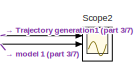
[diagram: root canvas - part 1/7, top right region]
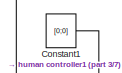
[diagram: root canvas - part 2/7, top right region]
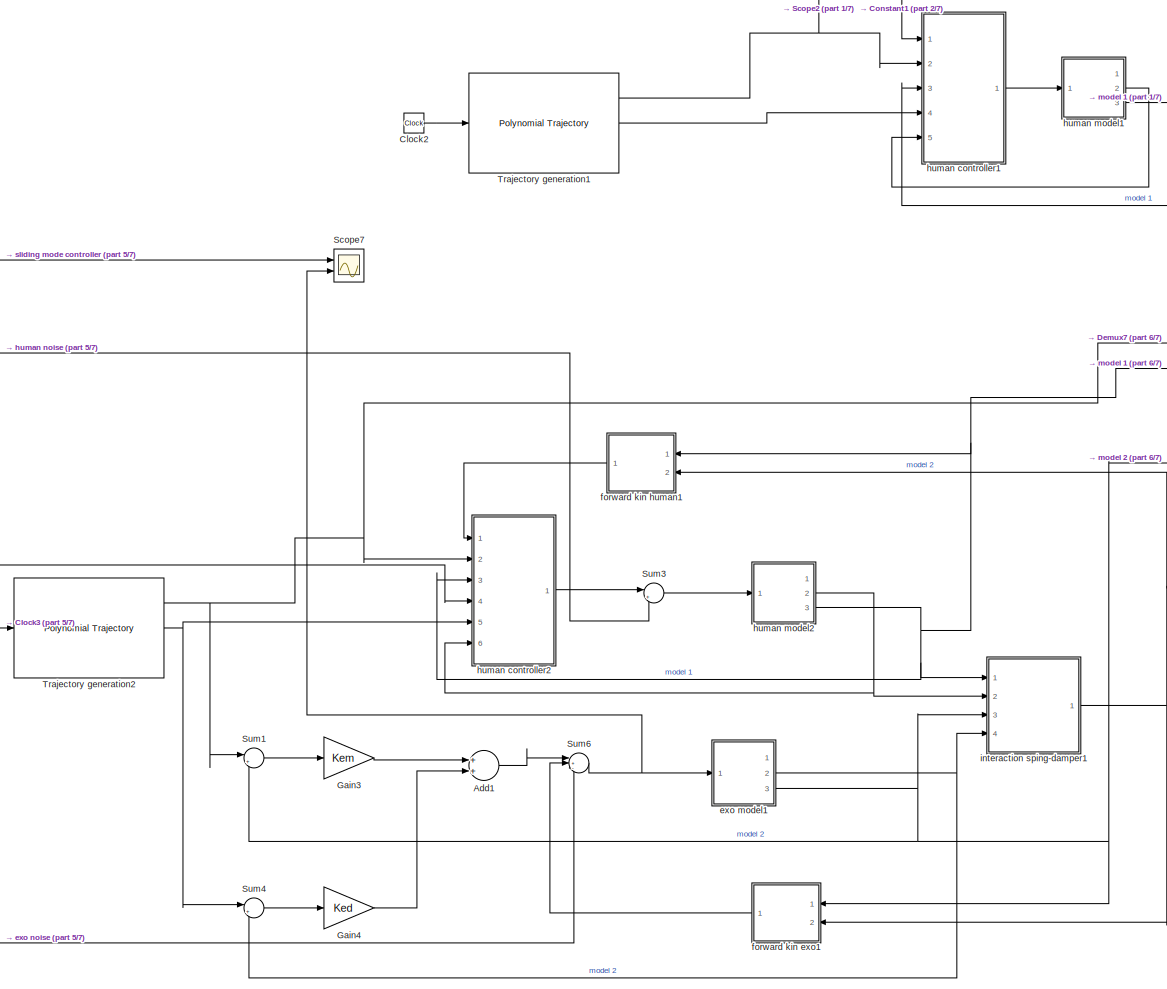
[diagram: root canvas - part 3/7, right side, full height]
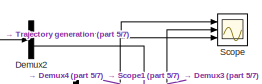
[diagram: root canvas - part 4/7, top center region]
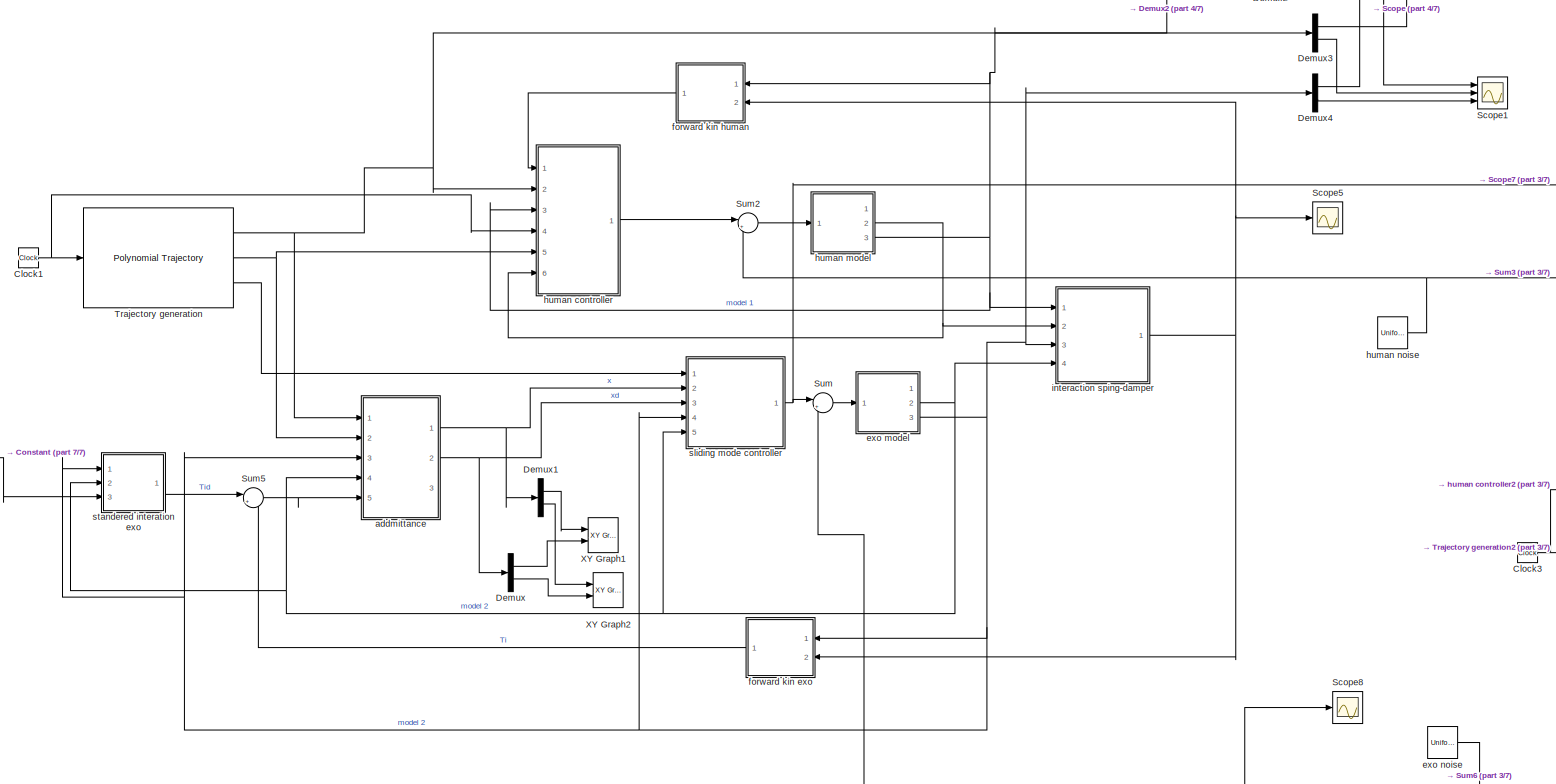
[diagram: root canvas - part 5/7, middle left region]
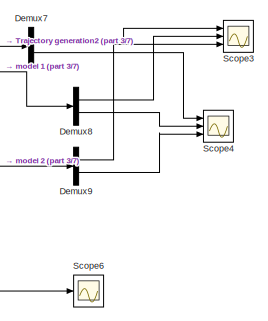
[diagram: root canvas - part 6/7, middle right region]
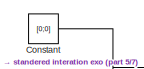
[diagram: root canvas - part 7/7, middle left region]
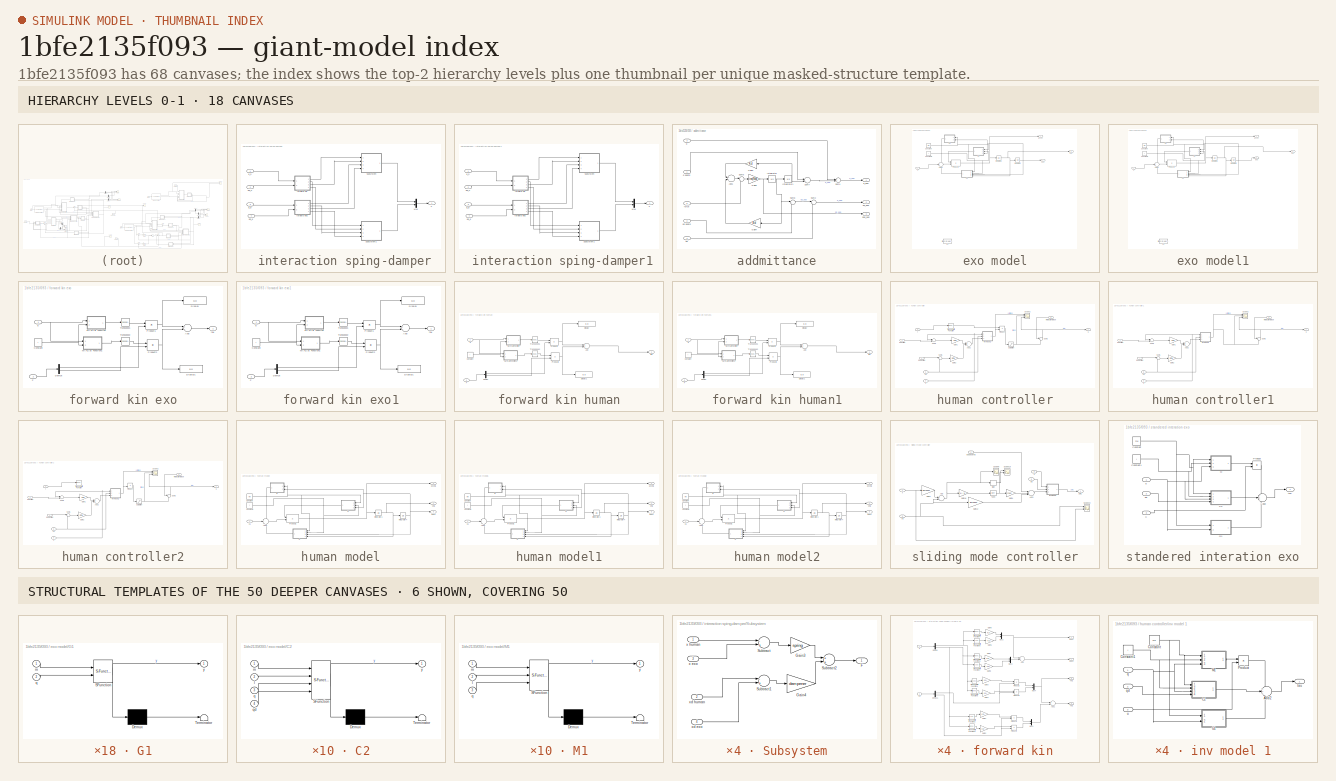
[diagram: thumbnail index - top-2 hierarchy levels (18 canvases) + 6 structural-template representatives of the remaining 50 canvases]
MODEL slx_1bfe2135f093
KIND model
CONFIG AbsTol = auto
CONFIG EnableMultiTasking = off
CONFIG FixedStep = auto
CONFIG MaxStep = auto
CONFIG MinStep = auto
CONFIG RelTol = 1e-3
CONFIG SampleTimeConstraint = Unconstrained
CONFIG Solver = VariableStepAuto
CONFIG SolverName = VariableStepAuto
CONFIG StartTime = 0.0
CONFIG StopTime = 10.0
BLOCK [SubSystem]  interaction sping-damper
  Ports = [4, 1]
  RequestExecContextInheritance = off
BLOCK [Outport]  interaction sping-damper/F
  IconDisplay = Port number
BLOCK [Mux]  interaction sping-damper/Mux
  DisplayOption = bar
  Inputs = 2
  Ports = [2, 1]
BLOCK [SubSystem]  interaction sping-damper/Subsystem
  Ports = [4, 1]
  RequestExecContextInheritance = off
BLOCK [Outport]  interaction sping-damper/Subsystem/F
  IconDisplay = Port number
BLOCK [Gain]  interaction sping-damper/Subsystem/Gain3
  Gain = spring
  Multiplication = Matrix(K*u)
  OutDataTypeStr = Inherit: Inherit via internal rule
  ParamDataTypeStr = Inherit: Inherit via internal rule
  SaturateOnIntegerOverflow = off
BLOCK [Gain]  interaction sping-damper/Subsystem/Gain4
  Gain = dampener
  Multiplication = Matrix(K*u)
  OutDataTypeStr = Inherit: Inherit via internal rule
  ParamDataTypeStr = Inherit: Inherit via internal rule
  SaturateOnIntegerOverflow = off
BLOCK [Sum]  interaction sping-damper/Subsystem/Subtract
  InputSameDT = off
  Inputs = -+
  OutDataTypeStr = Inherit: Inherit via internal rule
  Ports = [2, 1]
  SaturateOnIntegerOverflow = off
BLOCK [Sum]  interaction sping-damper/Subsystem/Subtract1
  InputSameDT = off
  Inputs = -+
  OutDataTypeStr = Inherit: Inherit via internal rule
  Ports = [2, 1]
  SaturateOnIntegerOverflow = off
BLOCK [Sum]  interaction sping-damper/Subsystem/Subtract2
  InputSameDT = off
  OutDataTypeStr = Inherit: Inherit via internal rule
  Ports = [2, 1]
  SaturateOnIntegerOverflow = off
BLOCK [Inport]  interaction sping-damper/Subsystem/x exo
  IconDisplay = Port number
  Port = 3
BLOCK [Inport]  interaction sping-damper/Subsystem/x human
  IconDisplay = Port number
BLOCK [Inport]  interaction sping-damper/Subsystem/xd exo
  IconDisplay = Port number
  Port = 4
BLOCK [Inport]  interaction sping-damper/Subsystem/xd human 
  IconDisplay = Port number
  Port = 2
BLOCK [SubSystem]  interaction sping-damper/Subsystem1
  Ports = [4, 1]
  RequestExecContextInheritance = off
BLOCK [Outport]  interaction sping-damper/Subsystem1/F
  IconDisplay = Port number
BLOCK [Gain]  interaction sping-damper/Subsystem1/Gain3
  Gain = spring
  Multiplication = Matrix(K*u)
  OutDataTypeStr = Inherit: Inherit via internal rule
  ParamDataTypeStr = Inherit: Inherit via internal rule
  SaturateOnIntegerOverflow = off
BLOCK [Gain]  interaction sping-damper/Subsystem1/Gain4
  Gain = dampener
  Multiplication = Matrix(K*u)
  OutDataTypeStr = Inherit: Inherit via internal rule
  ParamDataTypeStr = Inherit: Inherit via internal rule
  SaturateOnIntegerOverflow = off
BLOCK [Sum]  interaction sping-damper/Subsystem1/Subtract
  InputSameDT = off
  Inputs = -+
  OutDataTypeStr = Inherit: Inherit via internal rule
  Ports = [2, 1]
  SaturateOnIntegerOverflow = off
BLOCK [Sum]  interaction sping-damper/Subsystem1/Subtract1
  InputSameDT = off
  Inputs = -+
  OutDataTypeStr = Inherit: Inherit via internal rule
  Ports = [2, 1]
  SaturateOnIntegerOverflow = off
BLOCK [Sum]  interaction sping-damper/Subsystem1/Subtract2
  InputSameDT = off
  OutDataTypeStr = Inherit: Inherit via internal rule
  Ports = [2, 1]
  SaturateOnIntegerOverflow = off
BLOCK [Inport]  interaction sping-damper/Subsystem1/x exo
  IconDisplay = Port number
  Port = 3
BLOCK [Inport]  interaction sping-damper/Subsystem1/x human
  IconDisplay = Port number
BLOCK [Inport]  interaction sping-damper/Subsystem1/xd exo
  IconDisplay = Port number
  Port = 4
BLOCK [Inport]  interaction sping-damper/Subsystem1/xd human 
  IconDisplay = Port number
  Port = 2
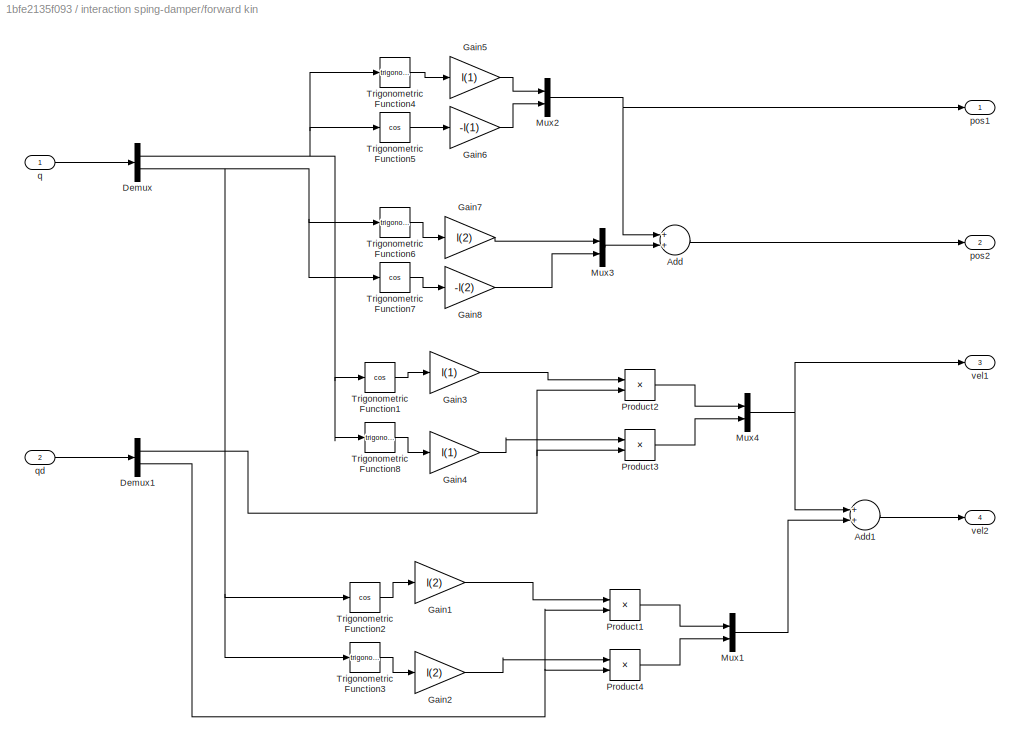
BLOCK [SubSystem]  interaction sping-damper/forward kin
  Ports = [2, 4]
  RequestExecContextInheritance = off
BLOCK [Sum]  interaction sping-damper/forward kin/Add
  InputSameDT = off
  OutDataTypeStr = Inherit: Inherit via internal rule
  Ports = [2, 1]
  SaturateOnIntegerOverflow = off
BLOCK [Sum]  interaction sping-damper/forward kin/Add1
  InputSameDT = off
  OutDataTypeStr = Inherit: Inherit via internal rule
  Ports = [2, 1]
  SaturateOnIntegerOverflow = off
BLOCK [Demux]  interaction sping-damper/forward kin/Demux
  DisplayOption = bar
  Outputs = 2
  Ports = [1, 2]
BLOCK [Demux]  interaction sping-damper/forward kin/Demux1
  DisplayOption = bar
  Outputs = 2
  Ports = [1, 2]
BLOCK [Gain]  interaction sping-damper/forward kin/Gain1
  Gain = l(2)
  OutDataTypeStr = Inherit: Inherit via internal rule
  ParamDataTypeStr = Inherit: Inherit via internal rule
  SaturateOnIntegerOverflow = off
BLOCK [Gain]  interaction sping-damper/forward kin/Gain2
  Gain = l(2)
  OutDataTypeStr = Inherit: Inherit via internal rule
  ParamDataTypeStr = Inherit: Inherit via internal rule
  SaturateOnIntegerOverflow = off
BLOCK [Gain]  interaction sping-damper/forward kin/Gain3
  Gain = l(1)
  OutDataTypeStr = Inherit: Inherit via internal rule
  ParamDataTypeStr = Inherit: Inherit via internal rule
  SaturateOnIntegerOverflow = off
BLOCK [Gain]  interaction sping-damper/forward kin/Gain4
  Gain = l(1)
  OutDataTypeStr = Inherit: Inherit via internal rule
  ParamDataTypeStr = Inherit: Inherit via internal rule
  SaturateOnIntegerOverflow = off
BLOCK [Gain]  interaction sping-damper/forward kin/Gain5
  Gain = l(1)
  OutDataTypeStr = Inherit: Inherit via internal rule
  ParamDataTypeStr = Inherit: Inherit via internal rule
  SaturateOnIntegerOverflow = off
BLOCK [Gain]  interaction sping-damper/forward kin/Gain6
  Gain = -l(1)
  OutDataTypeStr = Inherit: Inherit via internal rule
  ParamDataTypeStr = Inherit: Inherit via internal rule
  SaturateOnIntegerOverflow = off
BLOCK [Gain]  interaction sping-damper/forward kin/Gain7
  Gain = l(2)
  OutDataTypeStr = Inherit: Inherit via internal rule
  ParamDataTypeStr = Inherit: Inherit via internal rule
  SaturateOnIntegerOverflow = off
BLOCK [Gain]  interaction sping-damper/forward kin/Gain8
  Gain = -l(2)
  OutDataTypeStr = Inherit: Inherit via internal rule
  ParamDataTypeStr = Inherit: Inherit via internal rule
  SaturateOnIntegerOverflow = off
BLOCK [Mux]  interaction sping-damper/forward kin/Mux1
  DisplayOption = bar
  Inputs = 2
  Ports = [2, 1]
BLOCK [Mux]  interaction sping-damper/forward kin/Mux2
  DisplayOption = bar
  Inputs = 2
  Ports = [2, 1]
BLOCK [Mux]  interaction sping-damper/forward kin/Mux3
  DisplayOption = bar
  Inputs = 2
  Ports = [2, 1]
BLOCK [Mux]  interaction sping-damper/forward kin/Mux4
  DisplayOption = bar
  Inputs = 2
  Ports = [2, 1]
BLOCK [Product]  interaction sping-damper/forward kin/Product1
  InputSameDT = off
  OutDataTypeStr = Inherit: Inherit via internal rule
  Ports = [2, 1]
  RndMeth = Floor
  SaturateOnIntegerOverflow = off
BLOCK [Product]  interaction sping-damper/forward kin/Product2
  InputSameDT = off
  OutDataTypeStr = Inherit: Inherit via internal rule
  Ports = [2, 1]
  RndMeth = Floor
  SaturateOnIntegerOverflow = off
BLOCK [Product]  interaction sping-damper/forward kin/Product3
  InputSameDT = off
  OutDataTypeStr = Inherit: Inherit via internal rule
  Ports = [2, 1]
  RndMeth = Floor
  SaturateOnIntegerOverflow = off
BLOCK [Product]  interaction sping-damper/forward kin/Product4
  InputSameDT = off
  OutDataTypeStr = Inherit: Inherit via internal rule
  Ports = [2, 1]
  RndMeth = Floor
  SaturateOnIntegerOverflow = off
BLOCK [Trigonometry]  interaction sping-damper/forward kin/Trigonometric Function1
  Operator = cos
  Ports = [1, 1]
BLOCK [Trigonometry]  interaction sping-damper/forward kin/Trigonometric Function2
  Operator = cos
  Ports = [1, 1]
BLOCK [Trigonometry]  interaction sping-damper/forward kin/Trigonometric Function3
  Ports = [1, 1]
BLOCK [Trigonometry]  interaction sping-damper/forward kin/Trigonometric Function4
  Ports = [1, 1]
BLOCK [Trigonometry]  interaction sping-damper/forward kin/Trigonometric Function5
  Operator = cos
  Ports = [1, 1]
BLOCK [Trigonometry]  interaction sping-damper/forward kin/Trigonometric Function6
  Ports = [1, 1]
BLOCK [Trigonometry]  interaction sping-damper/forward kin/Trigonometric Function7
  Operator = cos
  Ports = [1, 1]
BLOCK [Trigonometry]  interaction sping-damper/forward kin/Trigonometric Function8
  Ports = [1, 1]
BLOCK [Outport]  interaction sping-damper/forward kin/pos1
  IconDisplay = Port number
BLOCK [Outport]  interaction sping-damper/forward kin/pos2
  IconDisplay = Port number
  Port = 2
BLOCK [Inport]  interaction sping-damper/forward kin/q 
  IconDisplay = Port number
BLOCK [Inport]  interaction sping-damper/forward kin/qd
  IconDisplay = Port number
  Port = 2
BLOCK [Outport]  interaction sping-damper/forward kin/vel1
  IconDisplay = Port number
  Port = 3
BLOCK [Outport]  interaction sping-damper/forward kin/vel2
  IconDisplay = Port number
  Port = 4
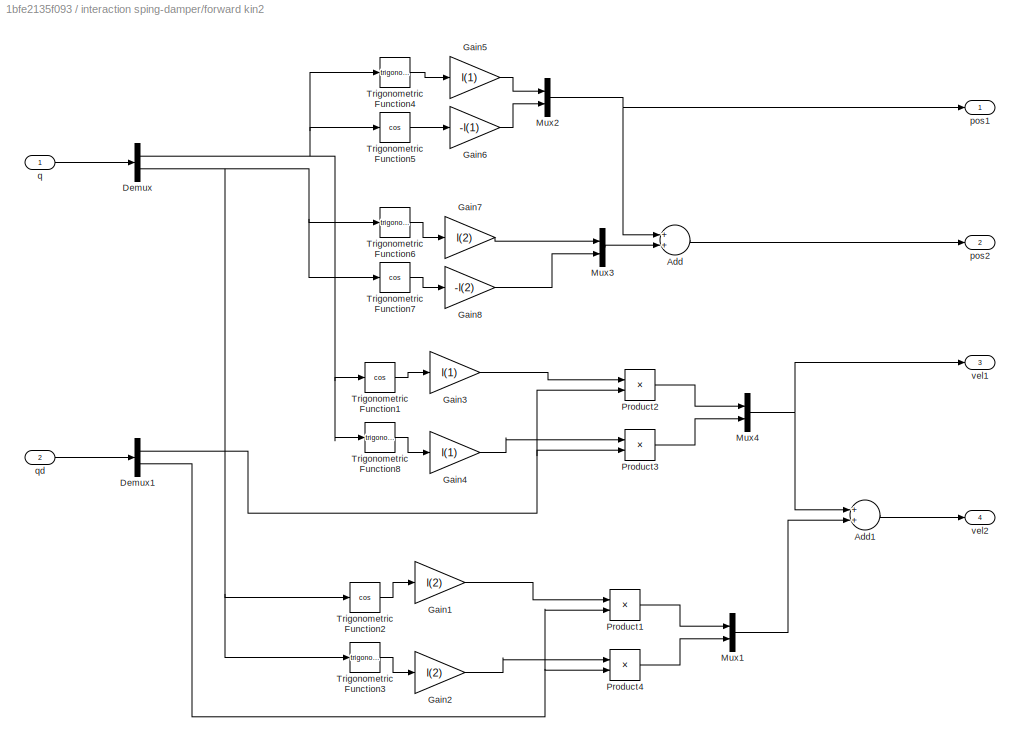
BLOCK [SubSystem]  interaction sping-damper/forward kin2
  Ports = [2, 4]
  RequestExecContextInheritance = off
BLOCK [Sum]  interaction sping-damper/forward kin2/Add
  InputSameDT = off
  OutDataTypeStr = Inherit: Inherit via internal rule
  Ports = [2, 1]
  SaturateOnIntegerOverflow = off
BLOCK [Sum]  interaction sping-damper/forward kin2/Add1
  InputSameDT = off
  OutDataTypeStr = Inherit: Inherit via internal rule
  Ports = [2, 1]
  SaturateOnIntegerOverflow = off
BLOCK [Demux]  interaction sping-damper/forward kin2/Demux
  DisplayOption = bar
  Outputs = 2
  Ports = [1, 2]
BLOCK [Demux]  interaction sping-damper/forward kin2/Demux1
  DisplayOption = bar
  Outputs = 2
  Ports = [1, 2]
BLOCK [Gain]  interaction sping-damper/forward kin2/Gain1
  Gain = l(2)
  OutDataTypeStr = Inherit: Inherit via internal rule
  ParamDataTypeStr = Inherit: Inherit via internal rule
  SaturateOnIntegerOverflow = off
BLOCK [Gain]  interaction sping-damper/forward kin2/Gain2
  Gain = l(2)
  OutDataTypeStr = Inherit: Inherit via internal rule
  ParamDataTypeStr = Inherit: Inherit via internal rule
  SaturateOnIntegerOverflow = off
BLOCK [Gain]  interaction sping-damper/forward kin2/Gain3
  Gain = l(1)
  OutDataTypeStr = Inherit: Inherit via internal rule
  ParamDataTypeStr = Inherit: Inherit via internal rule
  SaturateOnIntegerOverflow = off
BLOCK [Gain]  interaction sping-damper/forward kin2/Gain4
  Gain = l(1)
  OutDataTypeStr = Inherit: Inherit via internal rule
  ParamDataTypeStr = Inherit: Inherit via internal rule
  SaturateOnIntegerOverflow = off
BLOCK [Gain]  interaction sping-damper/forward kin2/Gain5
  Gain = l(1)
  OutDataTypeStr = Inherit: Inherit via internal rule
  ParamDataTypeStr = Inherit: Inherit via internal rule
  SaturateOnIntegerOverflow = off
BLOCK [Gain]  interaction sping-damper/forward kin2/Gain6
  Gain = -l(1)
  OutDataTypeStr = Inherit: Inherit via internal rule
  ParamDataTypeStr = Inherit: Inherit via internal rule
  SaturateOnIntegerOverflow = off
BLOCK [Gain]  interaction sping-damper/forward kin2/Gain7
  Gain = l(2)
  OutDataTypeStr = Inherit: Inherit via internal rule
  ParamDataTypeStr = Inherit: Inherit via internal rule
  SaturateOnIntegerOverflow = off
BLOCK [Gain]  interaction sping-damper/forward kin2/Gain8
  Gain = -l(2)
  OutDataTypeStr = Inherit: Inherit via internal rule
  ParamDataTypeStr = Inherit: Inherit via internal rule
  SaturateOnIntegerOverflow = off
BLOCK [Mux]  interaction sping-damper/forward kin2/Mux1
  DisplayOption = bar
  Inputs = 2
  Ports = [2, 1]
BLOCK [Mux]  interaction sping-damper/forward kin2/Mux2
  DisplayOption = bar
  Inputs = 2
  Ports = [2, 1]
BLOCK [Mux]  interaction sping-damper/forward kin2/Mux3
  DisplayOption = bar
  Inputs = 2
  Ports = [2, 1]
BLOCK [Mux]  interaction sping-damper/forward kin2/Mux4
  DisplayOption = bar
  Inputs = 2
  Ports = [2, 1]
BLOCK [Product]  interaction sping-damper/forward kin2/Product1
  InputSameDT = off
  OutDataTypeStr = Inherit: Inherit via internal rule
  Ports = [2, 1]
  RndMeth = Floor
  SaturateOnIntegerOverflow = off
BLOCK [Product]  interaction sping-damper/forward kin2/Product2
  InputSameDT = off
  OutDataTypeStr = Inherit: Inherit via internal rule
  Ports = [2, 1]
  RndMeth = Floor
  SaturateOnIntegerOverflow = off
BLOCK [Product]  interaction sping-damper/forward kin2/Product3
  InputSameDT = off
  OutDataTypeStr = Inherit: Inherit via internal rule
  Ports = [2, 1]
  RndMeth = Floor
  SaturateOnIntegerOverflow = off
BLOCK [Product]  interaction sping-damper/forward kin2/Product4
  InputSameDT = off
  OutDataTypeStr = Inherit: Inherit via internal rule
  Ports = [2, 1]
  RndMeth = Floor
  SaturateOnIntegerOverflow = off
BLOCK [Trigonometry]  interaction sping-damper/forward kin2/Trigonometric Function1
  Operator = cos
  Ports = [1, 1]
BLOCK [Trigonometry]  interaction sping-damper/forward kin2/Trigonometric Function2
  Operator = cos
  Ports = [1, 1]
BLOCK [Trigonometry]  interaction sping-damper/forward kin2/Trigonometric Function3
  Ports = [1, 1]
BLOCK [Trigonometry]  interaction sping-damper/forward kin2/Trigonometric Function4
  Ports = [1, 1]
BLOCK [Trigonometry]  interaction sping-damper/forward kin2/Trigonometric Function5
  Operator = cos
  Ports = [1, 1]
BLOCK [Trigonometry]  interaction sping-damper/forward kin2/Trigonometric Function6
  Ports = [1, 1]
BLOCK [Trigonometry]  interaction sping-damper/forward kin2/Trigonometric Function7
  Operator = cos
  Ports = [1, 1]
BLOCK [Trigonometry]  interaction sping-damper/forward kin2/Trigonometric Function8
  Ports = [1, 1]
BLOCK [Outport]  interaction sping-damper/forward kin2/pos1
  IconDisplay = Port number
BLOCK [Outport]  interaction sping-damper/forward kin2/pos2
  IconDisplay = Port number
  Port = 2
BLOCK [Inport]  interaction sping-damper/forward kin2/q 
  IconDisplay = Port number
BLOCK [Inport]  interaction sping-damper/forward kin2/qd
  IconDisplay = Port number
  Port = 2
BLOCK [Outport]  interaction sping-damper/forward kin2/vel1
  IconDisplay = Port number
  Port = 3
BLOCK [Outport]  interaction sping-damper/forward kin2/vel2
  IconDisplay = Port number
  Port = 4
BLOCK [Inport]  interaction sping-damper/q_e
  IconDisplay = Port number
  Port = 3
BLOCK [Inport]  interaction sping-damper/q_h
  IconDisplay = Port number
BLOCK [Inport]  interaction sping-damper/qd_e 
  IconDisplay = Port number
  Port = 4
BLOCK [Inport]  interaction sping-damper/qd_h
  IconDisplay = Port number
  Port = 2
BLOCK [SubSystem]  interaction sping-damper1
  Ports = [4, 1]
  RequestExecContextInheritance = off
BLOCK [Outport]  interaction sping-damper1/F
  IconDisplay = Port number
BLOCK [Mux]  interaction sping-damper1/Mux
  DisplayOption = bar
  Inputs = 2
  Ports = [2, 1]
BLOCK [SubSystem]  interaction sping-damper1/Subsystem
  Ports = [4, 1]
  RequestExecContextInheritance = off
BLOCK [Outport]  interaction sping-damper1/Subsystem/F
  IconDisplay = Port number
BLOCK [Gain]  interaction sping-damper1/Subsystem/Gain3
  Gain = spring
  Multiplication = Matrix(K*u)
  OutDataTypeStr = Inherit: Inherit via internal rule
  ParamDataTypeStr = Inherit: Inherit via internal rule
  SaturateOnIntegerOverflow = off
BLOCK [Gain]  interaction sping-damper1/Subsystem/Gain4
  Gain = dampener
  Multiplication = Matrix(K*u)
  OutDataTypeStr = Inherit: Inherit via internal rule
  ParamDataTypeStr = Inherit: Inherit via internal rule
  SaturateOnIntegerOverflow = off
BLOCK [Sum]  interaction sping-damper1/Subsystem/Subtract
  InputSameDT = off
  Inputs = -+
  OutDataTypeStr = Inherit: Inherit via internal rule
  Ports = [2, 1]
  SaturateOnIntegerOverflow = off
BLOCK [Sum]  interaction sping-damper1/Subsystem/Subtract1
  InputSameDT = off
  Inputs = -+
  OutDataTypeStr = Inherit: Inherit via internal rule
  Ports = [2, 1]
  SaturateOnIntegerOverflow = off
BLOCK [Sum]  interaction sping-damper1/Subsystem/Subtract2
  InputSameDT = off
  OutDataTypeStr = Inherit: Inherit via internal rule
  Ports = [2, 1]
  SaturateOnIntegerOverflow = off
BLOCK [Inport]  interaction sping-damper1/Subsystem/x exo
  IconDisplay = Port number
  Port = 3
BLOCK [Inport]  interaction sping-damper1/Subsystem/x human
  IconDisplay = Port number
BLOCK [Inport]  interaction sping-damper1/Subsystem/xd exo
  IconDisplay = Port number
  Port = 4
BLOCK [Inport]  interaction sping-damper1/Subsystem/xd human 
  IconDisplay = Port number
  Port = 2
BLOCK [SubSystem]  interaction sping-damper1/Subsystem1
  Ports = [4, 1]
  RequestExecContextInheritance = off
BLOCK [Outport]  interaction sping-damper1/Subsystem1/F
  IconDisplay = Port number
BLOCK [Gain]  interaction sping-damper1/Subsystem1/Gain3
  Gain = spring
  Multiplication = Matrix(K*u)
  OutDataTypeStr = Inherit: Inherit via internal rule
  ParamDataTypeStr = Inherit: Inherit via internal rule
  SaturateOnIntegerOverflow = off
BLOCK [Gain]  interaction sping-damper1/Subsystem1/Gain4
  Gain = dampener
  Multiplication = Matrix(K*u)
  OutDataTypeStr = Inherit: Inherit via internal rule
  ParamDataTypeStr = Inherit: Inherit via internal rule
  SaturateOnIntegerOverflow = off
BLOCK [Sum]  interaction sping-damper1/Subsystem1/Subtract
  InputSameDT = off
  Inputs = -+
  OutDataTypeStr = Inherit: Inherit via internal rule
  Ports = [2, 1]
  SaturateOnIntegerOverflow = off
BLOCK [Sum]  interaction sping-damper1/Subsystem1/Subtract1
  InputSameDT = off
  Inputs = -+
  OutDataTypeStr = Inherit: Inherit via internal rule
  Ports = [2, 1]
  SaturateOnIntegerOverflow = off
BLOCK [Sum]  interaction sping-damper1/Subsystem1/Subtract2
  InputSameDT = off
  OutDataTypeStr = Inherit: Inherit via internal rule
  Ports = [2, 1]
  SaturateOnIntegerOverflow = off
BLOCK [Inport]  interaction sping-damper1/Subsystem1/x exo
  IconDisplay = Port number
  Port = 3
BLOCK [Inport]  interaction sping-damper1/Subsystem1/x human
  IconDisplay = Port number
BLOCK [Inport]  interaction sping-damper1/Subsystem1/xd exo
  IconDisplay = Port number
  Port = 4
BLOCK [Inport]  interaction sping-damper1/Subsystem1/xd human 
  IconDisplay = Port number
  Port = 2
BLOCK [SubSystem]  interaction sping-damper1/forward kin
  Ports = [2, 4]
  RequestExecContextInheritance = off
BLOCK [Sum]  interaction sping-damper1/forward kin/Add
  InputSameDT = off
  OutDataTypeStr = Inherit: Inherit via internal rule
  Ports = [2, 1]
  SaturateOnIntegerOverflow = off
BLOCK [Sum]  interaction sping-damper1/forward kin/Add1
  InputSameDT = off
  OutDataTypeStr = Inherit: Inherit via internal rule
  Ports = [2, 1]
  SaturateOnIntegerOverflow = off
BLOCK [Demux]  interaction sping-damper1/forward kin/Demux
  DisplayOption = bar
  Outputs = 2
  Ports = [1, 2]
BLOCK [Demux]  interaction sping-damper1/forward kin/Demux1
  DisplayOption = bar
  Outputs = 2
  Ports = [1, 2]
BLOCK [Gain]  interaction sping-damper1/forward kin/Gain1
  Gain = l(2)
  OutDataTypeStr = Inherit: Inherit via internal rule
  ParamDataTypeStr = Inherit: Inherit via internal rule
  SaturateOnIntegerOverflow = off
BLOCK [Gain]  interaction sping-damper1/forward kin/Gain2
  Gain = l(2)
  OutDataTypeStr = Inherit: Inherit via internal rule
  ParamDataTypeStr = Inherit: Inherit via internal rule
  SaturateOnIntegerOverflow = off
BLOCK [Gain]  interaction sping-damper1/forward kin/Gain3
  Gain = l(1)
  OutDataTypeStr = Inherit: Inherit via internal rule
  ParamDataTypeStr = Inherit: Inherit via internal rule
  SaturateOnIntegerOverflow = off
BLOCK [Gain]  interaction sping-damper1/forward kin/Gain4
  Gain = l(1)
  OutDataTypeStr = Inherit: Inherit via internal rule
  ParamDataTypeStr = Inherit: Inherit via internal rule
  SaturateOnIntegerOverflow = off
BLOCK [Gain]  interaction sping-damper1/forward kin/Gain5
  Gain = l(1)
  OutDataTypeStr = Inherit: Inherit via internal rule
  ParamDataTypeStr = Inherit: Inherit via internal rule
  SaturateOnIntegerOverflow = off
BLOCK [Gain]  interaction sping-damper1/forward kin/Gain6
  Gain = -l(1)
  OutDataTypeStr = Inherit: Inherit via internal rule
  ParamDataTypeStr = Inherit: Inherit via internal rule
  SaturateOnIntegerOverflow = off
BLOCK [Gain]  interaction sping-damper1/forward kin/Gain7
  Gain = l(2)
  OutDataTypeStr = Inherit: Inherit via internal rule
  ParamDataTypeStr = Inherit: Inherit via internal rule
  SaturateOnIntegerOverflow = off
BLOCK [Gain]  interaction sping-damper1/forward kin/Gain8
  Gain = -l(2)
  OutDataTypeStr = Inherit: Inherit via internal rule
  ParamDataTypeStr = Inherit: Inherit via internal rule
  SaturateOnIntegerOverflow = off
BLOCK [Mux]  interaction sping-damper1/forward kin/Mux1
  DisplayOption = bar
  Inputs = 2
  Ports = [2, 1]
BLOCK [Mux]  interaction sping-damper1/forward kin/Mux2
  DisplayOption = bar
  Inputs = 2
  Ports = [2, 1]
BLOCK [Mux]  interaction sping-damper1/forward kin/Mux3
  DisplayOption = bar
  Inputs = 2
  Ports = [2, 1]
BLOCK [Mux]  interaction sping-damper1/forward kin/Mux4
  DisplayOption = bar
  Inputs = 2
  Ports = [2, 1]
BLOCK [Product]  interaction sping-damper1/forward kin/Product1
  InputSameDT = off
  OutDataTypeStr = Inherit: Inherit via internal rule
  Ports = [2, 1]
  RndMeth = Floor
  SaturateOnIntegerOverflow = off
BLOCK [Product]  interaction sping-damper1/forward kin/Product2
  InputSameDT = off
  OutDataTypeStr = Inherit: Inherit via internal rule
  Ports = [2, 1]
  RndMeth = Floor
  SaturateOnIntegerOverflow = off
BLOCK [Product]  interaction sping-damper1/forward kin/Product3
  InputSameDT = off
  OutDataTypeStr = Inherit: Inherit via internal rule
  Ports = [2, 1]
  RndMeth = Floor
  SaturateOnIntegerOverflow = off
BLOCK [Product]  interaction sping-damper1/forward kin/Product4
  InputSameDT = off
  OutDataTypeStr = Inherit: Inherit via internal rule
  Ports = [2, 1]
  RndMeth = Floor
  SaturateOnIntegerOverflow = off
BLOCK [Trigonometry]  interaction sping-damper1/forward kin/Trigonometric Function1
  Operator = cos
  Ports = [1, 1]
BLOCK [Trigonometry]  interaction sping-damper1/forward kin/Trigonometric Function2
  Operator = cos
  Ports = [1, 1]
BLOCK [Trigonometry]  interaction sping-damper1/forward kin/Trigonometric Function3
  Ports = [1, 1]
BLOCK [Trigonometry]  interaction sping-damper1/forward kin/Trigonometric Function4
  Ports = [1, 1]
BLOCK [Trigonometry]  interaction sping-damper1/forward kin/Trigonometric Function5
  Operator = cos
  Ports = [1, 1]
BLOCK [Trigonometry]  interaction sping-damper1/forward kin/Trigonometric Function6
  Ports = [1, 1]
BLOCK [Trigonometry]  interaction sping-damper1/forward kin/Trigonometric Function7
  Operator = cos
  Ports = [1, 1]
BLOCK [Trigonometry]  interaction sping-damper1/forward kin/Trigonometric Function8
  Ports = [1, 1]
BLOCK [Outport]  interaction sping-damper1/forward kin/pos1
  IconDisplay = Port number
BLOCK [Outport]  interaction sping-damper1/forward kin/pos2
  IconDisplay = Port number
  Port = 2
BLOCK [Inport]  interaction sping-damper1/forward kin/q 
  IconDisplay = Port number
BLOCK [Inport]  interaction sping-damper1/forward kin/qd
  IconDisplay = Port number
  Port = 2
BLOCK [Outport]  interaction sping-damper1/forward kin/vel1
  IconDisplay = Port number
  Port = 3
BLOCK [Outport]  interaction sping-damper1/forward kin/vel2
  IconDisplay = Port number
  Port = 4
BLOCK [SubSystem]  interaction sping-damper1/forward kin2
  Ports = [2, 4]
  RequestExecContextInheritance = off
BLOCK [Sum]  interaction sping-damper1/forward kin2/Add
  InputSameDT = off
  OutDataTypeStr = Inherit: Inherit via internal rule
  Ports = [2, 1]
  SaturateOnIntegerOverflow = off
BLOCK [Sum]  interaction sping-damper1/forward kin2/Add1
  InputSameDT = off
  OutDataTypeStr = Inherit: Inherit via internal rule
  Ports = [2, 1]
  SaturateOnIntegerOverflow = off
BLOCK [Demux]  interaction sping-damper1/forward kin2/Demux
  DisplayOption = bar
  Outputs = 2
  Ports = [1, 2]
BLOCK [Demux]  interaction sping-damper1/forward kin2/Demux1
  DisplayOption = bar
  Outputs = 2
  Ports = [1, 2]
BLOCK [Gain]  interaction sping-damper1/forward kin2/Gain1
  Gain = l(2)
  OutDataTypeStr = Inherit: Inherit via internal rule
  ParamDataTypeStr = Inherit: Inherit via internal rule
  SaturateOnIntegerOverflow = off
BLOCK [Gain]  interaction sping-damper1/forward kin2/Gain2
  Gain = l(2)
  OutDataTypeStr = Inherit: Inherit via internal rule
  ParamDataTypeStr = Inherit: Inherit via internal rule
  SaturateOnIntegerOverflow = off
BLOCK [Gain]  interaction sping-damper1/forward kin2/Gain3
  Gain = l(1)
  OutDataTypeStr = Inherit: Inherit via internal rule
  ParamDataTypeStr = Inherit: Inherit via internal rule
  SaturateOnIntegerOverflow = off
BLOCK [Gain]  interaction sping-damper1/forward kin2/Gain4
  Gain = l(1)
  OutDataTypeStr = Inherit: Inherit via internal rule
  ParamDataTypeStr = Inherit: Inherit via internal rule
  SaturateOnIntegerOverflow = off
BLOCK [Gain]  interaction sping-damper1/forward kin2/Gain5
  Gain = l(1)
  OutDataTypeStr = Inherit: Inherit via internal rule
  ParamDataTypeStr = Inherit: Inherit via internal rule
  SaturateOnIntegerOverflow = off
BLOCK [Gain]  interaction sping-damper1/forward kin2/Gain6
  Gain = -l(1)
  OutDataTypeStr = Inherit: Inherit via internal rule
  ParamDataTypeStr = Inherit: Inherit via internal rule
  SaturateOnIntegerOverflow = off
BLOCK [Gain]  interaction sping-damper1/forward kin2/Gain7
  Gain = l(2)
  OutDataTypeStr = Inherit: Inherit via internal rule
  ParamDataTypeStr = Inherit: Inherit via internal rule
  SaturateOnIntegerOverflow = off
BLOCK [Gain]  interaction sping-damper1/forward kin2/Gain8
  Gain = -l(2)
  OutDataTypeStr = Inherit: Inherit via internal rule
  ParamDataTypeStr = Inherit: Inherit via internal rule
  SaturateOnIntegerOverflow = off
BLOCK [Mux]  interaction sping-damper1/forward kin2/Mux1
  DisplayOption = bar
  Inputs = 2
  Ports = [2, 1]
BLOCK [Mux]  interaction sping-damper1/forward kin2/Mux2
  DisplayOption = bar
  Inputs = 2
  Ports = [2, 1]
BLOCK [Mux]  interaction sping-damper1/forward kin2/Mux3
  DisplayOption = bar
  Inputs = 2
  Ports = [2, 1]
BLOCK [Mux]  interaction sping-damper1/forward kin2/Mux4
  DisplayOption = bar
  Inputs = 2
  Ports = [2, 1]
BLOCK [Product]  interaction sping-damper1/forward kin2/Product1
  InputSameDT = off
  OutDataTypeStr = Inherit: Inherit via internal rule
  Ports = [2, 1]
  RndMeth = Floor
  SaturateOnIntegerOverflow = off
BLOCK [Product]  interaction sping-damper1/forward kin2/Product2
  InputSameDT = off
  OutDataTypeStr = Inherit: Inherit via internal rule
  Ports = [2, 1]
  RndMeth = Floor
  SaturateOnIntegerOverflow = off
BLOCK [Product]  interaction sping-damper1/forward kin2/Product3
  InputSameDT = off
  OutDataTypeStr = Inherit: Inherit via internal rule
  Ports = [2, 1]
  RndMeth = Floor
  SaturateOnIntegerOverflow = off
BLOCK [Product]  interaction sping-damper1/forward kin2/Product4
  InputSameDT = off
  OutDataTypeStr = Inherit: Inherit via internal rule
  Ports = [2, 1]
  RndMeth = Floor
  SaturateOnIntegerOverflow = off
BLOCK [Trigonometry]  interaction sping-damper1/forward kin2/Trigonometric Function1
  Operator = cos
  Ports = [1, 1]
BLOCK [Trigonometry]  interaction sping-damper1/forward kin2/Trigonometric Function2
  Operator = cos
  Ports = [1, 1]
BLOCK [Trigonometry]  interaction sping-damper1/forward kin2/Trigonometric Function3
  Ports = [1, 1]
BLOCK [Trigonometry]  interaction sping-damper1/forward kin2/Trigonometric Function4
  Ports = [1, 1]
BLOCK [Trigonometry]  interaction sping-damper1/forward kin2/Trigonometric Function5
  Operator = cos
  Ports = [1, 1]
BLOCK [Trigonometry]  interaction sping-damper1/forward kin2/Trigonometric Function6
  Ports = [1, 1]
BLOCK [Trigonometry]  interaction sping-damper1/forward kin2/Trigonometric Function7
  Operator = cos
  Ports = [1, 1]
BLOCK [Trigonometry]  interaction sping-damper1/forward kin2/Trigonometric Function8
  Ports = [1, 1]
BLOCK [Outport]  interaction sping-damper1/forward kin2/pos1
  IconDisplay = Port number
BLOCK [Outport]  interaction sping-damper1/forward kin2/pos2
  IconDisplay = Port number
  Port = 2
BLOCK [Inport]  interaction sping-damper1/forward kin2/q 
  IconDisplay = Port number
BLOCK [Inport]  interaction sping-damper1/forward kin2/qd
  IconDisplay = Port number
  Port = 2
BLOCK [Outport]  interaction sping-damper1/forward kin2/vel1
  IconDisplay = Port number
  Port = 3
BLOCK [Outport]  interaction sping-damper1/forward kin2/vel2
  IconDisplay = Port number
  Port = 4
BLOCK [Inport]  interaction sping-damper1/q_e
  IconDisplay = Port number
  Port = 3
BLOCK [Inport]  interaction sping-damper1/q_h
  IconDisplay = Port number
BLOCK [Inport]  interaction sping-damper1/qd_e 
  IconDisplay = Port number
  Port = 4
BLOCK [Inport]  interaction sping-damper1/qd_h
  IconDisplay = Port number
  Port = 2
BLOCK [Sum] Add1
  InputSameDT = off
  OutDataTypeStr = Inherit: Inherit via internal rule
  Ports = [2, 1]
  SaturateOnIntegerOverflow = off
BLOCK [Clock] Clock1
BLOCK [Clock] Clock2
  Commented = on
BLOCK [Clock] Clock3
BLOCK [Constant] Constant
  Value = [0;0]
BLOCK [Constant] Constant1
  Commented = on
  Value = [0;0]
  VectorParams1D = off
BLOCK [Demux] Demux
  DisplayOption = bar
  Outputs = 2
  Ports = [1, 2]
BLOCK [Demux] Demux1
  DisplayOption = bar
  Outputs = 2
  Ports = [1, 2]
BLOCK [Demux] Demux2
  DisplayOption = bar
  Outputs = 2
  Ports = [1, 2]
BLOCK [Demux] Demux3
  DisplayOption = bar
  Outputs = 2
  Ports = [1, 2]
BLOCK [Demux] Demux4
  DisplayOption = bar
  Outputs = 2
  Ports = [1, 2]
BLOCK [Demux] Demux7
  DisplayOption = bar
  Outputs = 2
  Ports = [1, 2]
BLOCK [Demux] Demux8
  DisplayOption = bar
  Outputs = 2
  Ports = [1, 2]
BLOCK [Demux] Demux9
  DisplayOption = bar
  Outputs = 2
  Ports = [1, 2]
BLOCK [Gain] Gain3
  Gain = Kem
  Multiplication = Matrix(K*u)
  OutDataTypeStr = Inherit: Inherit via internal rule
  ParamDataTypeStr = Inherit: Inherit via internal rule
  SaturateOnIntegerOverflow = off
BLOCK [Gain] Gain4
  Gain = Ked
  Multiplication = Matrix(K*u)
  OutDataTypeStr = Inherit: Inherit via internal rule
  ParamDataTypeStr = Inherit: Inherit via internal rule
  SaturateOnIntegerOverflow = off
BLOCK [Scope] Scope
  Floating = off
  NumInputPorts = 3
  Ports = [3]
  ScopeSpecificationString = Simulink.scopes.TimeScopeBlockCfg('CurrentConfiguration', extmgr.ConfigurationSet(extmgr.Configuration('Core','General UI',true),extmgr.Configuration('Core','Source UI',true),extmgr.Configuration('Sources','WiredSimulink',true,'DataLoggingVariableName','ScopeData1'),extmgr.Configuration('Visuals','Time Domain',true,'SerializedDisplays',{struct('MinYLimReal','-3.5716','MaxYLimReal','0.7248','YLabel...<+1453ch>
BLOCK [Scope] Scope1
  Floating = off
  NumInputPorts = 3
  Ports = [3]
  ScopeSpecificationString = Simulink.scopes.TimeScopeBlockCfg('CurrentConfiguration', extmgr.ConfigurationSet(extmgr.Configuration('Core','General UI',true),extmgr.Configuration('Core','Source UI',true),extmgr.Configuration('Sources','WiredSimulink',true,'DataLoggingVariableName','ScopeData2'),extmgr.Configuration('Visuals','Time Domain',true,'SerializedDisplays',{struct('MinYLimReal','-1.83924','MaxYLimReal','0.44105','YLab...<+1462ch>
BLOCK [Scope] Scope2
  Commented = on
  Floating = off
  NumInputPorts = 3
  Ports = [3]
  ScopeSpecificationString = Simulink.scopes.TimeScopeBlockCfg('CurrentConfiguration', extmgr.ConfigurationSet(extmgr.Configuration('Core','General UI',true),extmgr.Configuration('Core','Source UI',true),extmgr.Configuration('Sources','WiredSimulink',true,'DataLoggingVariableName','ScopeData2'),extmgr.Configuration('Visuals','Time Domain',true,'SerializedDisplays',{struct('MinYLimReal','-3.76113','MaxYLimReal','0.4179','YLabe...<+1630ch>
BLOCK [Scope] Scope3
  Floating = off
  NumInputPorts = 3
  Ports = [3]
  ScopeSpecificationString = Simulink.scopes.TimeScopeBlockCfg('CurrentConfiguration', extmgr.ConfigurationSet(extmgr.Configuration('Core','General UI',true),extmgr.Configuration('Core','Source UI',true),extmgr.Configuration('Sources','WiredSimulink',true,'DataLoggingVariableName','ScopeData3'),extmgr.Configuration('Visuals','Time Domain',true,'SerializedDisplays',{struct('MinYLimReal','-3.5386','MaxYLimReal','0.41695','YLabe...<+1484ch>
BLOCK [Scope] Scope4
  Floating = off
  NumInputPorts = 3
  Ports = [3]
  ScopeSpecificationString = Simulink.scopes.TimeScopeBlockCfg('CurrentConfiguration', extmgr.ConfigurationSet(extmgr.Configuration('Core','General UI',true),extmgr.Configuration('Core','Source UI',true),extmgr.Configuration('Sources','WiredSimulink',true,'DataLoggingVariableName','ScopeData4'),extmgr.Configuration('Visuals','Time Domain',true,'SerializedDisplays',{struct('MinYLimReal','-1.83924','MaxYLimReal','0.44105','YLab...<+1459ch>
BLOCK [Scope] Scope5
  Floating = off
  NumInputPorts = 1
  Ports = [1]
  ScopeSpecificationString = Simulink.scopes.TimeScopeBlockCfg('CurrentConfiguration', extmgr.ConfigurationSet(extmgr.Configuration('Core','General UI',true),extmgr.Configuration('Core','Source UI',true),extmgr.Configuration('Sources','WiredSimulink',true,'DataLoggingVariableName','ScopeData1'),extmgr.Configuration('Visuals','Time Domain',true,'SerializedDisplays',{struct('MinYLimReal','-10.56553','MaxYLimReal','20.32207','YL...<+1422ch>
BLOCK [Scope] Scope6
  Floating = off
  NumInputPorts = 1
  Ports = [1]
  ScopeSpecificationString = Simulink.scopes.TimeScopeBlockCfg('CurrentConfiguration', extmgr.ConfigurationSet(extmgr.Configuration('Core','General UI',true),extmgr.Configuration('Core','Source UI',true),extmgr.Configuration('Sources','WiredSimulink',true,'DataLoggingVariableName','ScopeData5'),extmgr.Configuration('Visuals','Time Domain',true,'SerializedDisplays',{struct('MinYLimReal','-10.56553','MaxYLimReal','20.32207','YL...<+1422ch>
BLOCK [Scope] Scope7
  Floating = off
  NumInputPorts = 2
  Ports = [2]
  ScopeSpecificationString = Simulink.scopes.TimeScopeBlockCfg('CurrentConfiguration', extmgr.ConfigurationSet(extmgr.Configuration('Core','General UI',true),extmgr.Configuration('Core','Source UI',true),extmgr.Configuration('Sources','WiredSimulink',true,'DataLoggingVariableName','ScopeData1'),extmgr.Configuration('Visuals','Time Domain',true,'SerializedDisplays',{struct('MinYLimReal','-62.70626','MaxYLimReal','91.89201','YL...<+1553ch>
BLOCK [Scope] Scope8
  Floating = off
  NumInputPorts = 1
  Ports = [1]
  ScopeSpecificationString = Simulink.scopes.TimeScopeBlockCfg('CurrentConfiguration', extmgr.ConfigurationSet(extmgr.Configuration('Core','General UI',true),extmgr.Configuration('Core','Source UI',true),extmgr.Configuration('Sources','WiredSimulink',true,'DataLoggingVariableName','ScopeData7'),extmgr.Configuration('Visuals','Time Domain',true,'SerializedDisplays',{struct('MinYLimReal','-24.65087','MaxYLimReal','24.93711','YL...<+1401ch>
BLOCK [Sum] Sum
  IconShape = round
  InputSameDT = off
  Inputs = |++
  OutDataTypeStr = Inherit: Inherit via internal rule
  Ports = [2, 1]
  SaturateOnIntegerOverflow = off
BLOCK [Sum] Sum1
  IconShape = round
  InputSameDT = off
  Inputs = |+-
  OutDataTypeStr = Inherit: Inherit via internal rule
  Ports = [2, 1]
  SaturateOnIntegerOverflow = off
BLOCK [Sum] Sum2
  IconShape = round
  InputSameDT = off
  Inputs = |++
  OutDataTypeStr = Inherit: Inherit via internal rule
  Ports = [2, 1]
  SaturateOnIntegerOverflow = off
BLOCK [Sum] Sum3
  IconShape = round
  InputSameDT = off
  Inputs = |++
  OutDataTypeStr = Inherit: Inherit via internal rule
  Ports = [2, 1]
  SaturateOnIntegerOverflow = off
BLOCK [Sum] Sum4
  IconShape = round
  InputSameDT = off
  Inputs = |+-
  OutDataTypeStr = Inherit: Inherit via internal rule
  Ports = [2, 1]
  SaturateOnIntegerOverflow = off
BLOCK [Sum] Sum5
  IconShape = round
  InputSameDT = off
  Inputs = |+-
  OutDataTypeStr = Inherit: Inherit via internal rule
  Ports = [2, 1]
  SaturateOnIntegerOverflow = off
BLOCK [Sum] Sum6
  IconShape = round
  InputSameDT = off
  Inputs = |+-+
  OutDataTypeStr = Inherit: Inherit via internal rule
  Ports = [3, 1]
  SaturateOnIntegerOverflow = off
BLOCK [Reference] Trajectory generation  REF=robotcorelib/Polynomial Trajectory
  Ports = [1, 3]
  SourceBlock = robotcorelib/Polynomial Trajectory
  SourceProductBaseCode = RO
  SourceProductName = Robotics System Toolbox
  SourceType = robotics.slcore.internal.block.PolyTrajSys
BLOCK [Reference] Trajectory generation1  REF=robotcorelib/Polynomial Trajectory
  Commented = on
  Ports = [1, 3]
  SourceBlock = robotcorelib/Polynomial Trajectory
  SourceProductBaseCode = RO
  SourceProductName = Robotics System Toolbox
  SourceType = robotics.slcore.internal.block.PolyTrajSys
BLOCK [Reference] Trajectory generation2  REF=robotcorelib/Polynomial Trajectory
  Ports = [1, 3]
  SourceBlock = robotcorelib/Polynomial Trajectory
  SourceProductBaseCode = RO
  SourceProductName = Robotics System Toolbox
  SourceType = robotics.slcore.internal.block.PolyTrajSys
BLOCK [Reference] XY Graph1  REF=simulink/Sinks/XY Graph
  Ports = [2]
  SourceBlock = simulink/Sinks/XY Graph
  SourceProductBaseCode = SL
  SourceProductName = Simulink
  SourceType = XY scope.
BLOCK [Reference] XY Graph2  REF=simulink/Sinks/XY Graph
  Ports = [2]
  SourceBlock = simulink/Sinks/XY Graph
  SourceProductBaseCode = SL
  SourceProductName = Simulink
  SourceType = XY scope.
BLOCK [SubSystem] addmittance
  Ports = [5, 3]
  RequestExecContextInheritance = off
BLOCK [Sum] addmittance/Add1
  InputSameDT = off
  OutDataTypeStr = Inherit: Inherit via internal rule
  Ports = [2, 1]
  SaturateOnIntegerOverflow = off
BLOCK [Gain] addmittance/Gain3
  Gain = Kd
  Multiplication = Matrix(K*u)
  OutDataTypeStr = Inherit: Inherit via internal rule
  ParamDataTypeStr = Inherit: Inherit via internal rule
  SaturateOnIntegerOverflow = off
BLOCK [Gain] addmittance/Gain4
  Gain = Bd
  Multiplication = Matrix(K*u)
  OutDataTypeStr = Inherit: Inherit via internal rule
  ParamDataTypeStr = Inherit: Inherit via internal rule
  SaturateOnIntegerOverflow = off
BLOCK [Gain] addmittance/Gain5
  Gain = inv(Md)
  Multiplication = Matrix(K*u)
  OutDataTypeStr = Inherit: Inherit via internal rule
  ParamDataTypeStr = Inherit: Inherit via internal rule
  SaturateOnIntegerOverflow = off
BLOCK [Integrator] addmittance/Integrator
  Ports = [1, 1]
BLOCK [Integrator] addmittance/Integrator1
  InitialCondition = pi
  Ports = [1, 1]
BLOCK [Sum] addmittance/Sum1
  InputSameDT = off
  Inputs = |++
  OutDataTypeStr = Inherit: Inherit via internal rule
  Ports = [2, 1]
  SaturateOnIntegerOverflow = off
BLOCK [Sum] addmittance/Sum2
  IconShape = round
  InputSameDT = off
  Inputs = |-+
  OutDataTypeStr = Inherit: Inherit via internal rule
  Ports = [2, 1]
  SaturateOnIntegerOverflow = off
BLOCK [Sum] addmittance/Sum6
  IconShape = round
  InputSameDT = off
  Inputs = |-+
  OutDataTypeStr = Inherit: Inherit via internal rule
  Ports = [2, 1]
  SaturateOnIntegerOverflow = off
BLOCK [Sum] addmittance/Sum7
  InputSameDT = off
  Inputs = |++
  OutDataTypeStr = Inherit: Inherit via internal rule
  Ports = [2, 1]
  SaturateOnIntegerOverflow = off
BLOCK [Sum] addmittance/Sum8
  IconShape = round
  InputSameDT = off
  Inputs = |++
  OutDataTypeStr = Inherit: Inherit via internal rule
  Ports = [2, 1]
  SaturateOnIntegerOverflow = off
BLOCK [Inport] addmittance/force
  IconDisplay = Port number
  Port = 5
BLOCK [Inport] addmittance/q
  IconDisplay = Port number
  Port = 3
BLOCK [Inport] addmittance/q desird
  IconDisplay = Port number
BLOCK [Outport] addmittance/q_add
  IconDisplay = Port number
BLOCK [Inport] addmittance/qd
  IconDisplay = Port number
  Port = 4
BLOCK [Inport] addmittance/qd desird
  IconDisplay = Port number
  Port = 2
BLOCK [Outport] addmittance/qd_add
  IconDisplay = Port number
  Port = 2
BLOCK [Outport] addmittance/qdd_add
  IconDisplay = Port number
  Port = 3
BLOCK [SubSystem] exo model
  Ports = [1, 3]
  RequestExecContextInheritance = off
BLOCK [Sum] exo model/Add2
  IconShape = round
  InputSameDT = off
  Inputs = -+-
  OutDataTypeStr = Inherit: Inherit via internal rule
  Ports = [3, 1]
  SaturateOnIntegerOverflow = off
BLOCK [Fcn] exo model/C1
  Commented = on
  Expr = [me2*l2*u(4)*u(4)*sin(u(1)-u(2)); -me2*l1*u(3)*u(3)*sin(u(1)-u(2))]
BLOCK [SubSystem] exo model/C2
  ErrorFcn = Stateflow.Translate.translate
  PermitHierarchicalResolution = ExplicitOnly
  Ports = [4, 1]
  RequestExecContextInheritance = off
  SFBlockType = MATLAB Function
  TreatAsAtomicUnit = on
BLOCK [Demux] exo model/C2/ Demux 
  Outputs = 1
  Ports = [1, 1]
BLOCK [S-Function] exo model/C2/ SFunction 
  EnableBusSupport = on
  FunctionName = sf_sfun
  PortCounts = [4 2]
  Ports = [4, 2]
  SFcnIsStateOwnerBlock = off
  SFunctionDeploymentMode = off
  Tag = Stateflow S-Function 17
BLOCK [Terminator] exo model/C2/ Terminator 
BLOCK [Inport] exo model/C2/l
  IconDisplay = Port number
  Port = 2
BLOCK [Inport] exo model/C2/m
  IconDisplay = Port number
BLOCK [Inport] exo model/C2/q
  IconDisplay = Port number
  Port = 3
BLOCK [Inport] exo model/C2/qd
  IconDisplay = Port number
  Port = 4
BLOCK [Outport] exo model/C2/y
  IconDisplay = Port number
BLOCK [Constant] exo model/Constant
  Value = me
BLOCK [Constant] exo model/Constant1
  Value = l
BLOCK [SubSystem] exo model/G1
  ErrorFcn = Stateflow.Translate.translate
  PermitHierarchicalResolution = ExplicitOnly
  Ports = [2, 1]
  RequestExecContextInheritance = off
  SFBlockType = MATLAB Function
  TreatAsAtomicUnit = on
BLOCK [Demux] exo model/G1/ Demux 
  Outputs = 1
  Ports = [1, 1]
BLOCK [S-Function] exo model/G1/ SFunction 
  EnableBusSupport = on
  FunctionName = sf_sfun
  PortCounts = [2 2]
  Ports = [2, 2]
  SFcnIsStateOwnerBlock = off
  SFunctionDeploymentMode = off
  Tag = Stateflow S-Function 18
BLOCK [Terminator] exo model/G1/ Terminator 
BLOCK [Inport] exo model/G1/m
  IconDisplay = Port number
BLOCK [Inport] exo model/G1/q
  IconDisplay = Port number
  Port = 2
BLOCK [Outport] exo model/G1/y
  IconDisplay = Port number
BLOCK [Integrator] exo model/Integrator1
  InitialCondition = [0;0]
  Ports = [1, 1]
BLOCK [Integrator] exo model/Integrator4
  InitialCondition = [-pi;-0.5*pi]
  Ports = [1, 1]
BLOCK [SubSystem] exo model/M1
  ErrorFcn = Stateflow.Translate.translate
  PermitHierarchicalResolution = ExplicitOnly
  Ports = [3, 1]
  RequestExecContextInheritance = off
  SFBlockType = MATLAB Function
  TreatAsAtomicUnit = on
BLOCK [Demux] exo model/M1/ Demux 
  Outputs = 1
  Ports = [1, 1]
BLOCK [S-Function] exo model/M1/ SFunction 
  EnableBusSupport = on
  FunctionName = sf_sfun
  PortCounts = [3 2]
  Ports = [3, 2]
  SFcnIsStateOwnerBlock = off
  SFunctionDeploymentMode = off
  Tag = Stateflow S-Function 19
BLOCK [Terminator] exo model/M1/ Terminator 
BLOCK [Inport] exo model/M1/l
  IconDisplay = Port number
  Port = 2
BLOCK [Inport] exo model/M1/m
  IconDisplay = Port number
BLOCK [Inport] exo model/M1/q
  IconDisplay = Port number
  Port = 3
BLOCK [Outport] exo model/M1/y
  IconDisplay = Port number
BLOCK [Product] exo model/Product1
  InputSameDT = off
  Multiplication = Matrix(*)
  OutDataTypeStr = Inherit: Inherit via internal rule
  Ports = [2, 1]
  RndMeth = Floor
  SaturateOnIntegerOverflow = off
BLOCK [Outport] exo model/accel
  IconDisplay = Port number
BLOCK [Outport] exo model/pos
  IconDisplay = Port number
  Port = 3
BLOCK [Inport] exo model/u
  IconDisplay = Port number
BLOCK [Outport] exo model/vel
  IconDisplay = Port number
  Port = 2
BLOCK [SubSystem] exo model1
  Ports = [1, 3]
  RequestExecContextInheritance = off
BLOCK [Sum] exo model1/Add2
  IconShape = round
  InputSameDT = off
  Inputs = -+-
  OutDataTypeStr = Inherit: Inherit via internal rule
  Ports = [3, 1]
  SaturateOnIntegerOverflow = off
BLOCK [Fcn] exo model1/C1
  Commented = on
  Expr = [me2*l2*u(4)*u(4)*sin(u(1)-u(2)); -me2*l1*u(3)*u(3)*sin(u(1)-u(2))]
BLOCK [SubSystem] exo model1/C2
  ErrorFcn = Stateflow.Translate.translate
  PermitHierarchicalResolution = ExplicitOnly
  Ports = [4, 1]
  RequestExecContextInheritance = off
  SFBlockType = MATLAB Function
  TreatAsAtomicUnit = on
BLOCK [Demux] exo model1/C2/ Demux 
  Outputs = 1
  Ports = [1, 1]
BLOCK [S-Function] exo model1/C2/ SFunction 
  EnableBusSupport = on
  FunctionName = sf_sfun
  PortCounts = [4 2]
  Ports = [4, 2]
  SFcnIsStateOwnerBlock = off
  SFunctionDeploymentMode = off
  Tag = Stateflow S-Function 20
BLOCK [Terminator] exo model1/C2/ Terminator 
BLOCK [Inport] exo model1/C2/l
  IconDisplay = Port number
  Port = 2
BLOCK [Inport] exo model1/C2/m
  IconDisplay = Port number
BLOCK [Inport] exo model1/C2/q
  IconDisplay = Port number
  Port = 3
BLOCK [Inport] exo model1/C2/qd
  IconDisplay = Port number
  Port = 4
BLOCK [Outport] exo model1/C2/y
  IconDisplay = Port number
BLOCK [Constant] exo model1/Constant
  Value = me
BLOCK [Constant] exo model1/Constant1
  Value = l
BLOCK [SubSystem] exo model1/G1
  ErrorFcn = Stateflow.Translate.translate
  PermitHierarchicalResolution = ExplicitOnly
  Ports = [2, 1]
  RequestExecContextInheritance = off
  SFBlockType = MATLAB Function
  TreatAsAtomicUnit = on
BLOCK [Demux] exo model1/G1/ Demux 
  Outputs = 1
  Ports = [1, 1]
BLOCK [S-Function] exo model1/G1/ SFunction 
  EnableBusSupport = on
  FunctionName = sf_sfun
  PortCounts = [2 2]
  Ports = [2, 2]
  SFcnIsStateOwnerBlock = off
  SFunctionDeploymentMode = off
  Tag = Stateflow S-Function 21
BLOCK [Terminator] exo model1/G1/ Terminator 
BLOCK [Inport] exo model1/G1/m
  IconDisplay = Port number
BLOCK [Inport] exo model1/G1/q
  IconDisplay = Port number
  Port = 2
BLOCK [Outport] exo model1/G1/y
  IconDisplay = Port number
BLOCK [Integrator] exo model1/Integrator1
  InitialCondition = [0;0]
  Ports = [1, 1]
BLOCK [Integrator] exo model1/Integrator4
  InitialCondition = [-pi;-0.5*pi]
  Ports = [1, 1]
BLOCK [SubSystem] exo model1/M1
  ErrorFcn = Stateflow.Translate.translate
  PermitHierarchicalResolution = ExplicitOnly
  Ports = [3, 1]
  RequestExecContextInheritance = off
  SFBlockType = MATLAB Function
  TreatAsAtomicUnit = on
BLOCK [Demux] exo model1/M1/ Demux 
  Outputs = 1
  Ports = [1, 1]
BLOCK [S-Function] exo model1/M1/ SFunction 
  EnableBusSupport = on
  FunctionName = sf_sfun
  PortCounts = [3 2]
  Ports = [3, 2]
  SFcnIsStateOwnerBlock = off
  SFunctionDeploymentMode = off
  Tag = Stateflow S-Function 22
BLOCK [Terminator] exo model1/M1/ Terminator 
BLOCK [Inport] exo model1/M1/l
  IconDisplay = Port number
  Port = 2
BLOCK [Inport] exo model1/M1/m
  IconDisplay = Port number
BLOCK [Inport] exo model1/M1/q
  IconDisplay = Port number
  Port = 3
BLOCK [Outport] exo model1/M1/y
  IconDisplay = Port number
BLOCK [Product] exo model1/Product1
  InputSameDT = off
  Multiplication = Matrix(*)
  OutDataTypeStr = Inherit: Inherit via internal rule
  Ports = [2, 1]
  RndMeth = Floor
  SaturateOnIntegerOverflow = off
BLOCK [Outport] exo model1/accel
  IconDisplay = Port number
BLOCK [Outport] exo model1/pos
  IconDisplay = Port number
  Port = 3
BLOCK [Inport] exo model1/u
  IconDisplay = Port number
BLOCK [Outport] exo model1/vel
  IconDisplay = Port number
  Port = 2
BLOCK [UniformRandomNumber] exo noise 
  Maximum = 20
  Minimum = -20
  SampleTime = 0.1
BLOCK [SubSystem] forward kin exo
  Ports = [2, 1]
  RequestExecContextInheritance = off
BLOCK [Sum] forward kin exo/Add
  InputSameDT = off
  OutDataTypeStr = Inherit: Inherit via internal rule
  Ports = [2, 1]
  SaturateOnIntegerOverflow = off
BLOCK [Constant] forward kin exo/Constant
  Value = l
BLOCK [Demux] forward kin exo/Demux
  DisplayOption = bar
  Outputs = 2
  Ports = [1, 2]
BLOCK [Display] forward kin exo/Display
  Decimation = 1
  Ports = [1]
BLOCK [Display] forward kin exo/Display1
  Decimation = 1
  Ports = [1]
BLOCK [Inport] forward kin exo/F
  IconDisplay = Port number
  Port = 2
BLOCK [SubSystem] forward kin exo/MATLAB Function
  ErrorFcn = Stateflow.Translate.translate
  PermitHierarchicalResolution = ExplicitOnly
  Ports = [2, 1]
  RequestExecContextInheritance = off
  SFBlockType = MATLAB Function
  TreatAsAtomicUnit = on
BLOCK [Demux] forward kin exo/MATLAB Function/ Demux 
  Outputs = 1
  Ports = [1, 1]
BLOCK [S-Function] forward kin exo/MATLAB Function/ SFunction 
  EnableBusSupport = on
  FunctionName = sf_sfun
  PortCounts = [2 2]
  Ports = [2, 2]
  SFcnIsStateOwnerBlock = off
  SFunctionDeploymentMode = off
  Tag = Stateflow S-Function 7
BLOCK [Terminator] forward kin exo/MATLAB Function/ Terminator 
BLOCK [Inport] forward kin exo/MATLAB Function/l
  IconDisplay = Port number
  Port = 2
BLOCK [Inport] forward kin exo/MATLAB Function/q
  IconDisplay = Port number
BLOCK [Outport] forward kin exo/MATLAB Function/y
  IconDisplay = Port number
BLOCK [SubSystem] forward kin exo/MATLAB Function1
  ErrorFcn = Stateflow.Translate.translate
  PermitHierarchicalResolution = ExplicitOnly
  Ports = [2, 1]
  RequestExecContextInheritance = off
  SFBlockType = MATLAB Function
  TreatAsAtomicUnit = on
BLOCK [Demux] forward kin exo/MATLAB Function1/ Demux 
  Outputs = 1
  Ports = [1, 1]
BLOCK [S-Function] forward kin exo/MATLAB Function1/ SFunction 
  EnableBusSupport = on
  FunctionName = sf_sfun
  PortCounts = [2 2]
  Ports = [2, 2]
  SFcnIsStateOwnerBlock = off
  SFunctionDeploymentMode = off
  Tag = Stateflow S-Function 11
BLOCK [Terminator] forward kin exo/MATLAB Function1/ Terminator 
BLOCK [Inport] forward kin exo/MATLAB Function1/l
  IconDisplay = Port number
  Port = 2
BLOCK [Inport] forward kin exo/MATLAB Function1/q
  IconDisplay = Port number
BLOCK [Outport] forward kin exo/MATLAB Function1/y
  IconDisplay = Port number
BLOCK [Product] forward kin exo/Product1
  InputSameDT = off
  Multiplication = Matrix(*)
  OutDataTypeStr = Inherit: Inherit via internal rule
  Ports = [2, 1]
  RndMeth = Floor
  SaturateOnIntegerOverflow = off
BLOCK [Product] forward kin exo/Product2
  InputSameDT = off
  Multiplication = Matrix(*)
  OutDataTypeStr = Inherit: Inherit via internal rule
  Ports = [2, 1]
  RndMeth = Floor
  SaturateOnIntegerOverflow = off
BLOCK [Math] forward kin exo/Transpose1
  Operator = transpose
  Ports = [1, 1]
  SignedPower = off
BLOCK [Math] forward kin exo/Transpose2
  Operator = transpose
  Ports = [1, 1]
  SignedPower = off
BLOCK [Inport] forward kin exo/q
  IconDisplay = Port number
BLOCK [Outport] forward kin exo/tau
  IconDisplay = Port number
BLOCK [SubSystem] forward kin exo1
  Ports = [2, 1]
  RequestExecContextInheritance = off
BLOCK [Sum] forward kin exo1/Add
  InputSameDT = off
  OutDataTypeStr = Inherit: Inherit via internal rule
  Ports = [2, 1]
  SaturateOnIntegerOverflow = off
BLOCK [Constant] forward kin exo1/Constant
  Value = l
BLOCK [Demux] forward kin exo1/Demux
  DisplayOption = bar
  Outputs = 2
  Ports = [1, 2]
BLOCK [Display] forward kin exo1/Display
  Decimation = 1
  Ports = [1]
BLOCK [Display] forward kin exo1/Display1
  Decimation = 1
  Ports = [1]
BLOCK [Inport] forward kin exo1/F
  IconDisplay = Port number
  Port = 2
BLOCK [SubSystem] forward kin exo1/MATLAB Function
  ErrorFcn = Stateflow.Translate.translate
  PermitHierarchicalResolution = ExplicitOnly
  Ports = [2, 1]
  RequestExecContextInheritance = off
  SFBlockType = MATLAB Function
  TreatAsAtomicUnit = on
BLOCK [Demux] forward kin exo1/MATLAB Function/ Demux 
  Outputs = 1
  Ports = [1, 1]
BLOCK [S-Function] forward kin exo1/MATLAB Function/ SFunction 
  EnableBusSupport = on
  FunctionName = sf_sfun
  PortCounts = [2 2]
  Ports = [2, 2]
  SFcnIsStateOwnerBlock = off
  SFunctionDeploymentMode = off
  Tag = Stateflow S-Function 23
BLOCK [Terminator] forward kin exo1/MATLAB Function/ Terminator 
BLOCK [Inport] forward kin exo1/MATLAB Function/l
  IconDisplay = Port number
  Port = 2
BLOCK [Inport] forward kin exo1/MATLAB Function/q
  IconDisplay = Port number
BLOCK [Outport] forward kin exo1/MATLAB Function/y
  IconDisplay = Port number
BLOCK [SubSystem] forward kin exo1/MATLAB Function1
  ErrorFcn = Stateflow.Translate.translate
  PermitHierarchicalResolution = ExplicitOnly
  Ports = [2, 1]
  RequestExecContextInheritance = off
  SFBlockType = MATLAB Function
  TreatAsAtomicUnit = on
BLOCK [Demux] forward kin exo1/MATLAB Function1/ Demux 
  Outputs = 1
  Ports = [1, 1]
BLOCK [S-Function] forward kin exo1/MATLAB Function1/ SFunction 
  EnableBusSupport = on
  FunctionName = sf_sfun
  PortCounts = [2 2]
  Ports = [2, 2]
  SFcnIsStateOwnerBlock = off
  SFunctionDeploymentMode = off
  Tag = Stateflow S-Function 30
BLOCK [Terminator] forward kin exo1/MATLAB Function1/ Terminator 
BLOCK [Inport] forward kin exo1/MATLAB Function1/l
  IconDisplay = Port number
  Port = 2
BLOCK [Inport] forward kin exo1/MATLAB Function1/q
  IconDisplay = Port number
BLOCK [Outport] forward kin exo1/MATLAB Function1/y
  IconDisplay = Port number
BLOCK [Product] forward kin exo1/Product1
  InputSameDT = off
  Multiplication = Matrix(*)
  OutDataTypeStr = Inherit: Inherit via internal rule
  Ports = [2, 1]
  RndMeth = Floor
  SaturateOnIntegerOverflow = off
BLOCK [Product] forward kin exo1/Product2
  InputSameDT = off
  Multiplication = Matrix(*)
  OutDataTypeStr = Inherit: Inherit via internal rule
  Ports = [2, 1]
  RndMeth = Floor
  SaturateOnIntegerOverflow = off
BLOCK [Math] forward kin exo1/Transpose1
  Operator = transpose
  Ports = [1, 1]
  SignedPower = off
BLOCK [Math] forward kin exo1/Transpose2
  Operator = transpose
  Ports = [1, 1]
  SignedPower = off
BLOCK [Inport] forward kin exo1/q
  IconDisplay = Port number
BLOCK [Outport] forward kin exo1/tau
  IconDisplay = Port number
BLOCK [SubSystem] forward kin human
  Ports = [2, 1]
  RequestExecContextInheritance = off
BLOCK [Sum] forward kin human/Add
  InputSameDT = off
  OutDataTypeStr = Inherit: Inherit via internal rule
  Ports = [2, 1]
  SaturateOnIntegerOverflow = off
BLOCK [Constant] forward kin human/Constant
  Value = l
BLOCK [Demux] forward kin human/Demux
  DisplayOption = bar
  Outputs = 2
  Ports = [1, 2]
BLOCK [Display] forward kin human/Display
  Decimation = 1
  Ports = [1]
BLOCK [Display] forward kin human/Display1
  Decimation = 1
  Ports = [1]
BLOCK [Inport] forward kin human/F
  IconDisplay = Port number
  Port = 2
BLOCK [SubSystem] forward kin human/MATLAB Function
  ErrorFcn = Stateflow.Translate.translate
  PermitHierarchicalResolution = ExplicitOnly
  Ports = [2, 1]
  RequestExecContextInheritance = off
  SFBlockType = MATLAB Function
  TreatAsAtomicUnit = on
BLOCK [Demux] forward kin human/MATLAB Function/ Demux 
  Outputs = 1
  Ports = [1, 1]
BLOCK [S-Function] forward kin human/MATLAB Function/ SFunction 
  EnableBusSupport = on
  FunctionName = sf_sfun
  PortCounts = [2 2]
  Ports = [2, 2]
  SFcnIsStateOwnerBlock = off
  SFunctionDeploymentMode = off
  Tag = Stateflow S-Function 12
BLOCK [Terminator] forward kin human/MATLAB Function/ Terminator 
BLOCK [Inport] forward kin human/MATLAB Function/l
  IconDisplay = Port number
  Port = 2
BLOCK [Inport] forward kin human/MATLAB Function/q
  IconDisplay = Port number
BLOCK [Outport] forward kin human/MATLAB Function/y
  IconDisplay = Port number
BLOCK [SubSystem] forward kin human/MATLAB Function1
  ErrorFcn = Stateflow.Translate.translate
  PermitHierarchicalResolution = ExplicitOnly
  Ports = [2, 1]
  RequestExecContextInheritance = off
  SFBlockType = MATLAB Function
  TreatAsAtomicUnit = on
BLOCK [Demux] forward kin human/MATLAB Function1/ Demux 
  Outputs = 1
  Ports = [1, 1]
BLOCK [S-Function] forward kin human/MATLAB Function1/ SFunction 
  EnableBusSupport = on
  FunctionName = sf_sfun
  PortCounts = [2 2]
  Ports = [2, 2]
  SFcnIsStateOwnerBlock = off
  SFunctionDeploymentMode = off
  Tag = Stateflow S-Function 13
BLOCK [Terminator] forward kin human/MATLAB Function1/ Terminator 
BLOCK [Inport] forward kin human/MATLAB Function1/l
  IconDisplay = Port number
  Port = 2
BLOCK [Inport] forward kin human/MATLAB Function1/q
  IconDisplay = Port number
BLOCK [Outport] forward kin human/MATLAB Function1/y
  IconDisplay = Port number
BLOCK [Product] forward kin human/Product1
  InputSameDT = off
  Multiplication = Matrix(*)
  OutDataTypeStr = Inherit: Inherit via internal rule
  Ports = [2, 1]
  RndMeth = Floor
  SaturateOnIntegerOverflow = off
BLOCK [Product] forward kin human/Product2
  InputSameDT = off
  Multiplication = Matrix(*)
  OutDataTypeStr = Inherit: Inherit via internal rule
  Ports = [2, 1]
  RndMeth = Floor
  SaturateOnIntegerOverflow = off
BLOCK [Math] forward kin human/Transpose1
  Operator = transpose
  Ports = [1, 1]
  SignedPower = off
BLOCK [Math] forward kin human/Transpose2
  Operator = transpose
  Ports = [1, 1]
  SignedPower = off
BLOCK [Inport] forward kin human/q
  IconDisplay = Port number
BLOCK [Outport] forward kin human/tau
  IconDisplay = Port number
BLOCK [SubSystem] forward kin human1
  Ports = [2, 1]
  RequestExecContextInheritance = off
BLOCK [Sum] forward kin human1/Add
  InputSameDT = off
  OutDataTypeStr = Inherit: Inherit via internal rule
  Ports = [2, 1]
  SaturateOnIntegerOverflow = off
BLOCK [Constant] forward kin human1/Constant
  Value = l
BLOCK [Demux] forward kin human1/Demux
  DisplayOption = bar
  Outputs = 2
  Ports = [1, 2]
BLOCK [Display] forward kin human1/Display
  Decimation = 1
  Ports = [1]
BLOCK [Display] forward kin human1/Display1
  Decimation = 1
  Ports = [1]
BLOCK [Inport] forward kin human1/F
  IconDisplay = Port number
  Port = 2
BLOCK [SubSystem] forward kin human1/MATLAB Function
  ErrorFcn = Stateflow.Translate.translate
  PermitHierarchicalResolution = ExplicitOnly
  Ports = [2, 1]
  RequestExecContextInheritance = off
  SFBlockType = MATLAB Function
  TreatAsAtomicUnit = on
BLOCK [Demux] forward kin human1/MATLAB Function/ Demux 
  Outputs = 1
  Ports = [1, 1]
BLOCK [S-Function] forward kin human1/MATLAB Function/ SFunction 
  EnableBusSupport = on
  FunctionName = sf_sfun
  PortCounts = [2 2]
  Ports = [2, 2]
  SFcnIsStateOwnerBlock = off
  SFunctionDeploymentMode = off
  Tag = Stateflow S-Function 31
BLOCK [Terminator] forward kin human1/MATLAB Function/ Terminator 
BLOCK [Inport] forward kin human1/MATLAB Function/l
  IconDisplay = Port number
  Port = 2
BLOCK [Inport] forward kin human1/MATLAB Function/q
  IconDisplay = Port number
BLOCK [Outport] forward kin human1/MATLAB Function/y
  IconDisplay = Port number
BLOCK [SubSystem] forward kin human1/MATLAB Function1
  ErrorFcn = Stateflow.Translate.translate
  PermitHierarchicalResolution = ExplicitOnly
  Ports = [2, 1]
  RequestExecContextInheritance = off
  SFBlockType = MATLAB Function
  TreatAsAtomicUnit = on
BLOCK [Demux] forward kin human1/MATLAB Function1/ Demux 
  Outputs = 1
  Ports = [1, 1]
BLOCK [S-Function] forward kin human1/MATLAB Function1/ SFunction 
  EnableBusSupport = on
  FunctionName = sf_sfun
  PortCounts = [2 2]
  Ports = [2, 2]
  SFcnIsStateOwnerBlock = off
  SFunctionDeploymentMode = off
  Tag = Stateflow S-Function 32
BLOCK [Terminator] forward kin human1/MATLAB Function1/ Terminator 
BLOCK [Inport] forward kin human1/MATLAB Function1/l
  IconDisplay = Port number
  Port = 2
BLOCK [Inport] forward kin human1/MATLAB Function1/q
  IconDisplay = Port number
BLOCK [Outport] forward kin human1/MATLAB Function1/y
  IconDisplay = Port number
BLOCK [Product] forward kin human1/Product1
  InputSameDT = off
  Multiplication = Matrix(*)
  OutDataTypeStr = Inherit: Inherit via internal rule
  Ports = [2, 1]
  RndMeth = Floor
  SaturateOnIntegerOverflow = off
BLOCK [Product] forward kin human1/Product2
  InputSameDT = off
  Multiplication = Matrix(*)
  OutDataTypeStr = Inherit: Inherit via internal rule
  Ports = [2, 1]
  RndMeth = Floor
  SaturateOnIntegerOverflow = off
BLOCK [Math] forward kin human1/Transpose1
  Operator = transpose
  Ports = [1, 1]
  SignedPower = off
BLOCK [Math] forward kin human1/Transpose2
  Operator = transpose
  Ports = [1, 1]
  SignedPower = off
BLOCK [Inport] forward kin human1/q
  IconDisplay = Port number
BLOCK [Outport] forward kin human1/tau
  IconDisplay = Port number
BLOCK [SubSystem] human controller
  Ports = [6, 1]
  RequestExecContextInheritance = off
BLOCK [Sum] human controller/Add2
  InputSameDT = off
  OutDataTypeStr = Inherit: Inherit via internal rule
  Ports = [2, 1]
  SaturateOnIntegerOverflow = off
BLOCK [Gain] human controller/Gain1
  Gain = Km1
  Multiplication = Matrix(K*u)
  OutDataTypeStr = Inherit: Inherit via internal rule
  ParamDataTypeStr = Inherit: Inherit via internal rule
  SaturateOnIntegerOverflow = off
BLOCK [Gain] human controller/Gain2
  Gain = Dm1
  Multiplication = Matrix(K*u)
  OutDataTypeStr = Inherit: Inherit via internal rule
  ParamDataTypeStr = Inherit: Inherit via internal rule
  SaturateOnIntegerOverflow = off
BLOCK [Product] human controller/Product
  InputSameDT = off
  OutDataTypeStr = Inherit: Inherit via internal rule
  Ports = [2, 1]
  RndMeth = Floor
  SaturateOnIntegerOverflow = off
BLOCK [Saturate] human controller/Saturation
  InputPortMap = u0
  LowerLimit = -sat
  Ports = [1, 1]
  UpperLimit = sat
BLOCK [Scope] human controller/Scope2
  Floating = off
  NumInputPorts = 3
  Ports = [3]
  ScopeSpecificationString = Simulink.scopes.TimeScopeBlockCfg('CurrentConfiguration', extmgr.ConfigurationSet(extmgr.Configuration('Core','General UI',true),extmgr.Configuration('Core','Source UI',true),extmgr.Configuration('Sources','WiredSimulink',true,'DataLoggingVariableName','ScopeData3'),extmgr.Configuration('Visuals','Time Domain',true,'SerializedDisplays',{struct('MinYLimReal','-143.8217','MaxYLimReal','63.87769','YL...<+1601ch>
BLOCK [Sum] human controller/Sum1
  IconShape = round
  InputSameDT = off
  Inputs = |+-
  OutDataTypeStr = Inherit: Inherit via internal rule
  Ports = [2, 1]
  SaturateOnIntegerOverflow = off
BLOCK [Sum] human controller/Sum2
  IconShape = round
  InputSameDT = off
  Inputs = |++
  OutDataTypeStr = Inherit: Inherit via internal rule
  Ports = [2, 1]
  SaturateOnIntegerOverflow = off
BLOCK [Sum] human controller/Sum3
  InputSameDT = off
  Inputs = |-+
  OutDataTypeStr = Inherit: Inherit via internal rule
  Ports = [2, 1]
  SaturateOnIntegerOverflow = off
BLOCK [Trigonometry] human controller/Trigonometric Function
  Ports = [1, 1]
BLOCK [Inport] human controller/interaction torque
  IconDisplay = Port number
BLOCK [SubSystem] human controller/inv model 1
  Ports = [3, 1]
  RequestExecContextInheritance = off
BLOCK [Sum] human controller/inv model 1/Add2
  IconShape = round
  InputSameDT = off
  Inputs = +++
  OutDataTypeStr = Inherit: Inherit via internal rule
  Ports = [3, 1]
  SaturateOnIntegerOverflow = off
BLOCK [SubSystem] human controller/inv model 1/C2
  ErrorFcn = Stateflow.Translate.translate
  PermitHierarchicalResolution = ExplicitOnly
  Ports = [4, 1]
  RequestExecContextInheritance = off
  SFBlockType = MATLAB Function
  TreatAsAtomicUnit = on
BLOCK [Demux] human controller/inv model 1/C2/ Demux 
  Outputs = 1
  Ports = [1, 1]
BLOCK [S-Function] human controller/inv model 1/C2/ SFunction 
  EnableBusSupport = on
  FunctionName = sf_sfun
  PortCounts = [4 2]
  Ports = [4, 2]
  SFcnIsStateOwnerBlock = off
  SFunctionDeploymentMode = off
  Tag = Stateflow S-Function 1
BLOCK [Terminator] human controller/inv model 1/C2/ Terminator 
BLOCK [Inport] human controller/inv model 1/C2/l
  IconDisplay = Port number
  Port = 2
BLOCK [Inport] human controller/inv model 1/C2/m
  IconDisplay = Port number
BLOCK [Inport] human controller/inv model 1/C2/q
  IconDisplay = Port number
  Port = 3
BLOCK [Inport] human controller/inv model 1/C2/qd
  IconDisplay = Port number
  Port = 4
BLOCK [Outport] human controller/inv model 1/C2/y
  IconDisplay = Port number
BLOCK [Constant] human controller/inv model 1/Constant
  Value = mh
BLOCK [Constant] human controller/inv model 1/Constant1
  Value = l
BLOCK [SubSystem] human controller/inv model 1/G1
  ErrorFcn = Stateflow.Translate.translate
  PermitHierarchicalResolution = ExplicitOnly
  Ports = [2, 1]
  RequestExecContextInheritance = off
  SFBlockType = MATLAB Function
  TreatAsAtomicUnit = on
BLOCK [Demux] human controller/inv model 1/G1/ Demux 
  Outputs = 1
  Ports = [1, 1]
BLOCK [S-Function] human controller/inv model 1/G1/ SFunction 
  EnableBusSupport = on
  FunctionName = sf_sfun
  PortCounts = [2 2]
  Ports = [2, 2]
  SFcnIsStateOwnerBlock = off
  SFunctionDeploymentMode = off
  Tag = Stateflow S-Function 2
BLOCK [Terminator] human controller/inv model 1/G1/ Terminator 
BLOCK [Inport] human controller/inv model 1/G1/m
  IconDisplay = Port number
BLOCK [Inport] human controller/inv model 1/G1/q
  IconDisplay = Port number
  Port = 2
BLOCK [Outport] human controller/inv model 1/G1/y
  IconDisplay = Port number
BLOCK [SubSystem] human controller/inv model 1/M1
  ErrorFcn = Stateflow.Translate.translate
  PermitHierarchicalResolution = ExplicitOnly
  Ports = [3, 1]
  RequestExecContextInheritance = off
  SFBlockType = MATLAB Function
  TreatAsAtomicUnit = on
BLOCK [Demux] human controller/inv model 1/M1/ Demux 
  Outputs = 1
  Ports = [1, 1]
BLOCK [S-Function] human controller/inv model 1/M1/ SFunction 
  EnableBusSupport = on
  FunctionName = sf_sfun
  PortCounts = [3 2]
  Ports = [3, 2]
  SFcnIsStateOwnerBlock = off
  SFunctionDeploymentMode = off
  Tag = Stateflow S-Function 3
BLOCK [Terminator] human controller/inv model 1/M1/ Terminator 
BLOCK [Inport] human controller/inv model 1/M1/l
  IconDisplay = Port number
  Port = 2
BLOCK [Inport] human controller/inv model 1/M1/m
  IconDisplay = Port number
BLOCK [Inport] human controller/inv model 1/M1/q
  IconDisplay = Port number
  Port = 3
BLOCK [Outport] human controller/inv model 1/M1/y
  IconDisplay = Port number
BLOCK [Product] human controller/inv model 1/Product
  InputSameDT = off
  Multiplication = Matrix(*)
  OutDataTypeStr = Inherit: Inherit via internal rule
  Ports = [2, 1]
  RndMeth = Floor
  SaturateOnIntegerOverflow = off
BLOCK [Inport] human controller/inv model 1/q
  IconDisplay = Port number
BLOCK [Inport] human controller/inv model 1/qd
  IconDisplay = Port number
  Port = 2
BLOCK [Outport] human controller/inv model 1/tau 
  IconDisplay = Port number
BLOCK [Inport] human controller/inv model 1/u 
  IconDisplay = Port number
  Port = 3
BLOCK [Inport] human controller/q
  IconDisplay = Port number
  Port = 3
BLOCK [Inport] human controller/q desired
  IconDisplay = Port number
  Port = 2
BLOCK [Inport] human controller/qd
  IconDisplay = Port number
  Port = 6
BLOCK [Inport] human controller/qd desired
  IconDisplay = Port number
  Port = 5
BLOCK [Inport] human controller/t
  IconDisplay = Port number
  Port = 4
BLOCK [Outport] human controller/u
  IconDisplay = Port number
BLOCK [SubSystem] human controller1
  Commented = on
  Ports = [5, 1]
  RequestExecContextInheritance = off
BLOCK [Sum] human controller1/Add2
  InputSameDT = off
  OutDataTypeStr = Inherit: Inherit via internal rule
  Ports = [2, 1]
  SaturateOnIntegerOverflow = off
BLOCK [Gain] human controller1/Gain1
  Gain = Km1
  Multiplication = Matrix(K*u)
  OutDataTypeStr = Inherit: Inherit via internal rule
  ParamDataTypeStr = Inherit: Inherit via internal rule
  SaturateOnIntegerOverflow = off
BLOCK [Gain] human controller1/Gain2
  Gain = Dm1
  Multiplication = Matrix(K*u)
  OutDataTypeStr = Inherit: Inherit via internal rule
  ParamDataTypeStr = Inherit: Inherit via internal rule
  SaturateOnIntegerOverflow = off
BLOCK [Scope] human controller1/Scope2
  Floating = off
  NumInputPorts = 3
  Ports = [3]
  ScopeSpecificationString = Simulink.scopes.TimeScopeBlockCfg('CurrentConfiguration', extmgr.ConfigurationSet(extmgr.Configuration('Core','General UI',true),extmgr.Configuration('Core','Source UI',true),extmgr.Configuration('Sources','WiredSimulink',true,'DataLoggingVariableName','ScopeData3'),extmgr.Configuration('Visuals','Time Domain',true,'SerializedDisplays',{struct('MinYLimReal','-10.64562','MaxYLimReal','27.91743','YL...<+1418ch>
BLOCK [Sum] human controller1/Sum1
  IconShape = round
  InputSameDT = off
  Inputs = |+-
  OutDataTypeStr = Inherit: Inherit via internal rule
  Ports = [2, 1]
  SaturateOnIntegerOverflow = off
BLOCK [Sum] human controller1/Sum2
  IconShape = round
  InputSameDT = off
  Inputs = |++
  OutDataTypeStr = Inherit: Inherit via internal rule
  Ports = [2, 1]
  SaturateOnIntegerOverflow = off
BLOCK [Sum] human controller1/Sum3
  InputSameDT = off
  Inputs = |-+
  OutDataTypeStr = Inherit: Inherit via internal rule
  Ports = [2, 1]
  SaturateOnIntegerOverflow = off
BLOCK [Inport] human controller1/interaction torque
  IconDisplay = Port number
BLOCK [SubSystem] human controller1/inv model 1
  Ports = [3, 1]
  RequestExecContextInheritance = off
BLOCK [Sum] human controller1/inv model 1/Add2
  IconShape = round
  InputSameDT = off
  Inputs = +++
  OutDataTypeStr = Inherit: Inherit via internal rule
  Ports = [3, 1]
  SaturateOnIntegerOverflow = off
BLOCK [SubSystem] human controller1/inv model 1/C2
  ErrorFcn = Stateflow.Translate.translate
  PermitHierarchicalResolution = ExplicitOnly
  Ports = [4, 1]
  RequestExecContextInheritance = off
  SFBlockType = MATLAB Function
  TreatAsAtomicUnit = on
BLOCK [Demux] human controller1/inv model 1/C2/ Demux 
  Outputs = 1
  Ports = [1, 1]
BLOCK [S-Function] human controller1/inv model 1/C2/ SFunction 
  EnableBusSupport = on
  FunctionName = sf_sfun
  PortCounts = [4 2]
  Ports = [4, 2]
  SFcnIsStateOwnerBlock = off
  SFunctionDeploymentMode = off
  Tag = Stateflow S-Function 24
BLOCK [Terminator] human controller1/inv model 1/C2/ Terminator 
BLOCK [Inport] human controller1/inv model 1/C2/l
  IconDisplay = Port number
  Port = 2
BLOCK [Inport] human controller1/inv model 1/C2/m
  IconDisplay = Port number
BLOCK [Inport] human controller1/inv model 1/C2/q
  IconDisplay = Port number
  Port = 3
BLOCK [Inport] human controller1/inv model 1/C2/qd
  IconDisplay = Port number
  Port = 4
BLOCK [Outport] human controller1/inv model 1/C2/y
  IconDisplay = Port number
BLOCK [Constant] human controller1/inv model 1/Constant
  Value = mh
BLOCK [Constant] human controller1/inv model 1/Constant1
  Value = l
BLOCK [SubSystem] human controller1/inv model 1/G1
  ErrorFcn = Stateflow.Translate.translate
  PermitHierarchicalResolution = ExplicitOnly
  Ports = [2, 1]
  RequestExecContextInheritance = off
  SFBlockType = MATLAB Function
  TreatAsAtomicUnit = on
BLOCK [Demux] human controller1/inv model 1/G1/ Demux 
  Outputs = 1
  Ports = [1, 1]
BLOCK [S-Function] human controller1/inv model 1/G1/ SFunction 
  EnableBusSupport = on
  FunctionName = sf_sfun
  PortCounts = [2 2]
  Ports = [2, 2]
  SFcnIsStateOwnerBlock = off
  SFunctionDeploymentMode = off
  Tag = Stateflow S-Function 25
BLOCK [Terminator] human controller1/inv model 1/G1/ Terminator 
BLOCK [Inport] human controller1/inv model 1/G1/m
  IconDisplay = Port number
BLOCK [Inport] human controller1/inv model 1/G1/q
  IconDisplay = Port number
  Port = 2
BLOCK [Outport] human controller1/inv model 1/G1/y
  IconDisplay = Port number
BLOCK [SubSystem] human controller1/inv model 1/M1
  ErrorFcn = Stateflow.Translate.translate
  PermitHierarchicalResolution = ExplicitOnly
  Ports = [3, 1]
  RequestExecContextInheritance = off
  SFBlockType = MATLAB Function
  TreatAsAtomicUnit = on
BLOCK [Demux] human controller1/inv model 1/M1/ Demux 
  Outputs = 1
  Ports = [1, 1]
BLOCK [S-Function] human controller1/inv model 1/M1/ SFunction 
  EnableBusSupport = on
  FunctionName = sf_sfun
  PortCounts = [3 2]
  Ports = [3, 2]
  SFcnIsStateOwnerBlock = off
  SFunctionDeploymentMode = off
  Tag = Stateflow S-Function 26
BLOCK [Terminator] human controller1/inv model 1/M1/ Terminator 
BLOCK [Inport] human controller1/inv model 1/M1/l
  IconDisplay = Port number
  Port = 2
BLOCK [Inport] human controller1/inv model 1/M1/m
  IconDisplay = Port number
BLOCK [Inport] human controller1/inv model 1/M1/q
  IconDisplay = Port number
  Port = 3
BLOCK [Outport] human controller1/inv model 1/M1/y
  IconDisplay = Port number
BLOCK [Product] human controller1/inv model 1/Product
  InputSameDT = off
  Multiplication = Matrix(*)
  OutDataTypeStr = Inherit: Inherit via internal rule
  Ports = [2, 1]
  RndMeth = Floor
  SaturateOnIntegerOverflow = off
BLOCK [Inport] human controller1/inv model 1/q
  IconDisplay = Port number
BLOCK [Inport] human controller1/inv model 1/qd
  IconDisplay = Port number
  Port = 2
BLOCK [Outport] human controller1/inv model 1/tau 
  IconDisplay = Port number
BLOCK [Inport] human controller1/inv model 1/u 
  IconDisplay = Port number
  Port = 3
BLOCK [Inport] human controller1/q
  IconDisplay = Port number
  Port = 3
BLOCK [Inport] human controller1/q desired
  IconDisplay = Port number
  Port = 2
BLOCK [Inport] human controller1/qd
  IconDisplay = Port number
  Port = 5
BLOCK [Inport] human controller1/qd desired
  IconDisplay = Port number
  Port = 4
BLOCK [Outport] human controller1/u
  IconDisplay = Port number
BLOCK [SubSystem] human controller2
  Ports = [6, 1]
  RequestExecContextInheritance = off
BLOCK [Sum] human controller2/Add2
  InputSameDT = off
  OutDataTypeStr = Inherit: Inherit via internal rule
  Ports = [2, 1]
  SaturateOnIntegerOverflow = off
BLOCK [Gain] human controller2/Gain1
  Gain = Km1
  Multiplication = Matrix(K*u)
  OutDataTypeStr = Inherit: Inherit via internal rule
  ParamDataTypeStr = Inherit: Inherit via internal rule
  SaturateOnIntegerOverflow = off
BLOCK [Gain] human controller2/Gain2
  Gain = Dm1
  Multiplication = Matrix(K*u)
  OutDataTypeStr = Inherit: Inherit via internal rule
  ParamDataTypeStr = Inherit: Inherit via internal rule
  SaturateOnIntegerOverflow = off
BLOCK [Product] human controller2/Product
  InputSameDT = off
  OutDataTypeStr = Inherit: Inherit via internal rule
  Ports = [2, 1]
  RndMeth = Floor
  SaturateOnIntegerOverflow = off
BLOCK [Saturate] human controller2/Saturation
  InputPortMap = u0
  LowerLimit = -sat
  Ports = [1, 1]
  UpperLimit = sat
BLOCK [Scope] human controller2/Scope2
  Floating = off
  NumInputPorts = 3
  Ports = [3]
  ScopeSpecificationString = Simulink.scopes.TimeScopeBlockCfg('CurrentConfiguration', extmgr.ConfigurationSet(extmgr.Configuration('Core','General UI',true),extmgr.Configuration('Core','Source UI',true),extmgr.Configuration('Sources','WiredSimulink',true,'DataLoggingVariableName','ScopeData3'),extmgr.Configuration('Visuals','Time Domain',true,'SerializedDisplays',{struct('MinYLimReal','-61.865','MaxYLimReal','127.15109','YLa...<+1462ch>
BLOCK [Sum] human controller2/Sum1
  IconShape = round
  InputSameDT = off
  Inputs = |+-
  OutDataTypeStr = Inherit: Inherit via internal rule
  Ports = [2, 1]
  SaturateOnIntegerOverflow = off
BLOCK [Sum] human controller2/Sum2
  IconShape = round
  InputSameDT = off
  Inputs = |++
  OutDataTypeStr = Inherit: Inherit via internal rule
  Ports = [2, 1]
  SaturateOnIntegerOverflow = off
BLOCK [Sum] human controller2/Sum3
  InputSameDT = off
  Inputs = |-+
  OutDataTypeStr = Inherit: Inherit via internal rule
  Ports = [2, 1]
  SaturateOnIntegerOverflow = off
BLOCK [Trigonometry] human controller2/Trigonometric Function
  Ports = [1, 1]
BLOCK [Inport] human controller2/interaction torque
  IconDisplay = Port number
BLOCK [SubSystem] human controller2/inv model 1
  Ports = [3, 1]
  RequestExecContextInheritance = off
BLOCK [Sum] human controller2/inv model 1/Add2
  IconShape = round
  InputSameDT = off
  Inputs = +++
  OutDataTypeStr = Inherit: Inherit via internal rule
  Ports = [3, 1]
  SaturateOnIntegerOverflow = off
BLOCK [SubSystem] human controller2/inv model 1/C2
  ErrorFcn = Stateflow.Translate.translate
  PermitHierarchicalResolution = ExplicitOnly
  Ports = [4, 1]
  RequestExecContextInheritance = off
  SFBlockType = MATLAB Function
  TreatAsAtomicUnit = on
BLOCK [Demux] human controller2/inv model 1/C2/ Demux 
  Outputs = 1
  Ports = [1, 1]
BLOCK [S-Function] human controller2/inv model 1/C2/ SFunction 
  EnableBusSupport = on
  FunctionName = sf_sfun
  PortCounts = [4 2]
  Ports = [4, 2]
  SFcnIsStateOwnerBlock = off
  SFunctionDeploymentMode = off
  Tag = Stateflow S-Function 33
BLOCK [Terminator] human controller2/inv model 1/C2/ Terminator 
BLOCK [Inport] human controller2/inv model 1/C2/l
  IconDisplay = Port number
  Port = 2
BLOCK [Inport] human controller2/inv model 1/C2/m
  IconDisplay = Port number
BLOCK [Inport] human controller2/inv model 1/C2/q
  IconDisplay = Port number
  Port = 3
BLOCK [Inport] human controller2/inv model 1/C2/qd
  IconDisplay = Port number
  Port = 4
BLOCK [Outport] human controller2/inv model 1/C2/y
  IconDisplay = Port number
BLOCK [Constant] human controller2/inv model 1/Constant
  Value = mh
BLOCK [Constant] human controller2/inv model 1/Constant1
  Value = l
BLOCK [SubSystem] human controller2/inv model 1/G1
  ErrorFcn = Stateflow.Translate.translate
  PermitHierarchicalResolution = ExplicitOnly
  Ports = [2, 1]
  RequestExecContextInheritance = off
  SFBlockType = MATLAB Function
  TreatAsAtomicUnit = on
BLOCK [Demux] human controller2/inv model 1/G1/ Demux 
  Outputs = 1
  Ports = [1, 1]
BLOCK [S-Function] human controller2/inv model 1/G1/ SFunction 
  EnableBusSupport = on
  FunctionName = sf_sfun
  PortCounts = [2 2]
  Ports = [2, 2]
  SFcnIsStateOwnerBlock = off
  SFunctionDeploymentMode = off
  Tag = Stateflow S-Function 34
BLOCK [Terminator] human controller2/inv model 1/G1/ Terminator 
BLOCK [Inport] human controller2/inv model 1/G1/m
  IconDisplay = Port number
BLOCK [Inport] human controller2/inv model 1/G1/q
  IconDisplay = Port number
  Port = 2
BLOCK [Outport] human controller2/inv model 1/G1/y
  IconDisplay = Port number
BLOCK [SubSystem] human controller2/inv model 1/M1
  ErrorFcn = Stateflow.Translate.translate
  PermitHierarchicalResolution = ExplicitOnly
  Ports = [3, 1]
  RequestExecContextInheritance = off
  SFBlockType = MATLAB Function
  TreatAsAtomicUnit = on
BLOCK [Demux] human controller2/inv model 1/M1/ Demux 
  Outputs = 1
  Ports = [1, 1]
BLOCK [S-Function] human controller2/inv model 1/M1/ SFunction 
  EnableBusSupport = on
  FunctionName = sf_sfun
  PortCounts = [3 2]
  Ports = [3, 2]
  SFcnIsStateOwnerBlock = off
  SFunctionDeploymentMode = off
  Tag = Stateflow S-Function 35
BLOCK [Terminator] human controller2/inv model 1/M1/ Terminator 
BLOCK [Inport] human controller2/inv model 1/M1/l
  IconDisplay = Port number
  Port = 2
BLOCK [Inport] human controller2/inv model 1/M1/m
  IconDisplay = Port number
BLOCK [Inport] human controller2/inv model 1/M1/q
  IconDisplay = Port number
  Port = 3
BLOCK [Outport] human controller2/inv model 1/M1/y
  IconDisplay = Port number
BLOCK [Product] human controller2/inv model 1/Product
  InputSameDT = off
  Multiplication = Matrix(*)
  OutDataTypeStr = Inherit: Inherit via internal rule
  Ports = [2, 1]
  RndMeth = Floor
  SaturateOnIntegerOverflow = off
BLOCK [Inport] human controller2/inv model 1/q
  IconDisplay = Port number
BLOCK [Inport] human controller2/inv model 1/qd
  IconDisplay = Port number
  Port = 2
BLOCK [Outport] human controller2/inv model 1/tau 
  IconDisplay = Port number
BLOCK [Inport] human controller2/inv model 1/u 
  IconDisplay = Port number
  Port = 3
BLOCK [Inport] human controller2/q
  IconDisplay = Port number
  Port = 3
BLOCK [Inport] human controller2/q desired
  IconDisplay = Port number
  Port = 2
BLOCK [Inport] human controller2/qd
  IconDisplay = Port number
  Port = 6
BLOCK [Inport] human controller2/qd desired
  IconDisplay = Port number
  Port = 5
BLOCK [Inport] human controller2/t
  IconDisplay = Port number
  Port = 4
BLOCK [Outport] human controller2/u
  IconDisplay = Port number
BLOCK [SubSystem] human model
  Ports = [1, 3]
  RequestExecContextInheritance = off
BLOCK [Sum] human model/Add2
  IconShape = round
  InputSameDT = off
  Inputs = -+-
  OutDataTypeStr = Inherit: Inherit via internal rule
  Ports = [3, 1]
  SaturateOnIntegerOverflow = off
BLOCK [SubSystem] human model/C
  ErrorFcn = Stateflow.Translate.translate
  PermitHierarchicalResolution = ExplicitOnly
  Ports = [4, 1]
  RequestExecContextInheritance = off
  SFBlockType = MATLAB Function
  TreatAsAtomicUnit = on
BLOCK [Demux] human model/C/ Demux 
  Outputs = 1
  Ports = [1, 1]
BLOCK [S-Function] human model/C/ SFunction 
  EnableBusSupport = on
  FunctionName = sf_sfun
  PortCounts = [4 2]
  Ports = [4, 2]
  SFcnIsStateOwnerBlock = off
  SFunctionDeploymentMode = off
  Tag = Stateflow S-Function 4
BLOCK [Terminator] human model/C/ Terminator 
BLOCK [Inport] human model/C/l
  IconDisplay = Port number
  Port = 2
BLOCK [Inport] human model/C/m
  IconDisplay = Port number
BLOCK [Inport] human model/C/q
  IconDisplay = Port number
  Port = 3
BLOCK [Inport] human model/C/qd
  IconDisplay = Port number
  Port = 4
BLOCK [Outport] human model/C/y
  IconDisplay = Port number
BLOCK [Constant] human model/Constant
  Value = mh
BLOCK [Constant] human model/Constant1
  Value = l
BLOCK [SubSystem] human model/G
  ErrorFcn = Stateflow.Translate.translate
  PermitHierarchicalResolution = ExplicitOnly
  Ports = [2, 1]
  RequestExecContextInheritance = off
  SFBlockType = MATLAB Function
  TreatAsAtomicUnit = on
BLOCK [Demux] human model/G/ Demux 
  Outputs = 1
  Ports = [1, 1]
BLOCK [S-Function] human model/G/ SFunction 
  EnableBusSupport = on
  FunctionName = sf_sfun
  PortCounts = [2 2]
  Ports = [2, 2]
  SFcnIsStateOwnerBlock = off
  SFunctionDeploymentMode = off
  Tag = Stateflow S-Function 5
BLOCK [Terminator] human model/G/ Terminator 
BLOCK [Inport] human model/G/m
  IconDisplay = Port number
BLOCK [Inport] human model/G/q
  IconDisplay = Port number
  Port = 2
BLOCK [Outport] human model/G/y
  IconDisplay = Port number
BLOCK [Integrator] human model/Integrator1
  InitialCondition = [0;0]
  Ports = [1, 1]
BLOCK [Integrator] human model/Integrator4
  InitialCondition = [-pi; -0.5*pi]
  Ports = [1, 1]
BLOCK [SubSystem] human model/M
  ErrorFcn = Stateflow.Translate.translate
  PermitHierarchicalResolution = ExplicitOnly
  Ports = [3, 1]
  RequestExecContextInheritance = off
  SFBlockType = MATLAB Function
  TreatAsAtomicUnit = on
BLOCK [Demux] human model/M/ Demux 
  Outputs = 1
  Ports = [1, 1]
BLOCK [S-Function] human model/M/ SFunction 
  EnableBusSupport = on
  FunctionName = sf_sfun
  PortCounts = [3 2]
  Ports = [3, 2]
  SFcnIsStateOwnerBlock = off
  SFunctionDeploymentMode = off
  Tag = Stateflow S-Function 6
BLOCK [Terminator] human model/M/ Terminator 
BLOCK [Inport] human model/M/l
  IconDisplay = Port number
  Port = 2
BLOCK [Inport] human model/M/m
  IconDisplay = Port number
BLOCK [Inport] human model/M/q
  IconDisplay = Port number
  Port = 3
BLOCK [Outport] human model/M/y
  IconDisplay = Port number
BLOCK [Product] human model/Product1
  InputSameDT = off
  Multiplication = Matrix(*)
  OutDataTypeStr = Inherit: Inherit via internal rule
  Ports = [2, 1]
  RndMeth = Floor
  SaturateOnIntegerOverflow = off
BLOCK [Outport] human model/accel1
  IconDisplay = Port number
BLOCK [Outport] human model/pos1
  IconDisplay = Port number
  Port = 3
BLOCK [Inport] human model/u1
  IconDisplay = Port number
BLOCK [Outport] human model/vel1
  IconDisplay = Port number
  Port = 2
BLOCK [SubSystem] human model1
  Commented = on
  Ports = [1, 3]
  RequestExecContextInheritance = off
BLOCK [Sum] human model1/Add2
  IconShape = round
  InputSameDT = off
  Inputs = -+-
  OutDataTypeStr = Inherit: Inherit via internal rule
  Ports = [3, 1]
  SaturateOnIntegerOverflow = off
BLOCK [SubSystem] human model1/C
  ErrorFcn = Stateflow.Translate.translate
  PermitHierarchicalResolution = ExplicitOnly
  Ports = [4, 1]
  RequestExecContextInheritance = off
  SFBlockType = MATLAB Function
  TreatAsAtomicUnit = on
BLOCK [Demux] human model1/C/ Demux 
  Outputs = 1
  Ports = [1, 1]
BLOCK [S-Function] human model1/C/ SFunction 
  EnableBusSupport = on
  FunctionName = sf_sfun
  PortCounts = [4 2]
  Ports = [4, 2]
  SFcnIsStateOwnerBlock = off
  SFunctionDeploymentMode = off
  Tag = Stateflow S-Function 27
BLOCK [Terminator] human model1/C/ Terminator 
BLOCK [Inport] human model1/C/l
  IconDisplay = Port number
  Port = 2
BLOCK [Inport] human model1/C/m
  IconDisplay = Port number
BLOCK [Inport] human model1/C/q
  IconDisplay = Port number
  Port = 3
BLOCK [Inport] human model1/C/qd
  IconDisplay = Port number
  Port = 4
BLOCK [Outport] human model1/C/y
  IconDisplay = Port number
BLOCK [Constant] human model1/Constant
  Value = mh
BLOCK [Constant] human model1/Constant1
  Value = l
BLOCK [SubSystem] human model1/G
  ErrorFcn = Stateflow.Translate.translate
  PermitHierarchicalResolution = ExplicitOnly
  Ports = [2, 1]
  RequestExecContextInheritance = off
  SFBlockType = MATLAB Function
  TreatAsAtomicUnit = on
BLOCK [Demux] human model1/G/ Demux 
  Outputs = 1
  Ports = [1, 1]
BLOCK [S-Function] human model1/G/ SFunction 
  EnableBusSupport = on
  FunctionName = sf_sfun
  PortCounts = [2 2]
  Ports = [2, 2]
  SFcnIsStateOwnerBlock = off
  SFunctionDeploymentMode = off
  Tag = Stateflow S-Function 28
BLOCK [Terminator] human model1/G/ Terminator 
BLOCK [Inport] human model1/G/m
  IconDisplay = Port number
BLOCK [Inport] human model1/G/q
  IconDisplay = Port number
  Port = 2
BLOCK [Outport] human model1/G/y
  IconDisplay = Port number
BLOCK [Integrator] human model1/Integrator1
  InitialCondition = [0;0]
  Ports = [1, 1]
BLOCK [Integrator] human model1/Integrator4
  InitialCondition = [-pi; -0.5*pi]
  Ports = [1, 1]
BLOCK [SubSystem] human model1/M
  ErrorFcn = Stateflow.Translate.translate
  PermitHierarchicalResolution = ExplicitOnly
  Ports = [3, 1]
  RequestExecContextInheritance = off
  SFBlockType = MATLAB Function
  TreatAsAtomicUnit = on
BLOCK [Demux] human model1/M/ Demux 
  Outputs = 1
  Ports = [1, 1]
BLOCK [S-Function] human model1/M/ SFunction 
  EnableBusSupport = on
  FunctionName = sf_sfun
  PortCounts = [3 2]
  Ports = [3, 2]
  SFcnIsStateOwnerBlock = off
  SFunctionDeploymentMode = off
  Tag = Stateflow S-Function 29
BLOCK [Terminator] human model1/M/ Terminator 
BLOCK [Inport] human model1/M/l
  IconDisplay = Port number
  Port = 2
BLOCK [Inport] human model1/M/m
  IconDisplay = Port number
BLOCK [Inport] human model1/M/q
  IconDisplay = Port number
  Port = 3
BLOCK [Outport] human model1/M/y
  IconDisplay = Port number
BLOCK [Product] human model1/Product1
  InputSameDT = off
  Multiplication = Matrix(*)
  OutDataTypeStr = Inherit: Inherit via internal rule
  Ports = [2, 1]
  RndMeth = Floor
  SaturateOnIntegerOverflow = off
BLOCK [Outport] human model1/accel1
  IconDisplay = Port number
BLOCK [Outport] human model1/pos1
  IconDisplay = Port number
  Port = 3
BLOCK [Inport] human model1/u1
  IconDisplay = Port number
BLOCK [Outport] human model1/vel1
  IconDisplay = Port number
  Port = 2
BLOCK [SubSystem] human model2
  Ports = [1, 3]
  RequestExecContextInheritance = off
BLOCK [Sum] human model2/Add2
  IconShape = round
  InputSameDT = off
  Inputs = -+-
  OutDataTypeStr = Inherit: Inherit via internal rule
  Ports = [3, 1]
  SaturateOnIntegerOverflow = off
BLOCK [SubSystem] human model2/C
  ErrorFcn = Stateflow.Translate.translate
  PermitHierarchicalResolution = ExplicitOnly
  Ports = [4, 1]
  RequestExecContextInheritance = off
  SFBlockType = MATLAB Function
  TreatAsAtomicUnit = on
BLOCK [Demux] human model2/C/ Demux 
  Outputs = 1
  Ports = [1, 1]
BLOCK [S-Function] human model2/C/ SFunction 
  EnableBusSupport = on
  FunctionName = sf_sfun
  PortCounts = [4 2]
  Ports = [4, 2]
  SFcnIsStateOwnerBlock = off
  SFunctionDeploymentMode = off
  Tag = Stateflow S-Function 36
BLOCK [Terminator] human model2/C/ Terminator 
BLOCK [Inport] human model2/C/l
  IconDisplay = Port number
  Port = 2
BLOCK [Inport] human model2/C/m
  IconDisplay = Port number
BLOCK [Inport] human model2/C/q
  IconDisplay = Port number
  Port = 3
BLOCK [Inport] human model2/C/qd
  IconDisplay = Port number
  Port = 4
BLOCK [Outport] human model2/C/y
  IconDisplay = Port number
BLOCK [Constant] human model2/Constant
  Value = mh
BLOCK [Constant] human model2/Constant1
  Value = l
BLOCK [SubSystem] human model2/G
  ErrorFcn = Stateflow.Translate.translate
  PermitHierarchicalResolution = ExplicitOnly
  Ports = [2, 1]
  RequestExecContextInheritance = off
  SFBlockType = MATLAB Function
  TreatAsAtomicUnit = on
BLOCK [Demux] human model2/G/ Demux 
  Outputs = 1
  Ports = [1, 1]
BLOCK [S-Function] human model2/G/ SFunction 
  EnableBusSupport = on
  FunctionName = sf_sfun
  PortCounts = [2 2]
  Ports = [2, 2]
  SFcnIsStateOwnerBlock = off
  SFunctionDeploymentMode = off
  Tag = Stateflow S-Function 37
BLOCK [Terminator] human model2/G/ Terminator 
BLOCK [Inport] human model2/G/m
  IconDisplay = Port number
BLOCK [Inport] human model2/G/q
  IconDisplay = Port number
  Port = 2
BLOCK [Outport] human model2/G/y
  IconDisplay = Port number
BLOCK [Integrator] human model2/Integrator1
  InitialCondition = [0;0]
  Ports = [1, 1]
BLOCK [Integrator] human model2/Integrator4
  InitialCondition = [-pi; -0.5*pi]
  Ports = [1, 1]
BLOCK [SubSystem] human model2/M
  ErrorFcn = Stateflow.Translate.translate
  PermitHierarchicalResolution = ExplicitOnly
  Ports = [3, 1]
  RequestExecContextInheritance = off
  SFBlockType = MATLAB Function
  TreatAsAtomicUnit = on
BLOCK [Demux] human model2/M/ Demux 
  Outputs = 1
  Ports = [1, 1]
BLOCK [S-Function] human model2/M/ SFunction 
  EnableBusSupport = on
  FunctionName = sf_sfun
  PortCounts = [3 2]
  Ports = [3, 2]
  SFcnIsStateOwnerBlock = off
  SFunctionDeploymentMode = off
  Tag = Stateflow S-Function 38
BLOCK [Terminator] human model2/M/ Terminator 
BLOCK [Inport] human model2/M/l
  IconDisplay = Port number
  Port = 2
BLOCK [Inport] human model2/M/m
  IconDisplay = Port number
BLOCK [Inport] human model2/M/q
  IconDisplay = Port number
  Port = 3
BLOCK [Outport] human model2/M/y
  IconDisplay = Port number
BLOCK [Product] human model2/Product1
  InputSameDT = off
  Multiplication = Matrix(*)
  OutDataTypeStr = Inherit: Inherit via internal rule
  Ports = [2, 1]
  RndMeth = Floor
  SaturateOnIntegerOverflow = off
BLOCK [Outport] human model2/accel1
  IconDisplay = Port number
BLOCK [Outport] human model2/pos1
  IconDisplay = Port number
  Port = 3
BLOCK [Inport] human model2/u1
  IconDisplay = Port number
BLOCK [Outport] human model2/vel1
  IconDisplay = Port number
  Port = 2
BLOCK [UniformRandomNumber] human noise
  Maximum = 20
  Minimum = -20
  SampleTime = 0.1
BLOCK [SubSystem] sliding mode controller
  Ports = [5, 1]
  RequestExecContextInheritance = off
BLOCK [Sum] sliding mode controller/Add
  InputSameDT = off
  OutDataTypeStr = Inherit: Inherit via internal rule
  Ports = [2, 1]
  SaturateOnIntegerOverflow = off
BLOCK [Sum] sliding mode controller/Add1
  InputSameDT = off
  Inputs = +--
  OutDataTypeStr = Inherit: Inherit via internal rule
  Ports = [3, 1]
  SaturateOnIntegerOverflow = off
BLOCK [Gain] sliding mode controller/Gain12
  Gain = lambda2
  Multiplication = Matrix(K*u)
  OutDataTypeStr = Inherit: Inherit via internal rule
  ParamDataTypeStr = Inherit: Inherit via internal rule
  SaturateOnIntegerOverflow = off
BLOCK [Gain] sliding mode controller/Gain18
  Gain = 1/(.1)
  Multiplication = Matrix(K*u)
  OutDataTypeStr = Inherit: Inherit via internal rule
  ParamDataTypeStr = Inherit: Inherit via internal rule
  SaturateOnIntegerOverflow = off
BLOCK [Gain] sliding mode controller/Gain3
  Gain = lambda2
  Multiplication = Matrix(K*u)
  OutDataTypeStr = Inherit: Inherit via internal rule
  ParamDataTypeStr = Inherit: Inherit via internal rule
  SaturateOnIntegerOverflow = off
BLOCK [Gain] sliding mode controller/Gain4
  Gain = rho2
  Multiplication = Matrix(K*u)
  OutDataTypeStr = Inherit: Inherit via internal rule
  ParamDataTypeStr = Inherit: Inherit via internal rule
  SaturateOnIntegerOverflow = off
BLOCK [Outport] sliding mode controller/SMC
  IconDisplay = Port number
BLOCK [Scope] sliding mode controller/Scope19
  Floating = off
  NumInputPorts = 2
  Ports = [2]
  ScopeSpecificationString = Simulink.scopes.TimeScopeBlockCfg('CurrentConfiguration', extmgr.ConfigurationSet(extmgr.Configuration('Core','General UI',true),extmgr.Configuration('Core','Source UI',true),extmgr.Configuration('Sources','WiredSimulink',true,'DataLoggingVariableName','ScopeData1'),extmgr.Configuration('Visuals','Time Domain',true,'SerializedDisplays',{struct('MinYLimReal','-1.25','MaxYLimReal','1.25','YLabelReal...<+1395ch>
BLOCK [Scope] sliding mode controller/Scope22
  Floating = off
  NumInputPorts = 2
  Ports = [2]
  ScopeSpecificationString = Simulink.scopes.TimeScopeBlockCfg('CurrentConfiguration', extmgr.ConfigurationSet(extmgr.Configuration('Core','General UI',true),extmgr.Configuration('Core','Source UI',true),extmgr.Configuration('Sources','WiredSimulink',true,'DataLoggingVariableName','ScopeData2'),extmgr.Configuration('Visuals','Time Domain',true,'SerializedDisplays',{struct('MinYLimReal','-3.90929','MaxYLimReal','3.7677','YLabe...<+1474ch>
BLOCK [Scope] sliding mode controller/Scope6
  Floating = off
  NumInputPorts = 1
  Ports = [1]
  ScopeSpecificationString = Simulink.scopes.TimeScopeBlockCfg('CurrentConfiguration', extmgr.ConfigurationSet(extmgr.Configuration('Core','General UI',true),extmgr.Configuration('Core','Source UI',true),extmgr.Configuration('Sources','WiredSimulink',true,'DataLoggingVariableName','ScopeData6'),extmgr.Configuration('Visuals','Time Domain',true,'SerializedDisplays',{struct('MinYLimReal','-3.54056','MaxYLimReal','0.44913','YLab...<+1405ch>
BLOCK [Signum] sliding mode controller/Sign
BLOCK [Trigonometry] sliding mode controller/Tanh
  Operator = tanh
  Ports = [1, 1]
BLOCK [SubSystem] sliding mode controller/inv model 1
  Ports = [3, 1]
  RequestExecContextInheritance = off
BLOCK [Sum] sliding mode controller/inv model 1/Add2
  IconShape = round
  InputSameDT = off
  Inputs = +++
  OutDataTypeStr = Inherit: Inherit via internal rule
  Ports = [3, 1]
  SaturateOnIntegerOverflow = off
BLOCK [SubSystem] sliding mode controller/inv model 1/C2
  ErrorFcn = Stateflow.Translate.translate
  PermitHierarchicalResolution = ExplicitOnly
  Ports = [4, 1]
  RequestExecContextInheritance = off
  SFBlockType = MATLAB Function
  TreatAsAtomicUnit = on
BLOCK [Demux] sliding mode controller/inv model 1/C2/ Demux 
  Outputs = 1
  Ports = [1, 1]
BLOCK [S-Function] sliding mode controller/inv model 1/C2/ SFunction 
  EnableBusSupport = on
  FunctionName = sf_sfun
  PortCounts = [4 2]
  Ports = [4, 2]
  SFcnIsStateOwnerBlock = off
  SFunctionDeploymentMode = off
  Tag = Stateflow S-Function 14
BLOCK [Terminator] sliding mode controller/inv model 1/C2/ Terminator 
BLOCK [Inport] sliding mode controller/inv model 1/C2/l
  IconDisplay = Port number
  Port = 2
BLOCK [Inport] sliding mode controller/inv model 1/C2/m
  IconDisplay = Port number
BLOCK [Inport] sliding mode controller/inv model 1/C2/q
  IconDisplay = Port number
  Port = 3
BLOCK [Inport] sliding mode controller/inv model 1/C2/qd
  IconDisplay = Port number
  Port = 4
BLOCK [Outport] sliding mode controller/inv model 1/C2/y
  IconDisplay = Port number
BLOCK [Constant] sliding mode controller/inv model 1/Constant
  Value = mh
BLOCK [Constant] sliding mode controller/inv model 1/Constant1
  Value = l
BLOCK [SubSystem] sliding mode controller/inv model 1/G1
  ErrorFcn = Stateflow.Translate.translate
  PermitHierarchicalResolution = ExplicitOnly
  Ports = [2, 1]
  RequestExecContextInheritance = off
  SFBlockType = MATLAB Function
  TreatAsAtomicUnit = on
BLOCK [Demux] sliding mode controller/inv model 1/G1/ Demux 
  Outputs = 1
  Ports = [1, 1]
BLOCK [S-Function] sliding mode controller/inv model 1/G1/ SFunction 
  EnableBusSupport = on
  FunctionName = sf_sfun
  PortCounts = [2 2]
  Ports = [2, 2]
  SFcnIsStateOwnerBlock = off
  SFunctionDeploymentMode = off
  Tag = Stateflow S-Function 15
BLOCK [Terminator] sliding mode controller/inv model 1/G1/ Terminator 
BLOCK [Inport] sliding mode controller/inv model 1/G1/m
  IconDisplay = Port number
BLOCK [Inport] sliding mode controller/inv model 1/G1/q
  IconDisplay = Port number
  Port = 2
BLOCK [Outport] sliding mode controller/inv model 1/G1/y
  IconDisplay = Port number
BLOCK [SubSystem] sliding mode controller/inv model 1/M1
  ErrorFcn = Stateflow.Translate.translate
  PermitHierarchicalResolution = ExplicitOnly
  Ports = [3, 1]
  RequestExecContextInheritance = off
  SFBlockType = MATLAB Function
  TreatAsAtomicUnit = on
BLOCK [Demux] sliding mode controller/inv model 1/M1/ Demux 
  Outputs = 1
  Ports = [1, 1]
BLOCK [S-Function] sliding mode controller/inv model 1/M1/ SFunction 
  EnableBusSupport = on
  FunctionName = sf_sfun
  PortCounts = [3 2]
  Ports = [3, 2]
  SFcnIsStateOwnerBlock = off
  SFunctionDeploymentMode = off
  Tag = Stateflow S-Function 16
BLOCK [Terminator] sliding mode controller/inv model 1/M1/ Terminator 
BLOCK [Inport] sliding mode controller/inv model 1/M1/l
  IconDisplay = Port number
  Port = 2
BLOCK [Inport] sliding mode controller/inv model 1/M1/m
  IconDisplay = Port number
BLOCK [Inport] sliding mode controller/inv model 1/M1/q
  IconDisplay = Port number
  Port = 3
BLOCK [Outport] sliding mode controller/inv model 1/M1/y
  IconDisplay = Port number
BLOCK [Product] sliding mode controller/inv model 1/Product
  InputSameDT = off
  Multiplication = Matrix(*)
  OutDataTypeStr = Inherit: Inherit via internal rule
  Ports = [2, 1]
  RndMeth = Floor
  SaturateOnIntegerOverflow = off
BLOCK [Inport] sliding mode controller/inv model 1/q
  IconDisplay = Port number
BLOCK [Inport] sliding mode controller/inv model 1/qd
  IconDisplay = Port number
  Port = 2
BLOCK [Outport] sliding mode controller/inv model 1/tau 
  IconDisplay = Port number
BLOCK [Inport] sliding mode controller/inv model 1/u 
  IconDisplay = Port number
  Port = 3
BLOCK [Inport] sliding mode controller/q
  IconDisplay = Port number
  Port = 4
BLOCK [Inport] sliding mode controller/qd
  IconDisplay = Port number
  Port = 5
BLOCK [Inport] sliding mode controller/qdd desired
  IconDisplay = Port number
BLOCK [Inport] sliding mode controller/x
  IconDisplay = Port number
  Port = 2
BLOCK [Inport] sliding mode controller/xd
  IconDisplay = Port number
  Port = 3
BLOCK [SubSystem] standered interation exo
  Ports = [3, 1]
  RequestExecContextInheritance = off
BLOCK [Sum] standered interation exo/Add2
  IconShape = round
  InputSameDT = off
  Inputs = +++
  OutDataTypeStr = Inherit: Inherit via internal rule
  Ports = [3, 1]
  SaturateOnIntegerOverflow = off
BLOCK [SubSystem] standered interation exo/C2
  ErrorFcn = Stateflow.Translate.translate
  PermitHierarchicalResolution = ExplicitOnly
  Ports = [4, 1]
  RequestExecContextInheritance = off
  SFBlockType = MATLAB Function
  TreatAsAtomicUnit = on
BLOCK [Demux] standered interation exo/C2/ Demux 
  Outputs = 1
  Ports = [1, 1]
BLOCK [S-Function] standered interation exo/C2/ SFunction 
  EnableBusSupport = on
  FunctionName = sf_sfun
  PortCounts = [4 2]
  Ports = [4, 2]
  SFcnIsStateOwnerBlock = off
  SFunctionDeploymentMode = off
  Tag = Stateflow S-Function 8
BLOCK [Terminator] standered interation exo/C2/ Terminator 
BLOCK [Inport] standered interation exo/C2/l
  IconDisplay = Port number
  Port = 2
BLOCK [Inport] standered interation exo/C2/m
  IconDisplay = Port number
BLOCK [Inport] standered interation exo/C2/q
  IconDisplay = Port number
  Port = 3
BLOCK [Inport] standered interation exo/C2/qd
  IconDisplay = Port number
  Port = 4
BLOCK [Outport] standered interation exo/C2/y
  IconDisplay = Port number
BLOCK [Constant] standered interation exo/Constant
  Value = me
BLOCK [Constant] standered interation exo/Constant1
  Value = l
BLOCK [SubSystem] standered interation exo/G1
  ErrorFcn = Stateflow.Translate.translate
  PermitHierarchicalResolution = ExplicitOnly
  Ports = [2, 1]
  RequestExecContextInheritance = off
  SFBlockType = MATLAB Function
  TreatAsAtomicUnit = on
BLOCK [Demux] standered interation exo/G1/ Demux 
  Outputs = 1
  Ports = [1, 1]
BLOCK [S-Function] standered interation exo/G1/ SFunction 
  EnableBusSupport = on
  FunctionName = sf_sfun
  PortCounts = [2 2]
  Ports = [2, 2]
  SFcnIsStateOwnerBlock = off
  SFunctionDeploymentMode = off
  Tag = Stateflow S-Function 9
BLOCK [Terminator] standered interation exo/G1/ Terminator 
BLOCK [Inport] standered interation exo/G1/m
  IconDisplay = Port number
BLOCK [Inport] standered interation exo/G1/q
  IconDisplay = Port number
  Port = 2
BLOCK [Outport] standered interation exo/G1/y
  IconDisplay = Port number
BLOCK [SubSystem] standered interation exo/M
  ErrorFcn = Stateflow.Translate.translate
  PermitHierarchicalResolution = ExplicitOnly
  Ports = [3, 1]
  RequestExecContextInheritance = off
  SFBlockType = MATLAB Function
  TreatAsAtomicUnit = on
BLOCK [Demux] standered interation exo/M/ Demux 
  Outputs = 1
  Ports = [1, 1]
BLOCK [S-Function] standered interation exo/M/ SFunction 
  EnableBusSupport = on
  FunctionName = sf_sfun
  PortCounts = [3 2]
  Ports = [3, 2]
  SFcnIsStateOwnerBlock = off
  SFunctionDeploymentMode = off
  Tag = Stateflow S-Function 10
BLOCK [Terminator] standered interation exo/M/ Terminator 
BLOCK [Inport] standered interation exo/M/l
  IconDisplay = Port number
  Port = 2
BLOCK [Inport] standered interation exo/M/m
  IconDisplay = Port number
BLOCK [Inport] standered interation exo/M/q
  IconDisplay = Port number
  Port = 3
BLOCK [Outport] standered interation exo/M/y
  IconDisplay = Port number
BLOCK [Product] standered interation exo/Product
  InputSameDT = off
  Multiplication = Matrix(*)
  OutDataTypeStr = Inherit: Inherit via internal rule
  Ports = [2, 1]
  RndMeth = Floor
  SaturateOnIntegerOverflow = off
BLOCK [Inport] standered interation exo/q
  IconDisplay = Port number
BLOCK [Inport] standered interation exo/qd
  IconDisplay = Port number
  Port = 2
BLOCK [Outport] standered interation exo/tau 
  IconDisplay = Port number
BLOCK [Inport] standered interation exo/u 
  IconDisplay = Port number
  Port = 3
LINE  interaction sping-damper/Mux:1 ->  interaction sping-damper/F:1
LINE  interaction sping-damper/Subsystem/Gain3:1 ->  interaction sping-damper/Subsystem/Subtract2:1
LINE  interaction sping-damper/Subsystem/Gain4:1 ->  interaction sping-damper/Subsystem/Subtract2:2
LINE  interaction sping-damper/Subsystem/Subtract1:1 ->  interaction sping-damper/Subsystem/Gain4:1
LINE  interaction sping-damper/Subsystem/Subtract2:1 ->  interaction sping-damper/Subsystem/F:1
LINE  interaction sping-damper/Subsystem/Subtract:1 ->  interaction sping-damper/Subsystem/Gain3:1
LINE  interaction sping-damper/Subsystem/x exo:1 ->  interaction sping-damper/Subsystem/Subtract:2
LINE  interaction sping-damper/Subsystem/x human:1 ->  interaction sping-damper/Subsystem/Subtract:1
LINE  interaction sping-damper/Subsystem/xd exo:1 ->  interaction sping-damper/Subsystem/Subtract1:2
LINE  interaction sping-damper/Subsystem/xd human :1 ->  interaction sping-damper/Subsystem/Subtract1:1
LINE  interaction sping-damper/Subsystem1/Gain3:1 ->  interaction sping-damper/Subsystem1/Subtract2:1
LINE  interaction sping-damper/Subsystem1/Gain4:1 ->  interaction sping-damper/Subsystem1/Subtract2:2
LINE  interaction sping-damper/Subsystem1/Subtract1:1 ->  interaction sping-damper/Subsystem1/Gain4:1
LINE  interaction sping-damper/Subsystem1/Subtract2:1 ->  interaction sping-damper/Subsystem1/F:1
LINE  interaction sping-damper/Subsystem1/Subtract:1 ->  interaction sping-damper/Subsystem1/Gain3:1
LINE  interaction sping-damper/Subsystem1/x exo:1 ->  interaction sping-damper/Subsystem1/Subtract:2
LINE  interaction sping-damper/Subsystem1/x human:1 ->  interaction sping-damper/Subsystem1/Subtract:1
LINE  interaction sping-damper/Subsystem1/xd exo:1 ->  interaction sping-damper/Subsystem1/Subtract1:2
LINE  interaction sping-damper/Subsystem1/xd human :1 ->  interaction sping-damper/Subsystem1/Subtract1:1
LINE  interaction sping-damper/Subsystem1:1 ->  interaction sping-damper/Mux:2
LINE  interaction sping-damper/Subsystem:1 ->  interaction sping-damper/Mux:1
LINE  interaction sping-damper/forward kin/Add1:1 ->  interaction sping-damper/forward kin/vel2:1
LINE  interaction sping-damper/forward kin/Add:1 ->  interaction sping-damper/forward kin/pos2:1
NET  interaction sping-damper/forward kin/Demux1:1 ->  interaction sping-damper/forward kin/Product2:2,  interaction sping-damper/forward kin/Product3:2
NET  interaction sping-damper/forward kin/Demux1:2 ->  interaction sping-damper/forward kin/Product1:2,  interaction sping-damper/forward kin/Product4:2
NET  interaction sping-damper/forward kin/Demux:1 ->  interaction sping-damper/forward kin/Trigonometric Function1:1,  interaction sping-damper/forward kin/Trigonometric Function4:1,  interaction sping-damper/forward kin/Trigonometric Function5:1,  interaction sping-damper/forward kin/Trigonometric Function8:1
NET  interaction sping-damper/forward kin/Demux:2 ->  interaction sping-damper/forward kin/Trigonometric Function2:1,  interaction sping-damper/forward kin/Trigonometric Function3:1,  interaction sping-damper/forward kin/Trigonometric Function6:1,  interaction sping-damper/forward kin/Trigonometric Function7:1
LINE  interaction sping-damper/forward kin/Gain1:1 ->  interaction sping-damper/forward kin/Product1:1
LINE  interaction sping-damper/forward kin/Gain2:1 ->  interaction sping-damper/forward kin/Product4:1
LINE  interaction sping-damper/forward kin/Gain3:1 ->  interaction sping-damper/forward kin/Product2:1
LINE  interaction sping-damper/forward kin/Gain4:1 ->  interaction sping-damper/forward kin/Product3:1
LINE  interaction sping-damper/forward kin/Gain5:1 ->  interaction sping-damper/forward kin/Mux2:1
LINE  interaction sping-damper/forward kin/Gain6:1 ->  interaction sping-damper/forward kin/Mux2:2
LINE  interaction sping-damper/forward kin/Gain7:1 ->  interaction sping-damper/forward kin/Mux3:1
LINE  interaction sping-damper/forward kin/Gain8:1 ->  interaction sping-damper/forward kin/Mux3:2
LINE  interaction sping-damper/forward kin/Mux1:1 ->  interaction sping-damper/forward kin/Add1:2
NET  interaction sping-damper/forward kin/Mux2:1 ->  interaction sping-damper/forward kin/Add:1,  interaction sping-damper/forward kin/pos1:1
LINE  interaction sping-damper/forward kin/Mux3:1 ->  interaction sping-damper/forward kin/Add:2
NET  interaction sping-damper/forward kin/Mux4:1 ->  interaction sping-damper/forward kin/Add1:1,  interaction sping-damper/forward kin/vel1:1
LINE  interaction sping-damper/forward kin/Product1:1 ->  interaction sping-damper/forward kin/Mux1:1
LINE  interaction sping-damper/forward kin/Product2:1 ->  interaction sping-damper/forward kin/Mux4:1
LINE  interaction sping-damper/forward kin/Product3:1 ->  interaction sping-damper/forward kin/Mux4:2
LINE  interaction sping-damper/forward kin/Product4:1 ->  interaction sping-damper/forward kin/Mux1:2
LINE  interaction sping-damper/forward kin/Trigonometric Function1:1 ->  interaction sping-damper/forward kin/Gain3:1
LINE  interaction sping-damper/forward kin/Trigonometric Function2:1 ->  interaction sping-damper/forward kin/Gain1:1
LINE  interaction sping-damper/forward kin/Trigonometric Function3:1 ->  interaction sping-damper/forward kin/Gain2:1
LINE  interaction sping-damper/forward kin/Trigonometric Function4:1 ->  interaction sping-damper/forward kin/Gain5:1
LINE  interaction sping-damper/forward kin/Trigonometric Function5:1 ->  interaction sping-damper/forward kin/Gain6:1
LINE  interaction sping-damper/forward kin/Trigonometric Function6:1 ->  interaction sping-damper/forward kin/Gain7:1
LINE  interaction sping-damper/forward kin/Trigonometric Function7:1 ->  interaction sping-damper/forward kin/Gain8:1
LINE  interaction sping-damper/forward kin/Trigonometric Function8:1 ->  interaction sping-damper/forward kin/Gain4:1
LINE  interaction sping-damper/forward kin/q :1 ->  interaction sping-damper/forward kin/Demux:1
LINE  interaction sping-damper/forward kin/qd:1 ->  interaction sping-damper/forward kin/Demux1:1
LINE  interaction sping-damper/forward kin2/Add1:1 ->  interaction sping-damper/forward kin2/vel2:1
LINE  interaction sping-damper/forward kin2/Add:1 ->  interaction sping-damper/forward kin2/pos2:1
NET  interaction sping-damper/forward kin2/Demux1:1 ->  interaction sping-damper/forward kin2/Product2:2,  interaction sping-damper/forward kin2/Product3:2
NET  interaction sping-damper/forward kin2/Demux1:2 ->  interaction sping-damper/forward kin2/Product1:2,  interaction sping-damper/forward kin2/Product4:2
NET  interaction sping-damper/forward kin2/Demux:1 ->  interaction sping-damper/forward kin2/Trigonometric Function1:1,  interaction sping-damper/forward kin2/Trigonometric Function4:1,  interaction sping-damper/forward kin2/Trigonometric Function5:1,  interaction sping-damper/forward kin2/Trigonometric Function8:1
NET  interaction sping-damper/forward kin2/Demux:2 ->  interaction sping-damper/forward kin2/Trigonometric Function2:1,  interaction sping-damper/forward kin2/Trigonometric Function3:1,  interaction sping-damper/forward kin2/Trigonometric Function6:1,  interaction sping-damper/forward kin2/Trigonometric Function7:1
LINE  interaction sping-damper/forward kin2/Gain1:1 ->  interaction sping-damper/forward kin2/Product1:1
LINE  interaction sping-damper/forward kin2/Gain2:1 ->  interaction sping-damper/forward kin2/Product4:1
LINE  interaction sping-damper/forward kin2/Gain3:1 ->  interaction sping-damper/forward kin2/Product2:1
LINE  interaction sping-damper/forward kin2/Gain4:1 ->  interaction sping-damper/forward kin2/Product3:1
LINE  interaction sping-damper/forward kin2/Gain5:1 ->  interaction sping-damper/forward kin2/Mux2:1
LINE  interaction sping-damper/forward kin2/Gain6:1 ->  interaction sping-damper/forward kin2/Mux2:2
LINE  interaction sping-damper/forward kin2/Gain7:1 ->  interaction sping-damper/forward kin2/Mux3:1
LINE  interaction sping-damper/forward kin2/Gain8:1 ->  interaction sping-damper/forward kin2/Mux3:2
LINE  interaction sping-damper/forward kin2/Mux1:1 ->  interaction sping-damper/forward kin2/Add1:2
NET  interaction sping-damper/forward kin2/Mux2:1 ->  interaction sping-damper/forward kin2/Add:1,  interaction sping-damper/forward kin2/pos1:1
LINE  interaction sping-damper/forward kin2/Mux3:1 ->  interaction sping-damper/forward kin2/Add:2
NET  interaction sping-damper/forward kin2/Mux4:1 ->  interaction sping-damper/forward kin2/Add1:1,  interaction sping-damper/forward kin2/vel1:1
LINE  interaction sping-damper/forward kin2/Product1:1 ->  interaction sping-damper/forward kin2/Mux1:1
LINE  interaction sping-damper/forward kin2/Product2:1 ->  interaction sping-damper/forward kin2/Mux4:1
LINE  interaction sping-damper/forward kin2/Product3:1 ->  interaction sping-damper/forward kin2/Mux4:2
LINE  interaction sping-damper/forward kin2/Product4:1 ->  interaction sping-damper/forward kin2/Mux1:2
LINE  interaction sping-damper/forward kin2/Trigonometric Function1:1 ->  interaction sping-damper/forward kin2/Gain3:1
LINE  interaction sping-damper/forward kin2/Trigonometric Function2:1 ->  interaction sping-damper/forward kin2/Gain1:1
LINE  interaction sping-damper/forward kin2/Trigonometric Function3:1 ->  interaction sping-damper/forward kin2/Gain2:1
LINE  interaction sping-damper/forward kin2/Trigonometric Function4:1 ->  interaction sping-damper/forward kin2/Gain5:1
LINE  interaction sping-damper/forward kin2/Trigonometric Function5:1 ->  interaction sping-damper/forward kin2/Gain6:1
LINE  interaction sping-damper/forward kin2/Trigonometric Function6:1 ->  interaction sping-damper/forward kin2/Gain7:1
LINE  interaction sping-damper/forward kin2/Trigonometric Function7:1 ->  interaction sping-damper/forward kin2/Gain8:1
LINE  interaction sping-damper/forward kin2/Trigonometric Function8:1 ->  interaction sping-damper/forward kin2/Gain4:1
LINE  interaction sping-damper/forward kin2/q :1 ->  interaction sping-damper/forward kin2/Demux:1
LINE  interaction sping-damper/forward kin2/qd:1 ->  interaction sping-damper/forward kin2/Demux1:1
LINE  interaction sping-damper/forward kin2:1 ->  interaction sping-damper/Subsystem:3
LINE  interaction sping-damper/forward kin2:2 ->  interaction sping-damper/Subsystem1:3
LINE  interaction sping-damper/forward kin2:3 ->  interaction sping-damper/Subsystem:4
LINE  interaction sping-damper/forward kin2:4 ->  interaction sping-damper/Subsystem1:4
LINE  interaction sping-damper/forward kin:1 ->  interaction sping-damper/Subsystem:1
LINE  interaction sping-damper/forward kin:2 ->  interaction sping-damper/Subsystem1:1
LINE  interaction sping-damper/forward kin:3 ->  interaction sping-damper/Subsystem:2
LINE  interaction sping-damper/forward kin:4 ->  interaction sping-damper/Subsystem1:2
LINE  interaction sping-damper/q_e:1 ->  interaction sping-damper/forward kin2:1
LINE  interaction sping-damper/q_h:1 ->  interaction sping-damper/forward kin:1
LINE  interaction sping-damper/qd_e :1 ->  interaction sping-damper/forward kin2:2
LINE  interaction sping-damper/qd_h:1 ->  interaction sping-damper/forward kin:2
LINE  interaction sping-damper1/Mux:1 ->  interaction sping-damper1/F:1
LINE  interaction sping-damper1/Subsystem/Gain3:1 ->  interaction sping-damper1/Subsystem/Subtract2:1
LINE  interaction sping-damper1/Subsystem/Gain4:1 ->  interaction sping-damper1/Subsystem/Subtract2:2
LINE  interaction sping-damper1/Subsystem/Subtract1:1 ->  interaction sping-damper1/Subsystem/Gain4:1
LINE  interaction sping-damper1/Subsystem/Subtract2:1 ->  interaction sping-damper1/Subsystem/F:1
LINE  interaction sping-damper1/Subsystem/Subtract:1 ->  interaction sping-damper1/Subsystem/Gain3:1
LINE  interaction sping-damper1/Subsystem/x exo:1 ->  interaction sping-damper1/Subsystem/Subtract:2
LINE  interaction sping-damper1/Subsystem/x human:1 ->  interaction sping-damper1/Subsystem/Subtract:1
LINE  interaction sping-damper1/Subsystem/xd exo:1 ->  interaction sping-damper1/Subsystem/Subtract1:2
LINE  interaction sping-damper1/Subsystem/xd human :1 ->  interaction sping-damper1/Subsystem/Subtract1:1
LINE  interaction sping-damper1/Subsystem1/Gain3:1 ->  interaction sping-damper1/Subsystem1/Subtract2:1
LINE  interaction sping-damper1/Subsystem1/Gain4:1 ->  interaction sping-damper1/Subsystem1/Subtract2:2
LINE  interaction sping-damper1/Subsystem1/Subtract1:1 ->  interaction sping-damper1/Subsystem1/Gain4:1
LINE  interaction sping-damper1/Subsystem1/Subtract2:1 ->  interaction sping-damper1/Subsystem1/F:1
LINE  interaction sping-damper1/Subsystem1/Subtract:1 ->  interaction sping-damper1/Subsystem1/Gain3:1
LINE  interaction sping-damper1/Subsystem1/x exo:1 ->  interaction sping-damper1/Subsystem1/Subtract:2
LINE  interaction sping-damper1/Subsystem1/x human:1 ->  interaction sping-damper1/Subsystem1/Subtract:1
LINE  interaction sping-damper1/Subsystem1/xd exo:1 ->  interaction sping-damper1/Subsystem1/Subtract1:2
LINE  interaction sping-damper1/Subsystem1/xd human :1 ->  interaction sping-damper1/Subsystem1/Subtract1:1
LINE  interaction sping-damper1/Subsystem1:1 ->  interaction sping-damper1/Mux:2
LINE  interaction sping-damper1/Subsystem:1 ->  interaction sping-damper1/Mux:1
LINE  interaction sping-damper1/forward kin/Add1:1 ->  interaction sping-damper1/forward kin/vel2:1
LINE  interaction sping-damper1/forward kin/Add:1 ->  interaction sping-damper1/forward kin/pos2:1
NET  interaction sping-damper1/forward kin/Demux1:1 ->  interaction sping-damper1/forward kin/Product2:2,  interaction sping-damper1/forward kin/Product3:2
NET  interaction sping-damper1/forward kin/Demux1:2 ->  interaction sping-damper1/forward kin/Product1:2,  interaction sping-damper1/forward kin/Product4:2
NET  interaction sping-damper1/forward kin/Demux:1 ->  interaction sping-damper1/forward kin/Trigonometric Function1:1,  interaction sping-damper1/forward kin/Trigonometric Function4:1,  interaction sping-damper1/forward kin/Trigonometric Function5:1,  interaction sping-damper1/forward kin/Trigonometric Function8:1
NET  interaction sping-damper1/forward kin/Demux:2 ->  interaction sping-damper1/forward kin/Trigonometric Function2:1,  interaction sping-damper1/forward kin/Trigonometric Function3:1,  interaction sping-damper1/forward kin/Trigonometric Function6:1,  interaction sping-damper1/forward kin/Trigonometric Function7:1
LINE  interaction sping-damper1/forward kin/Gain1:1 ->  interaction sping-damper1/forward kin/Product1:1
LINE  interaction sping-damper1/forward kin/Gain2:1 ->  interaction sping-damper1/forward kin/Product4:1
LINE  interaction sping-damper1/forward kin/Gain3:1 ->  interaction sping-damper1/forward kin/Product2:1
LINE  interaction sping-damper1/forward kin/Gain4:1 ->  interaction sping-damper1/forward kin/Product3:1
LINE  interaction sping-damper1/forward kin/Gain5:1 ->  interaction sping-damper1/forward kin/Mux2:1
LINE  interaction sping-damper1/forward kin/Gain6:1 ->  interaction sping-damper1/forward kin/Mux2:2
LINE  interaction sping-damper1/forward kin/Gain7:1 ->  interaction sping-damper1/forward kin/Mux3:1
LINE  interaction sping-damper1/forward kin/Gain8:1 ->  interaction sping-damper1/forward kin/Mux3:2
LINE  interaction sping-damper1/forward kin/Mux1:1 ->  interaction sping-damper1/forward kin/Add1:2
NET  interaction sping-damper1/forward kin/Mux2:1 ->  interaction sping-damper1/forward kin/Add:1,  interaction sping-damper1/forward kin/pos1:1
LINE  interaction sping-damper1/forward kin/Mux3:1 ->  interaction sping-damper1/forward kin/Add:2
NET  interaction sping-damper1/forward kin/Mux4:1 ->  interaction sping-damper1/forward kin/Add1:1,  interaction sping-damper1/forward kin/vel1:1
LINE  interaction sping-damper1/forward kin/Product1:1 ->  interaction sping-damper1/forward kin/Mux1:1
LINE  interaction sping-damper1/forward kin/Product2:1 ->  interaction sping-damper1/forward kin/Mux4:1
LINE  interaction sping-damper1/forward kin/Product3:1 ->  interaction sping-damper1/forward kin/Mux4:2
LINE  interaction sping-damper1/forward kin/Product4:1 ->  interaction sping-damper1/forward kin/Mux1:2
LINE  interaction sping-damper1/forward kin/Trigonometric Function1:1 ->  interaction sping-damper1/forward kin/Gain3:1
LINE  interaction sping-damper1/forward kin/Trigonometric Function2:1 ->  interaction sping-damper1/forward kin/Gain1:1
LINE  interaction sping-damper1/forward kin/Trigonometric Function3:1 ->  interaction sping-damper1/forward kin/Gain2:1
LINE  interaction sping-damper1/forward kin/Trigonometric Function4:1 ->  interaction sping-damper1/forward kin/Gain5:1
LINE  interaction sping-damper1/forward kin/Trigonometric Function5:1 ->  interaction sping-damper1/forward kin/Gain6:1
LINE  interaction sping-damper1/forward kin/Trigonometric Function6:1 ->  interaction sping-damper1/forward kin/Gain7:1
LINE  interaction sping-damper1/forward kin/Trigonometric Function7:1 ->  interaction sping-damper1/forward kin/Gain8:1
LINE  interaction sping-damper1/forward kin/Trigonometric Function8:1 ->  interaction sping-damper1/forward kin/Gain4:1
LINE  interaction sping-damper1/forward kin/q :1 ->  interaction sping-damper1/forward kin/Demux:1
LINE  interaction sping-damper1/forward kin/qd:1 ->  interaction sping-damper1/forward kin/Demux1:1
LINE  interaction sping-damper1/forward kin2/Add1:1 ->  interaction sping-damper1/forward kin2/vel2:1
LINE  interaction sping-damper1/forward kin2/Add:1 ->  interaction sping-damper1/forward kin2/pos2:1
NET  interaction sping-damper1/forward kin2/Demux1:1 ->  interaction sping-damper1/forward kin2/Product2:2,  interaction sping-damper1/forward kin2/Product3:2
NET  interaction sping-damper1/forward kin2/Demux1:2 ->  interaction sping-damper1/forward kin2/Product1:2,  interaction sping-damper1/forward kin2/Product4:2
NET  interaction sping-damper1/forward kin2/Demux:1 ->  interaction sping-damper1/forward kin2/Trigonometric Function1:1,  interaction sping-damper1/forward kin2/Trigonometric Function4:1,  interaction sping-damper1/forward kin2/Trigonometric Function5:1,  interaction sping-damper1/forward kin2/Trigonometric Function8:1
NET  interaction sping-damper1/forward kin2/Demux:2 ->  interaction sping-damper1/forward kin2/Trigonometric Function2:1,  interaction sping-damper1/forward kin2/Trigonometric Function3:1,  interaction sping-damper1/forward kin2/Trigonometric Function6:1,  interaction sping-damper1/forward kin2/Trigonometric Function7:1
LINE  interaction sping-damper1/forward kin2/Gain1:1 ->  interaction sping-damper1/forward kin2/Product1:1
LINE  interaction sping-damper1/forward kin2/Gain2:1 ->  interaction sping-damper1/forward kin2/Product4:1
LINE  interaction sping-damper1/forward kin2/Gain3:1 ->  interaction sping-damper1/forward kin2/Product2:1
LINE  interaction sping-damper1/forward kin2/Gain4:1 ->  interaction sping-damper1/forward kin2/Product3:1
LINE  interaction sping-damper1/forward kin2/Gain5:1 ->  interaction sping-damper1/forward kin2/Mux2:1
LINE  interaction sping-damper1/forward kin2/Gain6:1 ->  interaction sping-damper1/forward kin2/Mux2:2
LINE  interaction sping-damper1/forward kin2/Gain7:1 ->  interaction sping-damper1/forward kin2/Mux3:1
LINE  interaction sping-damper1/forward kin2/Gain8:1 ->  interaction sping-damper1/forward kin2/Mux3:2
LINE  interaction sping-damper1/forward kin2/Mux1:1 ->  interaction sping-damper1/forward kin2/Add1:2
NET  interaction sping-damper1/forward kin2/Mux2:1 ->  interaction sping-damper1/forward kin2/Add:1,  interaction sping-damper1/forward kin2/pos1:1
LINE  interaction sping-damper1/forward kin2/Mux3:1 ->  interaction sping-damper1/forward kin2/Add:2
NET  interaction sping-damper1/forward kin2/Mux4:1 ->  interaction sping-damper1/forward kin2/Add1:1,  interaction sping-damper1/forward kin2/vel1:1
LINE  interaction sping-damper1/forward kin2/Product1:1 ->  interaction sping-damper1/forward kin2/Mux1:1
LINE  interaction sping-damper1/forward kin2/Product2:1 ->  interaction sping-damper1/forward kin2/Mux4:1
LINE  interaction sping-damper1/forward kin2/Product3:1 ->  interaction sping-damper1/forward kin2/Mux4:2
LINE  interaction sping-damper1/forward kin2/Product4:1 ->  interaction sping-damper1/forward kin2/Mux1:2
LINE  interaction sping-damper1/forward kin2/Trigonometric Function1:1 ->  interaction sping-damper1/forward kin2/Gain3:1
LINE  interaction sping-damper1/forward kin2/Trigonometric Function2:1 ->  interaction sping-damper1/forward kin2/Gain1:1
LINE  interaction sping-damper1/forward kin2/Trigonometric Function3:1 ->  interaction sping-damper1/forward kin2/Gain2:1
LINE  interaction sping-damper1/forward kin2/Trigonometric Function4:1 ->  interaction sping-damper1/forward kin2/Gain5:1
LINE  interaction sping-damper1/forward kin2/Trigonometric Function5:1 ->  interaction sping-damper1/forward kin2/Gain6:1
LINE  interaction sping-damper1/forward kin2/Trigonometric Function6:1 ->  interaction sping-damper1/forward kin2/Gain7:1
LINE  interaction sping-damper1/forward kin2/Trigonometric Function7:1 ->  interaction sping-damper1/forward kin2/Gain8:1
LINE  interaction sping-damper1/forward kin2/Trigonometric Function8:1 ->  interaction sping-damper1/forward kin2/Gain4:1
LINE  interaction sping-damper1/forward kin2/q :1 ->  interaction sping-damper1/forward kin2/Demux:1
LINE  interaction sping-damper1/forward kin2/qd:1 ->  interaction sping-damper1/forward kin2/Demux1:1
LINE  interaction sping-damper1/forward kin2:1 ->  interaction sping-damper1/Subsystem:3
LINE  interaction sping-damper1/forward kin2:2 ->  interaction sping-damper1/Subsystem1:3
LINE  interaction sping-damper1/forward kin2:3 ->  interaction sping-damper1/Subsystem:4
LINE  interaction sping-damper1/forward kin2:4 ->  interaction sping-damper1/Subsystem1:4
LINE  interaction sping-damper1/forward kin:1 ->  interaction sping-damper1/Subsystem:1
LINE  interaction sping-damper1/forward kin:2 ->  interaction sping-damper1/Subsystem1:1
LINE  interaction sping-damper1/forward kin:3 ->  interaction sping-damper1/Subsystem:2
LINE  interaction sping-damper1/forward kin:4 ->  interaction sping-damper1/Subsystem1:2
LINE  interaction sping-damper1/q_e:1 ->  interaction sping-damper1/forward kin2:1
LINE  interaction sping-damper1/q_h:1 ->  interaction sping-damper1/forward kin:1
LINE  interaction sping-damper1/qd_e :1 ->  interaction sping-damper1/forward kin2:2
LINE  interaction sping-damper1/qd_h:1 ->  interaction sping-damper1/forward kin:2
NET  interaction sping-damper1:1 -> Scope6:1, forward kin exo1:2, forward kin human1:2
NET  interaction sping-damper:1 -> Scope5:1, forward kin exo:2, forward kin human:2
LINE Add1:1 -> Sum6:1
NET Clock1:1 -> Trajectory generation:1, human controller:4
LINE Clock2:1 -> Trajectory generation1:1
NET Clock3:1 -> Trajectory generation2:1, human controller2:4
LINE Constant1:1 -> human controller1:1
LINE Constant:1 -> standered interation exo:3
LINE Demux1:1 -> XY Graph1:1
LINE Demux1:2 -> XY Graph2:1
LINE Demux2:1 -> Scope:1
LINE Demux2:2 -> Scope1:1
LINE Demux3:1 -> Scope:2
LINE Demux3:2 -> Scope1:2
LINE Demux4:1 -> Scope:3
LINE Demux4:2 -> Scope1:3
LINE Demux7:1 -> Scope3:1
LINE Demux7:2 -> Scope4:1
LINE Demux8:1 -> Scope3:2
LINE Demux8:2 -> Scope4:2
LINE Demux9:1 -> Scope3:3
LINE Demux9:2 -> Scope4:3
LINE Demux:1 -> XY Graph1:2
LINE Demux:2 -> XY Graph2:2
LINE Gain3:1 -> Add1:1
LINE Gain4:1 -> Add1:2
LINE Sum1:1 -> Gain3:1
LINE Sum2:1 -> human model:1
LINE Sum3:1 -> human model2:1
LINE Sum4:1 -> Gain4:1
LINE Sum5:1 -> addmittance:5
NET Sum6:1 -> Scope7:2, exo model1:1
LINE Sum:1 -> exo model:1
NET Trajectory generation1:1 -> Scope2:1, human controller1:2
LINE Trajectory generation1:2 -> human controller1:4
NET Trajectory generation2:1 -> Demux7:1, Sum1:1, human controller2:2
NET Trajectory generation2:2 -> Sum4:1, human controller2:5
NET Trajectory generation:1 -> Demux2:1, addmittance:1, human controller:2
NET Trajectory generation:2 -> addmittance:2, human controller:5
LINE Trajectory generation:3 -> sliding mode controller:1
LINE addmittance/Add1:1 -> addmittance/Sum6:1
LINE addmittance/Gain3:1 -> addmittance/Add1:1
LINE addmittance/Gain4:1 -> addmittance/Add1:2
NET addmittance/Gain5:1 -> addmittance/Integrator:1, addmittance/qdd_add:1
NET addmittance/Integrator1:1 -> addmittance/Gain3:1, addmittance/Sum7:2
NET addmittance/Integrator:1 -> addmittance/Gain4:1, addmittance/Integrator1:1, addmittance/Sum8:1
LINE addmittance/Sum1:1 -> addmittance/q_add:1
LINE addmittance/Sum2:1 -> addmittance/qd_add:1
LINE addmittance/Sum6:1 -> addmittance/Gain5:1
LINE addmittance/Sum7:1 -> addmittance/Sum1:2
LINE addmittance/Sum8:1 -> addmittance/Sum2:1
LINE addmittance/force:1 -> addmittance/Sum6:2
LINE addmittance/q desird:1 -> addmittance/Sum7:1
LINE addmittance/q:1 -> addmittance/Sum1:1
LINE addmittance/qd desird:1 -> addmittance/Sum8:2
LINE addmittance/qd:1 -> addmittance/Sum2:2
NET addmittance:1 -> Demux1:1, sliding mode controller:2
NET addmittance:2 -> Demux:1, sliding mode controller:3
LINE exo model/Add2:1 -> exo model/Product1:2
LINE exo model/C2:1 -> exo model/Add2:3
NET exo model/Constant1:1 -> exo model/C2:2, exo model/M1:2
NET exo model/Constant:1 -> exo model/C2:1, exo model/G1:1, exo model/M1:1
LINE exo model/G1:1 -> exo model/Add2:1
NET exo model/Integrator1:1 -> exo model/C2:4, exo model/Integrator4:1, exo model/vel:1
NET exo model/Integrator4:1 -> exo model/C2:3, exo model/G1:2, exo model/M1:3, exo model/pos:1
LINE exo model/M1:1 -> exo model/Product1:1
NET exo model/Product1:1 -> exo model/Integrator1:1, exo model/accel:1
LINE exo model/u:1 -> exo model/Add2:2
LINE exo model1/Add2:1 -> exo model1/Product1:2
LINE exo model1/C2:1 -> exo model1/Add2:3
NET exo model1/Constant1:1 -> exo model1/C2:2, exo model1/M1:2
NET exo model1/Constant:1 -> exo model1/C2:1, exo model1/G1:1, exo model1/M1:1
LINE exo model1/G1:1 -> exo model1/Add2:1
NET exo model1/Integrator1:1 -> exo model1/C2:4, exo model1/Integrator4:1, exo model1/vel:1
NET exo model1/Integrator4:1 -> exo model1/C2:3, exo model1/G1:2, exo model1/M1:3, exo model1/pos:1
LINE exo model1/M1:1 -> exo model1/Product1:1
NET exo model1/Product1:1 -> exo model1/Integrator1:1, exo model1/accel:1
LINE exo model1/u:1 -> exo model1/Add2:2
NET exo model1:2 ->  interaction sping-damper1:4, Sum4:2
NET exo model1:3 ->  interaction sping-damper1:3, Demux9:1, Sum1:2, forward kin exo1:1
NET exo model:2 ->  interaction sping-damper:4, addmittance:4, sliding mode controller:5, standered interation exo:2
NET exo model:3 ->  interaction sping-damper:3, Demux4:1, addmittance:3, forward kin exo:1, sliding mode controller:4, standered interation exo:1
NET exo noise :1 -> Scope8:1, Sum6:3, Sum:2
LINE forward kin exo/Add:1 -> forward kin exo/tau:1
NET forward kin exo/Constant:1 -> forward kin exo/MATLAB Function1:2, forward kin exo/MATLAB Function:2
LINE forward kin exo/Demux:1 -> forward kin exo/Product1:2
LINE forward kin exo/Demux:2 -> forward kin exo/Product2:2
LINE forward kin exo/F:1 -> forward kin exo/Demux:1
LINE forward kin exo/MATLAB Function1:1 -> forward kin exo/Transpose2:1
LINE forward kin exo/MATLAB Function:1 -> forward kin exo/Transpose1:1
NET forward kin exo/Product1:1 -> forward kin exo/Add:1, forward kin exo/Display:1
NET forward kin exo/Product2:1 -> forward kin exo/Add:2, forward kin exo/Display1:1
LINE forward kin exo/Transpose1:1 -> forward kin exo/Product1:1
LINE forward kin exo/Transpose2:1 -> forward kin exo/Product2:1
NET forward kin exo/q:1 -> forward kin exo/MATLAB Function1:1, forward kin exo/MATLAB Function:1
LINE forward kin exo1/Add:1 -> forward kin exo1/tau:1
NET forward kin exo1/Constant:1 -> forward kin exo1/MATLAB Function1:2, forward kin exo1/MATLAB Function:2
LINE forward kin exo1/Demux:1 -> forward kin exo1/Product1:2
LINE forward kin exo1/Demux:2 -> forward kin exo1/Product2:2
LINE forward kin exo1/F:1 -> forward kin exo1/Demux:1
LINE forward kin exo1/MATLAB Function1:1 -> forward kin exo1/Transpose2:1
LINE forward kin exo1/MATLAB Function:1 -> forward kin exo1/Transpose1:1
NET forward kin exo1/Product1:1 -> forward kin exo1/Add:1, forward kin exo1/Display:1
NET forward kin exo1/Product2:1 -> forward kin exo1/Add:2, forward kin exo1/Display1:1
LINE forward kin exo1/Transpose1:1 -> forward kin exo1/Product1:1
LINE forward kin exo1/Transpose2:1 -> forward kin exo1/Product2:1
NET forward kin exo1/q:1 -> forward kin exo1/MATLAB Function1:1, forward kin exo1/MATLAB Function:1
LINE forward kin exo1:1 -> Sum6:2
LINE forward kin exo:1 -> Sum5:2
LINE forward kin human/Add:1 -> forward kin human/tau:1
NET forward kin human/Constant:1 -> forward kin human/MATLAB Function1:2, forward kin human/MATLAB Function:2
LINE forward kin human/Demux:1 -> forward kin human/Product1:2
LINE forward kin human/Demux:2 -> forward kin human/Product2:2
LINE forward kin human/F:1 -> forward kin human/Demux:1
LINE forward kin human/MATLAB Function1:1 -> forward kin human/Transpose2:1
LINE forward kin human/MATLAB Function:1 -> forward kin human/Transpose1:1
NET forward kin human/Product1:1 -> forward kin human/Add:1, forward kin human/Display:1
NET forward kin human/Product2:1 -> forward kin human/Add:2, forward kin human/Display1:1
LINE forward kin human/Transpose1:1 -> forward kin human/Product1:1
LINE forward kin human/Transpose2:1 -> forward kin human/Product2:1
NET forward kin human/q:1 -> forward kin human/MATLAB Function1:1, forward kin human/MATLAB Function:1
LINE forward kin human1/Add:1 -> forward kin human1/tau:1
NET forward kin human1/Constant:1 -> forward kin human1/MATLAB Function1:2, forward kin human1/MATLAB Function:2
LINE forward kin human1/Demux:1 -> forward kin human1/Product1:2
LINE forward kin human1/Demux:2 -> forward kin human1/Product2:2
LINE forward kin human1/F:1 -> forward kin human1/Demux:1
LINE forward kin human1/MATLAB Function1:1 -> forward kin human1/Transpose2:1
LINE forward kin human1/MATLAB Function:1 -> forward kin human1/Transpose1:1
NET forward kin human1/Product1:1 -> forward kin human1/Add:1, forward kin human1/Display:1
NET forward kin human1/Product2:1 -> forward kin human1/Add:2, forward kin human1/Display1:1
LINE forward kin human1/Transpose1:1 -> forward kin human1/Product1:1
LINE forward kin human1/Transpose2:1 -> forward kin human1/Product2:1
NET forward kin human1/q:1 -> forward kin human1/MATLAB Function1:1, forward kin human1/MATLAB Function:1
LINE forward kin human1:1 -> human controller2:1
LINE forward kin human:1 -> human controller:1
LINE human controller/Add2:1 -> human controller/inv model 1:3
LINE human controller/Gain1:1 -> human controller/Add2:1
LINE human controller/Gain2:1 -> human controller/Add2:2
LINE human controller/Product:1 -> human controller/Saturation:1
NET human controller/Saturation:1 -> human controller/Scope2:2, human controller/Sum2:2
LINE human controller/Sum1:1 -> human controller/Gain2:1
NET human controller/Sum2:1 -> human controller/Scope2:3, human controller/u:1
LINE human controller/Sum3:1 -> human controller/Gain1:1
LINE human controller/Trigonometric Function:1 -> human controller/Product:1
LINE human controller/interaction torque:1 -> human controller/Sum2:1
LINE human controller/inv model 1/Add2:1 -> human controller/inv model 1/tau :1
LINE human controller/inv model 1/C2:1 -> human controller/inv model 1/Add2:2
NET human controller/inv model 1/Constant1:1 -> human controller/inv model 1/C2:2, human controller/inv model 1/M1:2
NET human controller/inv model 1/Constant:1 -> human controller/inv model 1/C2:1, human controller/inv model 1/G1:1, human controller/inv model 1/M1:1
LINE human controller/inv model 1/G1:1 -> human controller/inv model 1/Add2:3
LINE human controller/inv model 1/M1:1 -> human controller/inv model 1/Product:1
LINE human controller/inv model 1/Product:1 -> human controller/inv model 1/Add2:1
NET human controller/inv model 1/q:1 -> human controller/inv model 1/C2:3, human controller/inv model 1/G1:2, human controller/inv model 1/M1:3
LINE human controller/inv model 1/qd:1 -> human controller/inv model 1/C2:4
LINE human controller/inv model 1/u :1 -> human controller/inv model 1/Product:2
NET human controller/inv model 1:1 -> human controller/Product:2, human controller/Scope2:1
LINE human controller/q desired:1 -> human controller/Sum3:2
NET human controller/q:1 -> human controller/Sum3:1, human controller/inv model 1:1
LINE human controller/qd desired:1 -> human controller/Sum1:1
NET human controller/qd:1 -> human controller/Sum1:2, human controller/inv model 1:2
LINE human controller/t:1 -> human controller/Trigonometric Function:1
LINE human controller1/Add2:1 -> human controller1/inv model 1:3
LINE human controller1/Gain1:1 -> human controller1/Add2:1
LINE human controller1/Gain2:1 -> human controller1/Add2:2
LINE human controller1/Sum1:1 -> human controller1/Gain2:1
NET human controller1/Sum2:1 -> human controller1/Scope2:3, human controller1/u:1
LINE human controller1/Sum3:1 -> human controller1/Gain1:1
LINE human controller1/interaction torque:1 -> human controller1/Sum2:1
LINE human controller1/inv model 1/Add2:1 -> human controller1/inv model 1/tau :1
LINE human controller1/inv model 1/C2:1 -> human controller1/inv model 1/Add2:2
NET human controller1/inv model 1/Constant1:1 -> human controller1/inv model 1/C2:2, human controller1/inv model 1/M1:2
NET human controller1/inv model 1/Constant:1 -> human controller1/inv model 1/C2:1, human controller1/inv model 1/G1:1, human controller1/inv model 1/M1:1
LINE human controller1/inv model 1/G1:1 -> human controller1/inv model 1/Add2:3
LINE human controller1/inv model 1/M1:1 -> human controller1/inv model 1/Product:1
LINE human controller1/inv model 1/Product:1 -> human controller1/inv model 1/Add2:1
NET human controller1/inv model 1/q:1 -> human controller1/inv model 1/C2:3, human controller1/inv model 1/G1:2, human controller1/inv model 1/M1:3
LINE human controller1/inv model 1/qd:1 -> human controller1/inv model 1/C2:4
LINE human controller1/inv model 1/u :1 -> human controller1/inv model 1/Product:2
NET human controller1/inv model 1:1 -> human controller1/Scope2:1, human controller1/Scope2:2, human controller1/Sum2:2
LINE human controller1/q desired:1 -> human controller1/Sum3:2
NET human controller1/q:1 -> human controller1/Sum3:1, human controller1/inv model 1:1
LINE human controller1/qd desired:1 -> human controller1/Sum1:1
NET human controller1/qd:1 -> human controller1/Sum1:2, human controller1/inv model 1:2
LINE human controller1:1 -> human model1:1
LINE human controller2/Add2:1 -> human controller2/inv model 1:3
LINE human controller2/Gain1:1 -> human controller2/Add2:1
LINE human controller2/Gain2:1 -> human controller2/Add2:2
LINE human controller2/Product:1 -> human controller2/Saturation:1
NET human controller2/Saturation:1 -> human controller2/Scope2:2, human controller2/Sum2:2
LINE human controller2/Sum1:1 -> human controller2/Gain2:1
NET human controller2/Sum2:1 -> human controller2/Scope2:3, human controller2/u:1
LINE human controller2/Sum3:1 -> human controller2/Gain1:1
LINE human controller2/interaction torque:1 -> human controller2/Sum2:1
LINE human controller2/inv model 1/Add2:1 -> human controller2/inv model 1/tau :1
LINE human controller2/inv model 1/C2:1 -> human controller2/inv model 1/Add2:2
NET human controller2/inv model 1/Constant1:1 -> human controller2/inv model 1/C2:2, human controller2/inv model 1/M1:2
NET human controller2/inv model 1/Constant:1 -> human controller2/inv model 1/C2:1, human controller2/inv model 1/G1:1, human controller2/inv model 1/M1:1
LINE human controller2/inv model 1/G1:1 -> human controller2/inv model 1/Add2:3
LINE human controller2/inv model 1/M1:1 -> human controller2/inv model 1/Product:1
LINE human controller2/inv model 1/Product:1 -> human controller2/inv model 1/Add2:1
NET human controller2/inv model 1/q:1 -> human controller2/inv model 1/C2:3, human controller2/inv model 1/G1:2, human controller2/inv model 1/M1:3
LINE human controller2/inv model 1/qd:1 -> human controller2/inv model 1/C2:4
LINE human controller2/inv model 1/u :1 -> human controller2/inv model 1/Product:2
NET human controller2/inv model 1:1 -> human controller2/Product:2, human controller2/Scope2:1
LINE human controller2/q desired:1 -> human controller2/Sum3:2
NET human controller2/q:1 -> human controller2/Sum3:1, human controller2/inv model 1:1
LINE human controller2/qd desired:1 -> human controller2/Sum1:1
NET human controller2/qd:1 -> human controller2/Sum1:2, human controller2/inv model 1:2
LINE human controller2/t:1 -> human controller2/Trigonometric Function:1
LINE human controller2:1 -> Sum3:1
LINE human controller:1 -> Sum2:1
LINE human model/Add2:1 -> human model/Product1:2
LINE human model/C:1 -> human model/Add2:3
NET human model/Constant1:1 -> human model/C:2, human model/M:2
NET human model/Constant:1 -> human model/C:1, human model/G:1, human model/M:1
LINE human model/G:1 -> human model/Add2:1
NET human model/Integrator1:1 -> human model/C:4, human model/Integrator4:1, human model/vel1:1
NET human model/Integrator4:1 -> human model/C:3, human model/G:2, human model/M:3, human model/pos1:1
LINE human model/M:1 -> human model/Product1:1
NET human model/Product1:1 -> human model/Integrator1:1, human model/accel1:1
LINE human model/u1:1 -> human model/Add2:2
LINE human model1/Add2:1 -> human model1/Product1:2
LINE human model1/C:1 -> human model1/Add2:3
NET human model1/Constant1:1 -> human model1/C:2, human model1/M:2
NET human model1/Constant:1 -> human model1/C:1, human model1/G:1, human model1/M:1
LINE human model1/G:1 -> human model1/Add2:1
NET human model1/Integrator1:1 -> human model1/C:4, human model1/Integrator4:1, human model1/vel1:1
NET human model1/Integrator4:1 -> human model1/C:3, human model1/G:2, human model1/M:3, human model1/pos1:1
LINE human model1/M:1 -> human model1/Product1:1
NET human model1/Product1:1 -> human model1/Integrator1:1, human model1/accel1:1
LINE human model1/u1:1 -> human model1/Add2:2
LINE human model1:2 -> human controller1:5
NET human model1:3 -> Scope2:2, human controller1:3
LINE human model2/Add2:1 -> human model2/Product1:2
LINE human model2/C:1 -> human model2/Add2:3
NET human model2/Constant1:1 -> human model2/C:2, human model2/M:2
NET human model2/Constant:1 -> human model2/C:1, human model2/G:1, human model2/M:1
LINE human model2/G:1 -> human model2/Add2:1
NET human model2/Integrator1:1 -> human model2/C:4, human model2/Integrator4:1, human model2/vel1:1
NET human model2/Integrator4:1 -> human model2/C:3, human model2/G:2, human model2/M:3, human model2/pos1:1
LINE human model2/M:1 -> human model2/Product1:1
NET human model2/Product1:1 -> human model2/Integrator1:1, human model2/accel1:1
LINE human model2/u1:1 -> human model2/Add2:2
NET human model2:2 ->  interaction sping-damper1:2, human controller2:6
NET human model2:3 ->  interaction sping-damper1:1, Demux8:1, forward kin human1:1, human controller2:3
NET human model:2 ->  interaction sping-damper:2, human controller:6
NET human model:3 ->  interaction sping-damper:1, Demux3:1, forward kin human:1, human controller:3
NET human noise:1 -> Sum2:2, Sum3:2
LINE sliding mode controller/Add1:1 -> sliding mode controller/inv model 1:3
NET sliding mode controller/Add:1 -> sliding mode controller/Gain18:1, sliding mode controller/Scope6:1, sliding mode controller/Sign:1
LINE sliding mode controller/Gain12:1 -> sliding mode controller/Add1:3
LINE sliding mode controller/Gain18:1 -> sliding mode controller/Tanh:1
LINE sliding mode controller/Gain3:1 -> sliding mode controller/Add:1
LINE sliding mode controller/Gain4:1 -> sliding mode controller/Add1:2
LINE sliding mode controller/Sign:1 -> sliding mode controller/Scope19:1
NET sliding mode controller/Tanh:1 -> sliding mode controller/Gain4:1, sliding mode controller/Scope19:2
LINE sliding mode controller/inv model 1/Add2:1 -> sliding mode controller/inv model 1/tau :1
LINE sliding mode controller/inv model 1/C2:1 -> sliding mode controller/inv model 1/Add2:2
NET sliding mode controller/inv model 1/Constant1:1 -> sliding mode controller/inv model 1/C2:2, sliding mode controller/inv model 1/M1:2
NET sliding mode controller/inv model 1/Constant:1 -> sliding mode controller/inv model 1/C2:1, sliding mode controller/inv model 1/G1:1, sliding mode controller/inv model 1/M1:1
LINE sliding mode controller/inv model 1/G1:1 -> sliding mode controller/inv model 1/Add2:3
LINE sliding mode controller/inv model 1/M1:1 -> sliding mode controller/inv model 1/Product:1
LINE sliding mode controller/inv model 1/Product:1 -> sliding mode controller/inv model 1/Add2:1
NET sliding mode controller/inv model 1/q:1 -> sliding mode controller/inv model 1/C2:3, sliding mode controller/inv model 1/G1:2, sliding mode controller/inv model 1/M1:3
LINE sliding mode controller/inv model 1/qd:1 -> sliding mode controller/inv model 1/C2:4
LINE sliding mode controller/inv model 1/u :1 -> sliding mode controller/inv model 1/Product:2
LINE sliding mode controller/inv model 1:1 -> sliding mode controller/SMC:1
LINE sliding mode controller/q:1 -> sliding mode controller/inv model 1:1
LINE sliding mode controller/qd:1 -> sliding mode controller/inv model 1:2
LINE sliding mode controller/qdd desired:1 -> sliding mode controller/Add1:1
NET sliding mode controller/x:1 -> sliding mode controller/Gain3:1, sliding mode controller/Scope22:2
NET sliding mode controller/xd:1 -> sliding mode controller/Add:2, sliding mode controller/Gain12:1, sliding mode controller/Scope22:1
NET sliding mode controller:1 -> Scope7:1, Sum:1
LINE standered interation exo/Add2:1 -> standered interation exo/tau :1
LINE standered interation exo/C2:1 -> standered interation exo/Add2:2
NET standered interation exo/Constant1:1 -> standered interation exo/C2:2, standered interation exo/M:2
NET standered interation exo/Constant:1 -> standered interation exo/C2:1, standered interation exo/G1:1, standered interation exo/M:1
LINE standered interation exo/G1:1 -> standered interation exo/Add2:3
LINE standered interation exo/M:1 -> standered interation exo/Product:1
LINE standered interation exo/Product:1 -> standered interation exo/Add2:1
NET standered interation exo/q:1 -> standered interation exo/C2:3, standered interation exo/G1:2, standered interation exo/M:3
LINE standered interation exo/qd:1 -> standered interation exo/C2:4
LINE standered interation exo/u :1 -> standered interation exo/Product:2
LINE standered interation exo:1 -> Sum5:1
note: NET lines group one-source signal fan-out (src -> all destinations, sorted); 1:1 wires keep LINE
CHART human controller/inv model 1/C2 states=1 transitions=1
  STATE_LABEL 'eML_blk_kernel()'
  STATE_LABEL 'SCRIPT:\nfunction y = fcn(m, l, q, qd)\n\ny = [m(2)*l(2)*qd(2)*qd(2)*sin(q(1)-q(2)); -m(2)*l(1)*qd(1)*qd(1)*sin(q(1)-q(2))];\n'
CHART human controller/inv model 1/G1 states=1 transitions=1
  STATE_LABEL 'eML_blk_kernel()'
  STATE_LABEL 'SCRIPT:\nfunction y = fcn(m, q)\n\ng = -9.81;\n\ny =[ (m(1)+m(2))*g*sin(q(1)); m(2)*g*sin(q(1))] ;\n'
CHART human controller/inv model 1/M1 states=1 transitions=1
  STATE_LABEL 'eML_blk_kernel()'
  STATE_LABEL 'SCRIPT:\nfunction y = fcn(m, l, q)\n\n\ny =[ (m(1)+m(2)) *l(1), m(2)*cos(q(1)-q(2)); m(2)*l(1)*cos(q(1)-q(2)), m(2)*l(2)] ;'
CHART human model/C states=1 transitions=1
  STATE_LABEL 'eML_blk_kernel()'
  STATE_LABEL 'SCRIPT:\nfunction y = fcn(m, l, q, qd)\n\n\n\ny = [m(2)*l(2)*qd(2)*qd(2)*sin(q(1)-q(2)); -m(2)*l(1)*qd(1)*qd(1)*sin(q(1)-q(2))];\n'
CHART human model/G states=1 transitions=1
  STATE_LABEL 'eML_blk_kernel()'
  STATE_LABEL 'SCRIPT:\nfunction y = fcn(m, q)\ng = -9.81;                  % Needed in order to set variable class correctly\n\ny =[ (m(1)+m(2))*g*sin(q(1)); m(2)*g*sin(q(1))] ;\n'
CHART human model/M states=1 transitions=1
  STATE_LABEL 'eML_blk_kernel()'
  STATE_LABEL 'SCRIPT:\nfunction y = fcn(m, l, q)\n\ny = pinv([ (m(1)+m(2)) *l(1), m(2)*cos(q(1)-q(2)); m(2)*l(1)*cos(q(1)-q(2)), m(2)*l(2)] );'
CHART forward kin exo/MATLAB Function states=1 transitions=1
  STATE_LABEL 'eML_blk_kernel()'
  STATE_LABEL 'SCRIPT:\nfunction y = fcn(q,l)\n\ny = [l(1)*cos(q(1)), 0; l(1)*sin(q(1)), 0 ];\n'
CHART standered interation exo/C2 states=1 transitions=1
  STATE_LABEL 'eML_blk_kernel()'
  STATE_LABEL 'SCRIPT:\nfunction y = fcn(m, l, q, qd)\n\n\n\ny = [m(2)*l(2)*qd(2)*qd(2)*sin(q(1)-q(2)); -m(2)*l(1)*qd(1)*qd(1)*sin(q(1)-q(2))];\n'
CHART standered interation exo/G1 states=1 transitions=1
  STATE_LABEL 'eML_blk_kernel()'
  STATE_LABEL 'SCRIPT:\nfunction y = fcn(m, q)\n\ng = -9.81;\n\ny =[ (m(1)+m(2))*g*sin(q(1)); m(2)*g*sin(q(1))] ;\n'
CHART standered interation exo/M states=1 transitions=1
  STATE_LABEL 'eML_blk_kernel()'
  STATE_LABEL 'SCRIPT:\nfunction y = fcn(m, l, q)\n\ny =[ (m(1)+m(2)) *l(1), m(2)*cos(q(1)-q(2)); m(2)*l(1)*cos(q(1)-q(2)), m(2)*l(2)] ;'
CHART forward kin exo/MATLAB Function1 states=1 transitions=1
  STATE_LABEL 'eML_blk_kernel()'
  STATE_LABEL 'SCRIPT:\nfunction y = fcn(q, l)\n\n\ny = [l(1)*cos(q(1)), l(2)*cos(q(2)) ; l(1)*sin(q(1)), l(2)*sin(q(2)) ];\n\n\n\n'
CHART forward kin human/MATLAB Function states=1 transitions=1
  STATE_LABEL 'eML_blk_kernel()'
  STATE_LABEL 'SCRIPT:\nfunction y = fcn(q,l)\n\ny = [l(1)*cos(q(1)), 0; l(1)*sin(q(1)), 0 ];\n'
CHART forward kin human/MATLAB Function1 states=1 transitions=1
  STATE_LABEL 'eML_blk_kernel()'
  STATE_LABEL 'SCRIPT:\nfunction y = fcn(q, l)\n\n\ny = [l(1)*cos(q(1)), l(2)*cos(q(2)) ; l(1)*sin(q(1)), l(2)*sin(q(2)) ];\n\n\n\n'
CHART sliding mode controller/inv model 1/C2 states=1 transitions=1
  STATE_LABEL 'eML_blk_kernel()'
  STATE_LABEL 'SCRIPT:\nfunction y = fcn(m, l, q, qd)\n\ny = [m(2)*l(2)*qd(2)*qd(2)*sin(q(1)-q(2)); -m(2)*l(1)*qd(1)*qd(1)*sin(q(1)-q(2))];\n'
CHART sliding mode controller/inv model 1/G1 states=1 transitions=1
  STATE_LABEL 'eML_blk_kernel()'
  STATE_LABEL 'SCRIPT:\nfunction y = fcn(m, q)\n\ng = -9.81;\n\ny =[ (m(1)+m(2))*g*sin(q(1)); m(2)*g*sin(q(1))] ;\n'
CHART sliding mode controller/inv model 1/M1 states=1 transitions=1
  STATE_LABEL 'eML_blk_kernel()'
  STATE_LABEL 'SCRIPT:\nfunction y = fcn(m, l, q)\n\n\ny =[ (m(1)+m(2)) *l(1), m(2)*cos(q(1)-q(2)); m(2)*l(1)*cos(q(1)-q(2)), m(2)*l(2)] ;'
CHART exo model/C2 states=1 transitions=1
  STATE_LABEL 'eML_blk_kernel()'
  STATE_LABEL 'SCRIPT:\nfunction y = fcn(m, l, q, qd)\n\n\ny = [m(2)*l(2)*qd(2)*qd(2)*sin(q(1)-q(2)); -m(2)*l(1)*qd(1)*qd(1)*sin(q(1)-q(2))];\n'
CHART exo model/G1 states=1 transitions=1
  STATE_LABEL 'eML_blk_kernel()'
  STATE_LABEL 'SCRIPT:\nfunction y = fcn(m, q)\ng = -9.81;\n\n\ny =[ (m(1)+m(2))*g*sin(q(1)); m(2)*g*sin(q(1))] ;\n'
CHART exo model/M1 states=1 transitions=1
  STATE_LABEL 'eML_blk_kernel()'
  STATE_LABEL 'SCRIPT:\nfunction y = fcn(m, l, q)\n\n\ny = pinv([ (m(1)+m(2)) *l(1), m(2)*cos(q(1)-q(2)); m(2)*l(1)*cos(q(1)-q(2)), m(2)*l(2)] );'
CHART exo model1/C2 states=1 transitions=1
  STATE_LABEL 'eML_blk_kernel()'
  STATE_LABEL 'SCRIPT:\nfunction y = fcn(m, l, q, qd)\n\n\ny = [m(2)*l(2)*qd(2)*qd(2)*sin(q(1)-q(2)); -m(2)*l(1)*qd(1)*qd(1)*sin(q(1)-q(2))];\n'
CHART exo model1/G1 states=1 transitions=1
  STATE_LABEL 'eML_blk_kernel()'
  STATE_LABEL 'SCRIPT:\nfunction y = fcn(m, q)\ng = -9.81;\n\n\ny =[ (m(1)+m(2))*g*sin(q(1)); m(2)*g*sin(q(1))] ;\n'
CHART exo model1/M1 states=1 transitions=1
  STATE_LABEL 'eML_blk_kernel()'
  STATE_LABEL 'SCRIPT:\nfunction y = fcn(m, l, q)\n\n\ny = pinv([ (m(1)+m(2)) *l(1), m(2)*cos(q(1)-q(2)); m(2)*l(1)*cos(q(1)-q(2)), m(2)*l(2)] );'
CHART forward kin exo1/MATLAB Function states=1 transitions=1
  STATE_LABEL 'eML_blk_kernel()'
  STATE_LABEL 'SCRIPT:\nfunction y = fcn(q,l)\n\ny = [l(1)*cos(q(1)), 0; l(1)*sin(q(1)), 0 ];\n'
CHART human controller1/inv model 1/C2 states=1 transitions=1
  STATE_LABEL 'eML_blk_kernel()'
  STATE_LABEL 'SCRIPT:\nfunction y = fcn(m, l, q, qd)\n\ny = [m(2)*l(2)*qd(2)*qd(2)*sin(q(1)-q(2)); -m(2)*l(1)*qd(1)*qd(1)*sin(q(1)-q(2))];\n'
CHART human controller1/inv model 1/G1 states=1 transitions=1
  STATE_LABEL 'eML_blk_kernel()'
  STATE_LABEL 'SCRIPT:\nfunction y = fcn(m, q)\n\ng = -9.81;\n\ny =[ (m(1)+m(2))*g*sin(q(1)); m(2)*g*sin(q(1))] ;\n'
CHART human controller1/inv model 1/M1 states=1 transitions=1
  STATE_LABEL 'eML_blk_kernel()'
  STATE_LABEL 'SCRIPT:\nfunction y = fcn(m, l, q)\n\n\ny =[ (m(1)+m(2)) *l(1), m(2)*cos(q(1)-q(2)); m(2)*l(1)*cos(q(1)-q(2)), m(2)*l(2)] ;'
CHART human model1/C states=1 transitions=1
  STATE_LABEL 'eML_blk_kernel()'
  STATE_LABEL 'SCRIPT:\nfunction y = fcn(m, l, q, qd)\n\n\n\ny = [m(2)*l(2)*qd(2)*qd(2)*sin(q(1)-q(2)); -m(2)*l(1)*qd(1)*qd(1)*sin(q(1)-q(2))];\n'
CHART human model1/G states=1 transitions=1
  STATE_LABEL 'eML_blk_kernel()'
  STATE_LABEL 'SCRIPT:\nfunction y = fcn(m, q)\ng = -9.81;                  % Needed in order to set variable class correctly\n\ny =[ (m(1)+m(2))*g*sin(q(1)); m(2)*g*sin(q(1))] ;\n'
CHART human model1/M states=1 transitions=1
  STATE_LABEL 'eML_blk_kernel()'
  STATE_LABEL 'SCRIPT:\nfunction y = fcn(m, l, q)\n\ny = pinv([ (m(1)+m(2)) *l(1), m(2)*cos(q(1)-q(2)); m(2)*l(1)*cos(q(1)-q(2)), m(2)*l(2)] );'
CHART forward kin exo1/MATLAB Function1 states=1 transitions=1
  STATE_LABEL 'eML_blk_kernel()'
  STATE_LABEL 'SCRIPT:\nfunction y = fcn(q, l)\n\n\ny = [l(1)*cos(q(1)), l(2)*cos(q(2)) ; l(1)*sin(q(1)), l(2)*sin(q(2)) ];\n\n\n\n'
CHART forward kin human1/MATLAB Function states=1 transitions=1
  STATE_LABEL 'eML_blk_kernel()'
  STATE_LABEL 'SCRIPT:\nfunction y = fcn(q,l)\n\ny = [l(1)*cos(q(1)), 0; l(1)*sin(q(1)), 0 ];\n'
CHART forward kin human1/MATLAB Function1 states=1 transitions=1
  STATE_LABEL 'eML_blk_kernel()'
  STATE_LABEL 'SCRIPT:\nfunction y = fcn(q, l)\n\n\ny = [l(1)*cos(q(1)), l(2)*cos(q(2)) ; l(1)*sin(q(1)), l(2)*sin(q(2)) ];\n\n\n\n'
CHART human controller2/inv model 1/C2 states=1 transitions=1
  STATE_LABEL 'eML_blk_kernel()'
  STATE_LABEL 'SCRIPT:\nfunction y = fcn(m, l, q, qd)\n\ny = [m(2)*l(2)*qd(2)*qd(2)*sin(q(1)-q(2)); -m(2)*l(1)*qd(1)*qd(1)*sin(q(1)-q(2))];\n'
CHART human controller2/inv model 1/G1 states=1 transitions=1
  STATE_LABEL 'eML_blk_kernel()'
  STATE_LABEL 'SCRIPT:\nfunction y = fcn(m, q)\n\ng = -9.81;\n\ny =[ (m(1)+m(2))*g*sin(q(1)); m(2)*g*sin(q(1))] ;\n'
CHART human controller2/inv model 1/M1 states=1 transitions=1
  STATE_LABEL 'eML_blk_kernel()'
  STATE_LABEL 'SCRIPT:\nfunction y = fcn(m, l, q)\n\n\ny =[ (m(1)+m(2)) *l(1), m(2)*cos(q(1)-q(2)); m(2)*l(1)*cos(q(1)-q(2)), m(2)*l(2)] ;'
CHART human model2/C states=1 transitions=1
  STATE_LABEL 'eML_blk_kernel()'
  STATE_LABEL 'SCRIPT:\nfunction y = fcn(m, l, q, qd)\n\n\n\ny = [m(2)*l(2)*qd(2)*qd(2)*sin(q(1)-q(2)); -m(2)*l(1)*qd(1)*qd(1)*sin(q(1)-q(2))];\n'
CHART human model2/G states=1 transitions=1
  STATE_LABEL 'eML_blk_kernel()'
  STATE_LABEL 'SCRIPT:\nfunction y = fcn(m, q)\ng = -9.81;                  % Needed in order to set variable class correctly\n\ny =[ (m(1)+m(2))*g*sin(q(1)); m(2)*g*sin(q(1))] ;\n'
CHART human model2/M states=1 transitions=1
  STATE_LABEL 'eML_blk_kernel()'
  STATE_LABEL 'SCRIPT:\nfunction y = fcn(m, l, q)\n\ny = pinv([ (m(1)+m(2)) *l(1), m(2)*cos(q(1)-q(2)); m(2)*l(1)*cos(q(1)-q(2)), m(2)*l(2)] );'
